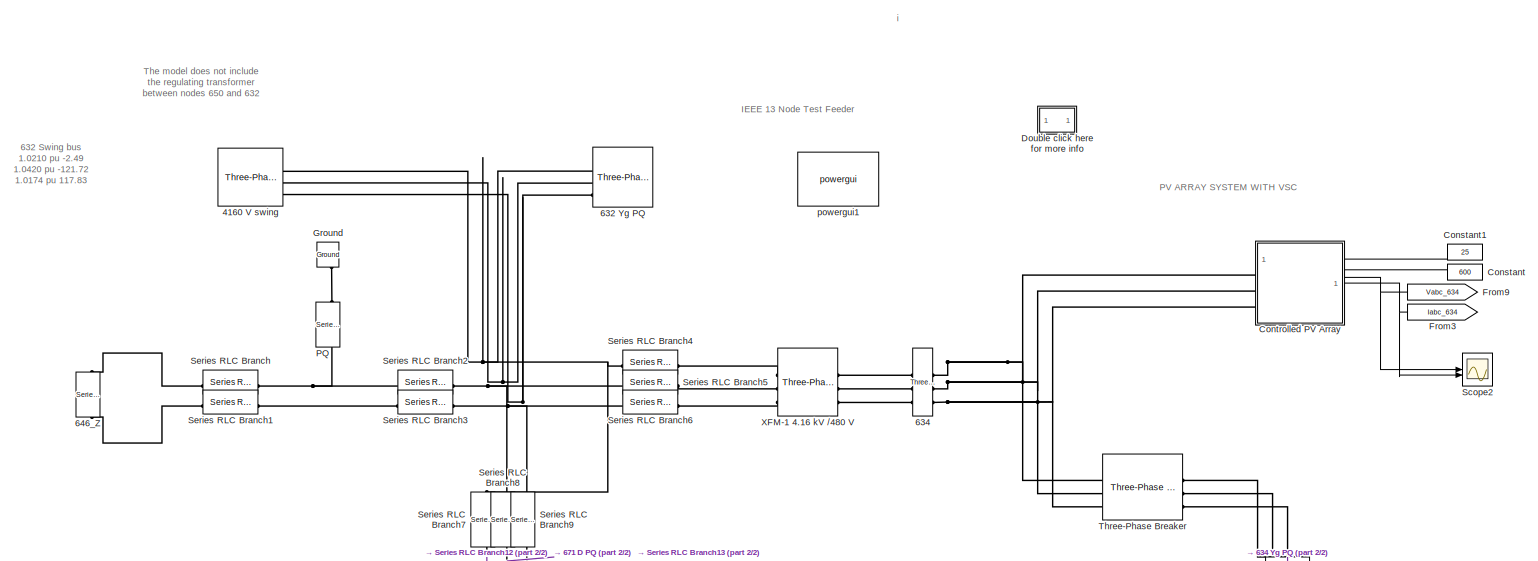
[diagram: root canvas - part 1/2, full width, top band]
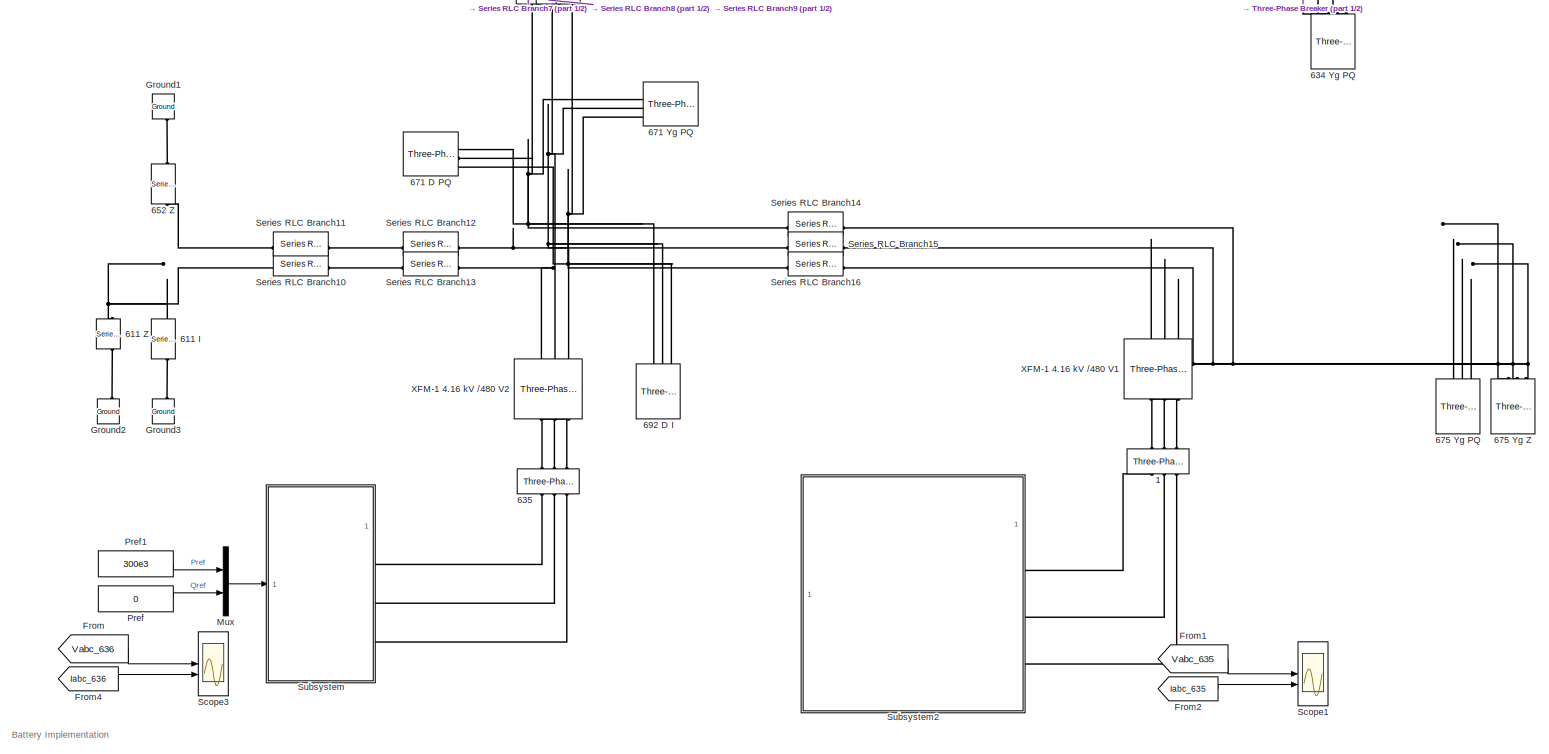
[diagram: root canvas - part 2/2, full width, bottom band]
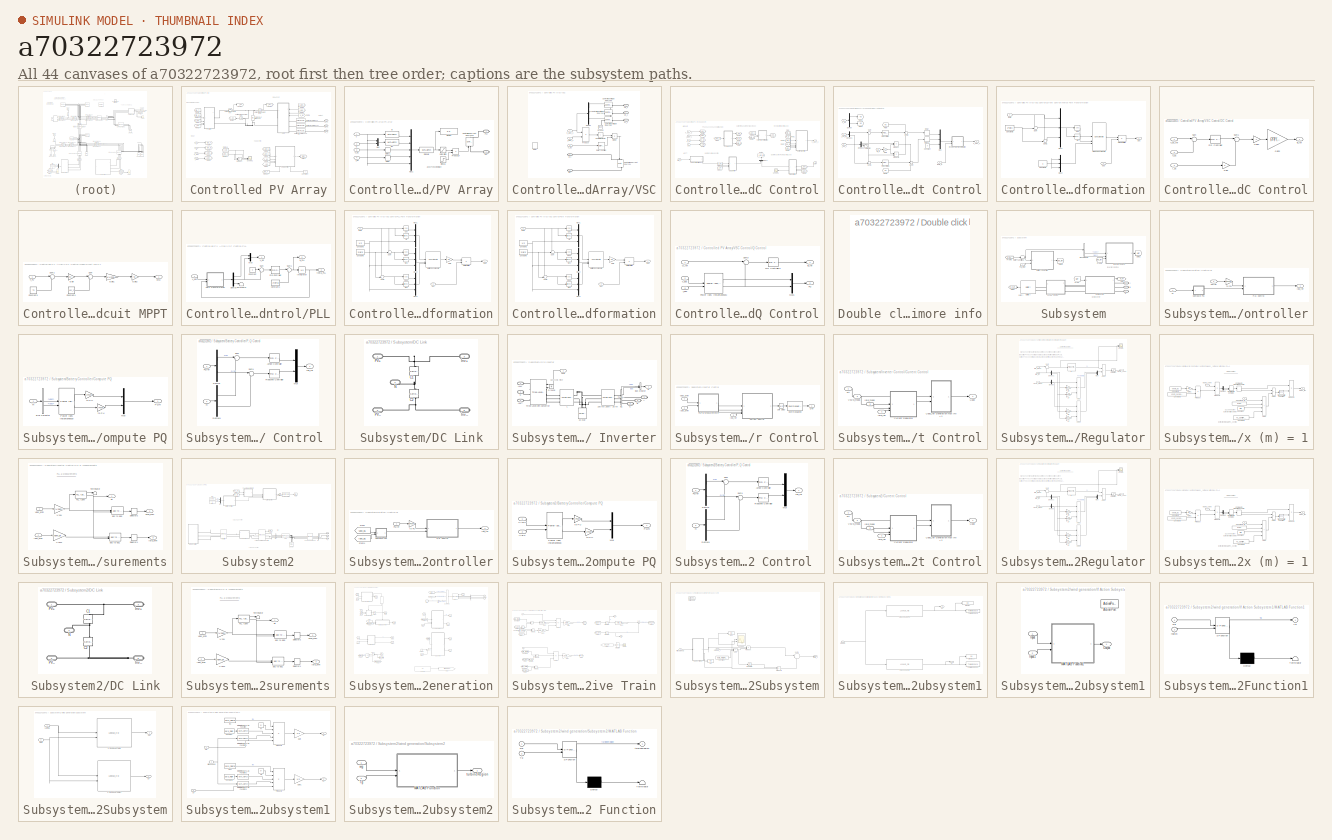
[diagram: thumbnail index - all 44 canvases of the model, root first then tree order]
MODEL slx_a70322723972
KIND model
CONFIG AbsTol = auto
CONFIG EnableMultiTasking = off
CONFIG FixedStep = auto
CONFIG MaxStep = auto
CONFIG MinStep = auto
CONFIG RelTol = 1e-3
CONFIG SampleTimeConstraint = Unconstrained
CONFIG SolverName = VariableStepAuto
CONFIG StartTime = 0.0
CONFIG StopTime = 0.23
BLOCK [Reference]  634 Yg PQ   REF=spsThreePhaseSeriesRLCLoadLib/Three-Phase
Series RLC Load
  AttributesFormatString = P= %<Pabc> W\nQl=%<QLabc> var\nQc=%<QCabc> var
  LibrarySourceBlock = sps_lib/Passives/Three-Phase\nSeries RLC Load
  NameLocation = right
  SourceBlock = spsThreePhaseSeriesRLCLoadLib/Three-Phase\nSeries RLC Load
  SourceType = Three-Phase Series RLC Load
BLOCK [Reference] 1  REF=spsThreePhaseVIMeasurementLib/Three-Phase
V-I Measurement
  LibrarySourceBlock = sps_lib/Sensors and Measurements/Three-Phase\nV-I Measurement
  NameLocation = right
  SourceBlock = spsThreePhaseVIMeasurementLib/Three-Phase\nV-I Measurement
  SourceType = Three-Phase VI Measurement
BLOCK [Reference] 4160 V swing  REF=spsThreePhaseSourceLib/Three-Phase Source
  LibrarySourceBlock = sps_lib/Sources/Three-Phase Source
  SourceBlock = spsThreePhaseSourceLib/Three-Phase Source
  SourceType = Three-Phase Source
BLOCK [Reference] 611 I  REF=spsSeriesRLCLoadLib/Series RLC Load
  AttributesFormatString = P=%<ActivePower> W\nQl=%<InductivePower> var\nQc=%<CapacitivePower> var
  LibrarySourceBlock = sps_lib/Passives/Series RLC Load
  NameLocation = right
  SourceBlock = spsSeriesRLCLoadLib/Series RLC Load
  SourceType = Series RLC Load
BLOCK [Reference] 611 Z  REF=spsSeriesRLCLoadLib/Series RLC Load
  AttributesFormatString = P=%<ActivePower> W\nQl=%<InductivePower> var\nQc=%<CapacitivePower> var
  LibrarySourceBlock = sps_lib/Passives/Series RLC Load
  NameLocation = left
  SourceBlock = spsSeriesRLCLoadLib/Series RLC Load
  SourceType = Series RLC Load
BLOCK [Reference] 632 Yg PQ  REF=spsThreePhaseSeriesRLCLoadLib/Three-Phase
Series RLC Load
  AttributesFormatString = P= %<Pabc> W\nQl=%<QLabc> var\nQc=%<QCabc> var
  LibrarySourceBlock = sps_lib/Passives/Three-Phase\nSeries RLC Load
  NameLocation = top
  SourceBlock = spsThreePhaseSeriesRLCLoadLib/Three-Phase\nSeries RLC Load
  SourceType = Three-Phase Series RLC Load
BLOCK [Reference] 634  REF=spsThreePhaseVIMeasurementLib/Three-Phase
V-I Measurement
  LibrarySourceBlock = sps_lib/Sensors and Measurements/Three-Phase\nV-I Measurement
  SourceBlock = spsThreePhaseVIMeasurementLib/Three-Phase\nV-I Measurement
  SourceType = Three-Phase VI Measurement
BLOCK [Reference] 635  REF=spsThreePhaseVIMeasurementLib/Three-Phase
V-I Measurement
  LibrarySourceBlock = sps_lib/Sensors and Measurements/Three-Phase\nV-I Measurement
  NameLocation = right
  SourceBlock = spsThreePhaseVIMeasurementLib/Three-Phase\nV-I Measurement
  SourceType = Three-Phase VI Measurement
BLOCK [Reference] 646_Z  REF=spsSeriesRLCLoadLib/Series RLC Load
  AttributesFormatString = P=%<ActivePower> W\nQl=%<InductivePower> var\nQc=%<CapacitivePower> var
  LibrarySourceBlock = sps_lib/Passives/Series RLC Load
  NameLocation = left
  SourceBlock = spsSeriesRLCLoadLib/Series RLC Load
  SourceType = Series RLC Load
BLOCK [Reference] 652  Z   REF=spsSeriesRLCLoadLib/Series RLC Load
  AttributesFormatString = P=%<ActivePower> W\nQl=%<InductivePower> var\nQc=%<CapacitivePower> var
  LibrarySourceBlock = sps_lib/Passives/Series RLC Load
  NameLocation = right
  SourceBlock = spsSeriesRLCLoadLib/Series RLC Load
  SourceType = Series RLC Load
BLOCK [Reference] 671 D PQ  REF=spsThreePhaseSeriesRLCLoadLib/Three-Phase
Series RLC Load
  AttributesFormatString = P= %<Pabcp> W\nQl=%<QLabcp> var\nQc=%<QCabcp> var
  LibrarySourceBlock = sps_lib/Passives/Three-Phase\nSeries RLC Load
  NameLocation = top
  SourceBlock = spsThreePhaseSeriesRLCLoadLib/Three-Phase\nSeries RLC Load
  SourceType = Three-Phase Series RLC Load
BLOCK [Reference] 671 Yg PQ  REF=spsThreePhaseSeriesRLCLoadLib/Three-Phase
Series RLC Load
  AttributesFormatString = P= %<Pabc> W\nQl=%<QLabc> var\nQc=%<QCabc> var
  LibrarySourceBlock = sps_lib/Passives/Three-Phase\nSeries RLC Load
  NameLocation = top
  SourceBlock = spsThreePhaseSeriesRLCLoadLib/Three-Phase\nSeries RLC Load
  SourceType = Three-Phase Series RLC Load
BLOCK [Reference] 675 Yg PQ  REF=spsThreePhaseSeriesRLCLoadLib/Three-Phase
Series RLC Load
  AttributesFormatString = P= %<Pabc> W\nQl=%<QLabc> var\nQc=%<QCabc> var
  LibrarySourceBlock = sps_lib/Passives/Three-Phase\nSeries RLC Load
  NameLocation = left
  SourceBlock = spsThreePhaseSeriesRLCLoadLib/Three-Phase\nSeries RLC Load
  SourceType = Three-Phase Series RLC Load
BLOCK [Reference] 675 Yg Z  REF=spsThreePhaseSeriesRLCLoadLib/Three-Phase
Series RLC Load
  AttributesFormatString = P= %<Pabc> W\nQl=%<QLabc> var\nQc=%<QCabc> var
  LibrarySourceBlock = sps_lib/Passives/Three-Phase\nSeries RLC Load
  NameLocation = right
  SourceBlock = spsThreePhaseSeriesRLCLoadLib/Three-Phase\nSeries RLC Load
  SourceType = Three-Phase Series RLC Load
BLOCK [Reference] 692 D I  REF=spsThreePhaseSeriesRLCLoadLib/Three-Phase
Series RLC Load
  AttributesFormatString = P= %<Pabcp> W\nQl=%<QLabcp> var\nQc=%<QCabcp> var
  LibrarySourceBlock = sps_lib/Passives/Three-Phase\nSeries RLC Load
  NameLocation = right
  SourceBlock = spsThreePhaseSeriesRLCLoadLib/Three-Phase\nSeries RLC Load
  SourceType = Three-Phase Series RLC Load
BLOCK [Constant] Constant
  Commented = on
  NameLocation = top
  Value = 600
BLOCK [Constant] Constant1
  Commented = on
  NameLocation = top
  Value = 25
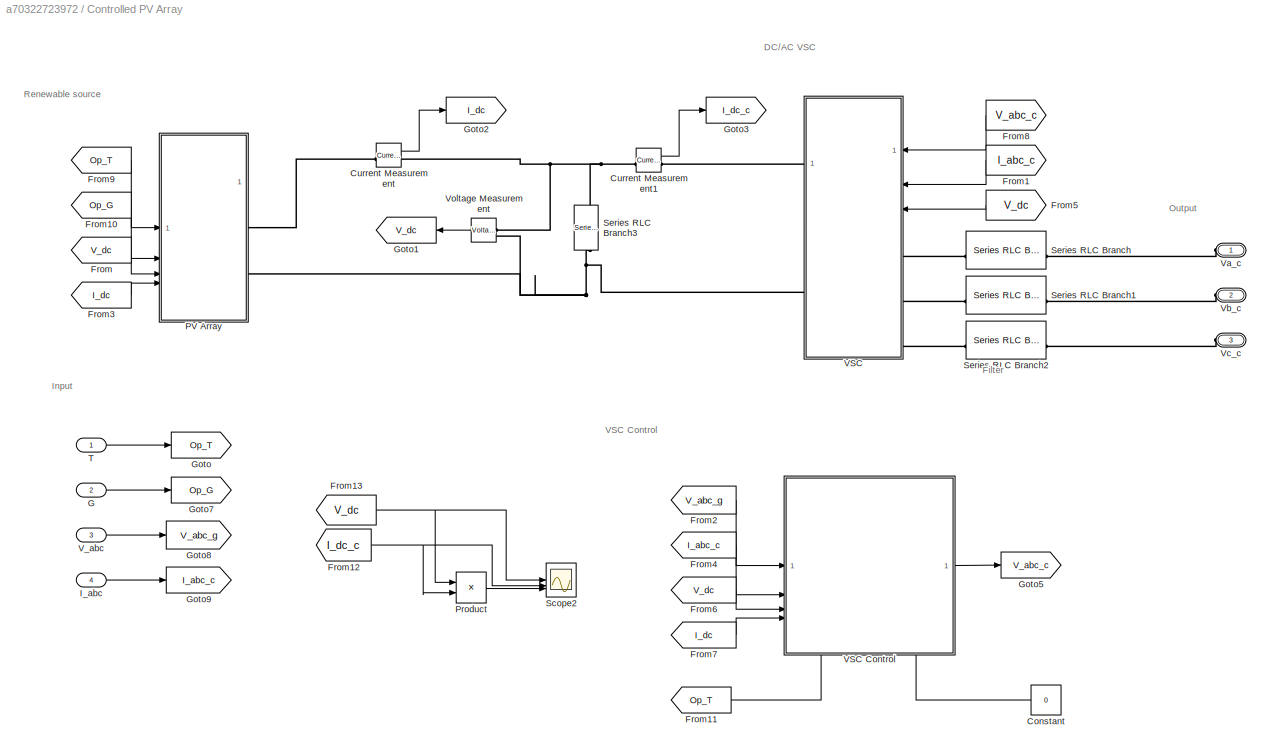
BLOCK [SubSystem] Controlled PV Array
  Commented = on
  PortSchema = {"entries":[{"content":{"sides":[{"content":{"connectorIds":["LConn1","LConn2","LConn3"]},"type":"ConnectorPlacement.EquallySpacedRectSide","uuid":"92a05cf9-a19b-475d-bffb-9406018f82f4"},{"content":{"connectorIds":["In1","In2","In3","In4"],"side":"RIGHT"},"type":"ConnectorPlacement.EquallySpacedRectSide","uuid":"83076eb6-0a86-49d7-8932-035501cdc6f6"},{"content":{"side":"TOP"},"type":"ConnectorPlac...<+260ch>
BLOCK [Constant] Controlled PV Array/Constant
  NameLocation = top
  Value = 0
BLOCK [Reference] Controlled PV Array/Current Measurement  REF=spsCurrentMeasurementLib/Current Measurement
  LibrarySourceBlock = sps_lib/Sensors and Measurements/Current Measurement
  SourceBlock = spsCurrentMeasurementLib/Current Measurement
  SourceType = Current Measurement
  UserDataPersistent = on
BLOCK [Reference] Controlled PV Array/Current Measurement1  REF=spsCurrentMeasurementLib/Current Measurement
  LibrarySourceBlock = sps_lib/Sensors and Measurements/Current Measurement
  SourceBlock = spsCurrentMeasurementLib/Current Measurement
  SourceType = Current Measurement
  UserDataPersistent = on
BLOCK [From] Controlled PV Array/From
  GotoTag = V_dc
  NameLocation = top
BLOCK [From] Controlled PV Array/From1
  GotoTag = I_abc_c
  NameLocation = top
BLOCK [From] Controlled PV Array/From10
  GotoTag = Op_G
BLOCK [From] Controlled PV Array/From11
  GotoTag = Op_T
BLOCK [From] Controlled PV Array/From12
  GotoTag = I_dc_c
BLOCK [From] Controlled PV Array/From13
  GotoTag = V_dc
BLOCK [From] Controlled PV Array/From2
  GotoTag = V_abc_g
BLOCK [From] Controlled PV Array/From3
  GotoTag = I_dc
BLOCK [From] Controlled PV Array/From4
  GotoTag = I_abc_c
BLOCK [From] Controlled PV Array/From5
  GotoTag = V_dc
  NameLocation = top
BLOCK [From] Controlled PV Array/From6
  GotoTag = V_dc
BLOCK [From] Controlled PV Array/From7
  GotoTag = I_dc
BLOCK [From] Controlled PV Array/From8
  GotoTag = V_abc_c
  NameLocation = top
BLOCK [From] Controlled PV Array/From9
  GotoTag = Op_T
BLOCK [Inport] Controlled PV Array/G
  Port = 2
BLOCK [Goto] Controlled PV Array/Goto
  GotoTag = Op_T
BLOCK [Goto] Controlled PV Array/Goto1
  GotoTag = V_dc
BLOCK [Goto] Controlled PV Array/Goto2
  GotoTag = I_dc
  NameLocation = top
BLOCK [Goto] Controlled PV Array/Goto3
  GotoTag = I_dc_c
  NameLocation = top
BLOCK [Goto] Controlled PV Array/Goto5
  GotoTag = V_abc_c
BLOCK [Goto] Controlled PV Array/Goto7
  GotoTag = Op_G
BLOCK [Goto] Controlled PV Array/Goto8
  GotoTag = V_abc_g
BLOCK [Goto] Controlled PV Array/Goto9
  GotoTag = I_abc_c
BLOCK [Inport] Controlled PV Array/I_abc
  Port = 4
BLOCK [SubSystem] Controlled PV Array/PV Array
BLOCK [Reference] Controlled PV Array/PV Array/Controlled Current Source19  REF=spsControlledCurrentSourceLib/Controlled Current Source
  LibrarySourceBlock = sps_lib/Sources/Controlled Current Source
  SourceBlock = spsControlledCurrentSourceLib/Controlled Current Source
  SourceType = Controlled Current Source
BLOCK [Delay] Controlled PV Array/PV Array/Delay
  DelayLength = 1
  InitialCondition = 1000
  InputPortMap = u0
BLOCK [Delay] Controlled PV Array/PV Array/Delay1
  DelayLength = 1
  InitialCondition = 1200
  InputPortMap = u0
BLOCK [Display] Controlled PV Array/PV Array/Display
  Decimation = 1
BLOCK [Inport] Controlled PV Array/PV Array/G
  Port = 2
BLOCK [MATLABFcn] Controlled PV Array/PV Array/I module
  MATLABFcn = Np*u(2)-Np*u(1)*(exp((u(3)/(Ns)+Rs*u(4)/Np)/((Ns_cell*k*(u(5)+273.15)/q)*a))-1)-Np*((u(3)/(Ns)+Rs*u(4)/Np)/Rp)
  OutputDimensions = 1
BLOCK [MATLABFcn] Controlled PV Array/PV Array/I0
  MATLABFcn = (Isc_n+KI*(u(1)-Tn))/(exp((Voc_n+KV*(u(1)-Tn))/((Ns_cell*k*(u(1)+273.15)/q)*a))-1);
  NameLocation = top
  OutputDimensions = 1
BLOCK [Inport] Controlled PV Array/PV Array/I_dc
  Port = 4
BLOCK [MATLABFcn] Controlled PV Array/PV Array/Ipv
  MATLABFcn = (Ipv_n+KI*(u(1)-Tn))*(u(2)/Gn);
  OutputDimensions = 1
BLOCK [Mux] Controlled PV Array/PV Array/Mux
  DisplayOption = bar
  Inputs = 2
BLOCK [Mux] Controlled PV Array/PV Array/Mux1
  DisplayOption = bar
  Inputs = 5
BLOCK [PMIOPort] Controlled PV Array/PV Array/PV+
  Side = Right
BLOCK [PMIOPort] Controlled PV Array/PV Array/PV-
  Port = 2
  Side = Right
BLOCK [Product] Controlled PV Array/PV Array/Product17
BLOCK [Saturate] Controlled PV Array/PV Array/Saturation
  LowerLimit = 0.1
  UpperLimit = 10e6
BLOCK [Step] Controlled PV Array/PV Array/Step16
  SampleTime = 0
  Time = 0.001
BLOCK [Inport] Controlled PV Array/PV Array/T
BLOCK [Inport] Controlled PV Array/PV Array/V_dc
  Port = 3
BLOCK [Product] Controlled PV Array/Product
BLOCK [Scope] Controlled PV Array/Scope2
  Floating = off
  NumInputPorts = 3
  ScopeSpecificationString = Simulink.scopes.TimeScopeBlockCfg('CurrentConfiguration', extmgr.ConfigurationSet(extmgr.Configuration('Core','General UI',true),extmgr.Configuration('Core','Source UI',true),extmgr.Configuration('Sources','WiredSimulink',true,'DataLoggingVariableName','ScopeData1'),extmgr.Configuration('Visuals','Time Domain',true,'SerializedDisplays',{struct('MinYLimReal','1161.24124','MaxYLimReal','1241.17653',...<+2865ch>
BLOCK [Reference] Controlled PV Array/Series RLC Branch  REF=spsSeriesRLCBranchLib/Series RLC Branch
  LibrarySourceBlock = sps_lib/Passives/Series RLC Branch
  SourceBlock = spsSeriesRLCBranchLib/Series RLC Branch
  SourceType = Series RLC Branch
BLOCK [Reference] Controlled PV Array/Series RLC Branch1  REF=spsSeriesRLCBranchLib/Series RLC Branch
  LibrarySourceBlock = sps_lib/Passives/Series RLC Branch
  SourceBlock = spsSeriesRLCBranchLib/Series RLC Branch
  SourceType = Series RLC Branch
BLOCK [Reference] Controlled PV Array/Series RLC Branch2  REF=spsSeriesRLCBranchLib/Series RLC Branch
  LibrarySourceBlock = sps_lib/Passives/Series RLC Branch
  SourceBlock = spsSeriesRLCBranchLib/Series RLC Branch
  SourceType = Series RLC Branch
BLOCK [Reference] Controlled PV Array/Series RLC Branch3  REF=spsSeriesRLCBranchLib/Series RLC Branch
  LibrarySourceBlock = sps_lib/Passives/Series RLC Branch
  NameLocation = left
  SourceBlock = spsSeriesRLCBranchLib/Series RLC Branch
  SourceType = Series RLC Branch
BLOCK [Inport] Controlled PV Array/T
BLOCK [SubSystem] Controlled PV Array/VSC
BLOCK [SubSystem] Controlled PV Array/VSC Control
  NameLocation = top
  PortSchema = {"entries":[{"content":{"sides":[{"content":{"connectorIds":["In1","In2","In3","In4"]},"type":"ConnectorPlacement.EquallySpacedRectSide","uuid":"1f0c866f-1355-4493-8a8b-fecd52da2e06"},{"content":{"connectorIds":["Out1"],"side":"RIGHT"},"type":"ConnectorPlacement.EquallySpacedRectSide","uuid":"e0482316-46fe-491c-835b-46d73fa6817a"},{"content":{"side":"TOP"},"type":"ConnectorPlacement.EquallySpacedR...<+395ch>
BLOCK [SubSystem] Controlled PV Array/VSC Control/Current Control
BLOCK [Constant] Controlled PV Array/VSC Control/Current Control/Constant
  Value = 0
BLOCK [Delay] Controlled PV Array/VSC Control/Current Control/Delay
  DelayLength = 1
  InitialCondition = 0.1
  InputPortMap = u0
BLOCK [Delay] Controlled PV Array/VSC Control/Current Control/Delay1
  DelayLength = 1
  InitialCondition = 0.1
  InputPortMap = u0
BLOCK [Demux] Controlled PV Array/VSC Control/Current Control/Demux
  Outputs = 2
BLOCK [Demux] Controlled PV Array/VSC Control/Current Control/Demux1
  Outputs = 2
BLOCK [Demux] Controlled PV Array/VSC Control/Current Control/Demux2
  Outputs = 3
BLOCK [From] Controlled PV Array/VSC Control/Current Control/From
  GotoTag = Vq
BLOCK [From] Controlled PV Array/VSC Control/Current Control/From1
  GotoTag = Vd
BLOCK [Gain] Controlled PV Array/VSC Control/Current Control/Gain
  Gain = Lc
BLOCK [Goto] Controlled PV Array/VSC Control/Current Control/Goto1
  GotoTag = Vd
BLOCK [Goto] Controlled PV Array/VSC Control/Current Control/Goto2
  GotoTag = Vq
BLOCK [Inport] Controlled PV Array/VSC Control/Current Control/I_qd_c
  Port = 5
BLOCK [Inport] Controlled PV Array/VSC Control/Current Control/I_qd_ref
  Port = 4
BLOCK [SubSystem] Controlled PV Array/VSC Control/Current Control/Inverse Park Transformation
BLOCK [Constant] Controlled PV Array/VSC Control/Current Control/Inverse Park Transformation/Constant2
BLOCK [Constant] Controlled PV Array/VSC Control/Current Control/Inverse Park Transformation/Constant3
  Value = 2*pi/3
BLOCK [Trigonometry] Controlled PV Array/VSC Control/Current Control/Inverse Park Transformation/Cos
  Operator = cos
BLOCK [Concatenate] Controlled PV Array/VSC Control/Current Control/Inverse Park Transformation/Matrix Concatenate
  ConcatenateDimension = 2
  Mode = Multidimensional array
  NumInputs = 3
BLOCK [Product] Controlled PV Array/VSC Control/Current Control/Inverse Park Transformation/Matrix Multiply
  Multiplication = Matrix(*)
BLOCK [Mux] Controlled PV Array/VSC Control/Current Control/Inverse Park Transformation/Mux1
  DisplayOption = bar
  Inputs = 3
BLOCK [Mux] Controlled PV Array/VSC Control/Current Control/Inverse Park Transformation/Mux2
  DisplayOption = bar
  Inputs = 3
BLOCK [Trigonometry] Controlled PV Array/VSC Control/Current Control/Inverse Park Transformation/Sin
BLOCK [Sum] Controlled PV Array/VSC Control/Current Control/Inverse Park Transformation/Sum
  Inputs = +-|
BLOCK [Sum] Controlled PV Array/VSC Control/Current Control/Inverse Park Transformation/Sum1
  Inputs = ++|
BLOCK [Outport] Controlled PV Array/VSC Control/Current Control/Inverse Park Transformation/abc
BLOCK [Inport] Controlled PV Array/VSC Control/Current Control/Inverse Park Transformation/qd0
BLOCK [Inport] Controlled PV Array/VSC Control/Current Control/Inverse Park Transformation/theta
  Port = 2
BLOCK [Mux] Controlled PV Array/VSC Control/Current Control/Mux
  DisplayOption = bar
  Inputs = 3
BLOCK [Reference] Controlled PV Array/VSC Control/Current Control/PID Controller  REF=slpidlib/PID Controller
  LibrarySourceBlock = simulink/Continuous/PID Controller
  SourceBlock = slpidlib/PID Controller
  SourceType = PID 1dof
BLOCK [Reference] Controlled PV Array/VSC Control/Current Control/PID Controller1  REF=slpidlib/PID Controller
  LibrarySourceBlock = simulink/Continuous/PID Controller
  SourceBlock = slpidlib/PID Controller
  SourceType = PID 1dof
BLOCK [Product] Controlled PV Array/VSC Control/Current Control/Product
BLOCK [Product] Controlled PV Array/VSC Control/Current Control/Product1
BLOCK [Sum] Controlled PV Array/VSC Control/Current Control/Sum
  Inputs = |+-
BLOCK [Sum] Controlled PV Array/VSC Control/Current Control/Sum1
  Inputs = -+|
BLOCK [Sum] Controlled PV Array/VSC Control/Current Control/Sum2
  Inputs = +++
BLOCK [Sum] Controlled PV Array/VSC Control/Current Control/Sum4
  Inputs = -++
BLOCK [Terminator] Controlled PV Array/VSC Control/Current Control/Terminator
BLOCK [Outport] Controlled PV Array/VSC Control/Current Control/V_abc_c
BLOCK [Inport] Controlled PV Array/VSC Control/Current Control/V_qd
  Port = 3
BLOCK [Inport] Controlled PV Array/VSC Control/Current Control/theta_g
BLOCK [Inport] Controlled PV Array/VSC Control/Current Control/w_g
  Port = 2
BLOCK [SubSystem] Controlled PV Array/VSC Control/DC Control
BLOCK [Gain] Controlled PV Array/VSC Control/DC Control/Gain
BLOCK [Gain] Controlled PV Array/VSC Control/DC Control/Gain1
  Gain = -1
BLOCK [Gain] Controlled PV Array/VSC Control/DC Control/Gain2
  Gain = (2/3)*(Vdc/Vp)
BLOCK [Inport] Controlled PV Array/VSC Control/DC Control/I_dc
  Port = 3
BLOCK [Reference] Controlled PV Array/VSC Control/DC Control/PID Controller  REF=slpidlib/PID Controller
  LibrarySourceBlock = simulink/Continuous/PID Controller
  SourceBlock = slpidlib/PID Controller
  SourceType = PID 1dof
BLOCK [Sum] Controlled PV Array/VSC Control/DC Control/Sum
  Inputs = |+-
BLOCK [Sum] Controlled PV Array/VSC Control/DC Control/Sum1
  Inputs = |+-
BLOCK [Inport] Controlled PV Array/VSC Control/DC Control/V_dc
  Port = 2
BLOCK [Inport] Controlled PV Array/VSC Control/DC Control/V_dc_ref
BLOCK [Outport] Controlled PV Array/VSC Control/DC Control/iq_ref
BLOCK [From] Controlled PV Array/VSC Control/From
  GotoTag = theta_g
BLOCK [From] Controlled PV Array/VSC Control/From1
  GotoTag = w_g
BLOCK [From] Controlled PV Array/VSC Control/From10
  GotoTag = V_dc
BLOCK [From] Controlled PV Array/VSC Control/From11
  GotoTag = I_dc
BLOCK [From] Controlled PV Array/VSC Control/From2
  GotoTag = V_abc_g
BLOCK [From] Controlled PV Array/VSC Control/From3
  GotoTag = V_qd_g
BLOCK [From] Controlled PV Array/VSC Control/From4
  GotoTag = V_abc_g
  NameLocation = top
BLOCK [From] Controlled PV Array/VSC Control/From5
  GotoTag = theta_g
BLOCK [From] Controlled PV Array/VSC Control/From6
  GotoTag = I_qd_c
BLOCK [From] Controlled PV Array/VSC Control/From7
  GotoTag = I_qd_ref
BLOCK [From] Controlled PV Array/VSC Control/From8
  GotoTag = I_abc_c
BLOCK [From] Controlled PV Array/VSC Control/From9
  GotoTag = I_abc_c
  NameLocation = top
BLOCK [Goto] Controlled PV Array/VSC Control/Goto
  GotoTag = theta_g
BLOCK [Goto] Controlled PV Array/VSC Control/Goto1
  GotoTag = w_g
BLOCK [Goto] Controlled PV Array/VSC Control/Goto2
  GotoTag = V_qd_g
BLOCK [Goto] Controlled PV Array/VSC Control/Goto3
  GotoTag = I_qd_c
BLOCK [Goto] Controlled PV Array/VSC Control/Goto4
  GotoTag = I_abc_c
  NameLocation = top
BLOCK [Goto] Controlled PV Array/VSC Control/Goto5
  GotoTag = V_abc_g
  NameLocation = top
BLOCK [Goto] Controlled PV Array/VSC Control/Goto7
  GotoTag = V_dc
BLOCK [Goto] Controlled PV Array/VSC Control/Goto8
  GotoTag = I_dc
BLOCK [Goto] Controlled PV Array/VSC Control/Goto9
  GotoTag = I_qd_ref
  NameLocation = right
BLOCK [Inport] Controlled PV Array/VSC Control/I_abc_c
  Port = 2
BLOCK [Inport] Controlled PV Array/VSC Control/I_dc
  Port = 4
BLOCK [Mux] Controlled PV Array/VSC Control/Mux2
  DisplayOption = bar
  Inputs = 2
  NameLocation = right
BLOCK [Inport] Controlled PV Array/VSC Control/Op_T
  Port = 5
BLOCK [SubSystem] Controlled PV Array/VSC Control/Open-circuit MPPT
BLOCK [Constant] Controlled PV Array/VSC Control/Open-circuit MPPT/Constant3
  Value = Tn
BLOCK [Constant] Controlled PV Array/VSC Control/Open-circuit MPPT/Constant4
  Value = Voc_n
BLOCK [Gain] Controlled PV Array/VSC Control/Open-circuit MPPT/Gain
  Gain = KV
BLOCK [Gain] Controlled PV Array/VSC Control/Open-circuit MPPT/Gain1
  Gain = KVmp
BLOCK [Gain] Controlled PV Array/VSC Control/Open-circuit MPPT/Gain2
  Gain = Ns
BLOCK [Sum] Controlled PV Array/VSC Control/Open-circuit MPPT/Sum
  Inputs = |++
BLOCK [Sum] Controlled PV Array/VSC Control/Open-circuit MPPT/Sum1
  Inputs = |+-
BLOCK [Inport] Controlled PV Array/VSC Control/Open-circuit MPPT/T_PV
BLOCK [Outport] Controlled PV Array/VSC Control/Open-circuit MPPT/Vmp
BLOCK [SubSystem] Controlled PV Array/VSC Control/PLL
BLOCK [Constant] Controlled PV Array/VSC Control/PLL/Constant
  Value = 0
BLOCK [Constant] Controlled PV Array/VSC Control/PLL/Constant1
  Value = 2*pi*fg
BLOCK [Demux] Controlled PV Array/VSC Control/PLL/Demux
  Outputs = 3
BLOCK [Integrator] Controlled PV Array/VSC Control/PLL/Integrator
BLOCK [Mux] Controlled PV Array/VSC Control/PLL/Mux
  DisplayOption = bar
  Inputs = 2
BLOCK [Reference] Controlled PV Array/VSC Control/PLL/PID Controller  REF=slpidlib/PID Controller
  LibrarySourceBlock = simulink/Continuous/PID Controller
  SourceBlock = slpidlib/PID Controller
  SourceType = PID 1dof
BLOCK [SubSystem] Controlled PV Array/VSC Control/PLL/Park Transformation
BLOCK [Constant] Controlled PV Array/VSC Control/PLL/Park Transformation/Constant3
  Value = 1/2
BLOCK [Constant] Controlled PV Array/VSC Control/PLL/Park Transformation/Constant5
  Value = 2*pi/3
BLOCK [Trigonometry] Controlled PV Array/VSC Control/PLL/Park Transformation/Cos
  Operator = cos
BLOCK [Trigonometry] Controlled PV Array/VSC Control/PLL/Park Transformation/Cos1
  Operator = cos
BLOCK [Trigonometry] Controlled PV Array/VSC Control/PLL/Park Transformation/Cos2
  Operator = cos
BLOCK [Gain] Controlled PV Array/VSC Control/PLL/Park Transformation/Gain
  Gain = 2/3
BLOCK [Concatenate] Controlled PV Array/VSC Control/PLL/Park Transformation/Matrix Concatenate
  ConcatenateDimension = 2
  Mode = Multidimensional array
  NumInputs = 3
BLOCK [Product] Controlled PV Array/VSC Control/PLL/Park Transformation/Matrix Multiply
  Multiplication = Matrix(*)
BLOCK [Mux] Controlled PV Array/VSC Control/PLL/Park Transformation/Mux1
  DisplayOption = bar
  Inputs = 3
BLOCK [Mux] Controlled PV Array/VSC Control/PLL/Park Transformation/Mux2
  DisplayOption = bar
  Inputs = 3
BLOCK [Mux] Controlled PV Array/VSC Control/PLL/Park Transformation/Mux3
  DisplayOption = bar
  Inputs = 3
BLOCK [Trigonometry] Controlled PV Array/VSC Control/PLL/Park Transformation/Sin
BLOCK [Trigonometry] Controlled PV Array/VSC Control/PLL/Park Transformation/Sin1
BLOCK [Trigonometry] Controlled PV Array/VSC Control/PLL/Park Transformation/Sin2
BLOCK [Sum] Controlled PV Array/VSC Control/PLL/Park Transformation/Sum
  Inputs = +-|
BLOCK [Sum] Controlled PV Array/VSC Control/PLL/Park Transformation/Sum1
  Inputs = ++|
BLOCK [Inport] Controlled PV Array/VSC Control/PLL/Park Transformation/abc
BLOCK [Outport] Controlled PV Array/VSC Control/PLL/Park Transformation/qd0
BLOCK [Inport] Controlled PV Array/VSC Control/PLL/Park Transformation/theta
  Port = 2
BLOCK [Sum] Controlled PV Array/VSC Control/PLL/Sum
  Inputs = |+-
BLOCK [Sum] Controlled PV Array/VSC Control/PLL/Sum1
  Inputs = |++
BLOCK [Terminator] Controlled PV Array/VSC Control/PLL/Terminator
BLOCK [Inport] Controlled PV Array/VSC Control/PLL/V_abc
BLOCK [Outport] Controlled PV Array/VSC Control/PLL/V_qd
BLOCK [Outport] Controlled PV Array/VSC Control/PLL/theta_PLL
  Port = 3
BLOCK [Outport] Controlled PV Array/VSC Control/PLL/w_PLL
  Port = 2
BLOCK [SubSystem] Controlled PV Array/VSC Control/Park Transformation
BLOCK [Constant] Controlled PV Array/VSC Control/Park Transformation/Constant3
  Value = 1/2
BLOCK [Constant] Controlled PV Array/VSC Control/Park Transformation/Constant5
  Value = 2*pi/3
BLOCK [Trigonometry] Controlled PV Array/VSC Control/Park Transformation/Cos
  Operator = cos
BLOCK [Trigonometry] Controlled PV Array/VSC Control/Park Transformation/Cos1
  Operator = cos
BLOCK [Trigonometry] Controlled PV Array/VSC Control/Park Transformation/Cos2
  Operator = cos
BLOCK [Gain] Controlled PV Array/VSC Control/Park Transformation/Gain
  Gain = 2/3
BLOCK [Concatenate] Controlled PV Array/VSC Control/Park Transformation/Matrix Concatenate
  ConcatenateDimension = 2
  Mode = Multidimensional array
  NumInputs = 3
BLOCK [Product] Controlled PV Array/VSC Control/Park Transformation/Matrix Multiply
  Multiplication = Matrix(*)
BLOCK [Mux] Controlled PV Array/VSC Control/Park Transformation/Mux1
  DisplayOption = bar
  Inputs = 3
BLOCK [Mux] Controlled PV Array/VSC Control/Park Transformation/Mux2
  DisplayOption = bar
  Inputs = 3
BLOCK [Mux] Controlled PV Array/VSC Control/Park Transformation/Mux3
  DisplayOption = bar
  Inputs = 3
BLOCK [Trigonometry] Controlled PV Array/VSC Control/Park Transformation/Sin
BLOCK [Trigonometry] Controlled PV Array/VSC Control/Park Transformation/Sin1
BLOCK [Trigonometry] Controlled PV Array/VSC Control/Park Transformation/Sin2
BLOCK [Sum] Controlled PV Array/VSC Control/Park Transformation/Sum
  Inputs = +-|
BLOCK [Sum] Controlled PV Array/VSC Control/Park Transformation/Sum1
  Inputs = ++|
BLOCK [Inport] Controlled PV Array/VSC Control/Park Transformation/abc
BLOCK [Outport] Controlled PV Array/VSC Control/Park Transformation/qd0
BLOCK [Inport] Controlled PV Array/VSC Control/Park Transformation/theta
  Port = 2
BLOCK [SubSystem] Controlled PV Array/VSC Control/Q Control
BLOCK [Mux] Controlled PV Array/VSC Control/Q Control/Mux1
  DisplayOption = bar
  Inputs = 2
BLOCK [Reference] Controlled PV Array/VSC Control/Q Control/PID Controller3  REF=slpidlib/PID Controller
  LibrarySourceBlock = simulink/Continuous/PID Controller
  SourceBlock = slpidlib/PID Controller
  SourceType = PID 1dof
BLOCK [Outport] Controlled PV Array/VSC Control/Q Control/PQ
  Port = 2
BLOCK [Reference] Controlled PV Array/VSC Control/Q Control/Power (3ph, Instantaneous)  REF=spsPower3phInstantaneousLib/Power
(3ph, Instantaneous)
  LibrarySourceBlock = sps_lib/Sensors and Measurements/Power\n(3ph, Instantaneous)
  SourceBlock = spsPower3phInstantaneousLib/Power\n(3ph, Instantaneous)
  SourceType = Power (3ph, Instantaneous)
BLOCK [Inport] Controlled PV Array/VSC Control/Q Control/Q_ref
BLOCK [Sum] Controlled PV Array/VSC Control/Q Control/Sum3
  Inputs = |+-
BLOCK [Inport] Controlled PV Array/VSC Control/Q Control/i_abc
  Port = 3
BLOCK [Outport] Controlled PV Array/VSC Control/Q Control/id_ref
BLOCK [Inport] Controlled PV Array/VSC Control/Q Control/v_abc
  Port = 2
BLOCK [Inport] Controlled PV Array/VSC Control/Q_ref
  Port = 6
BLOCK [Scope] Controlled PV Array/VSC Control/Scope1
  Floating = off
  NameLocation = top
  NumInputPorts = 1
  ScopeSpecificationString = Simulink.scopes.TimeScopeBlockCfg('CurrentConfiguration', extmgr.ConfigurationSet(extmgr.Configuration('Core','General UI',true),extmgr.Configuration('Core','Source UI',true),extmgr.Configuration('Sources','WiredSimulink',true,'DataLoggingVariableName','ScopeData1'),extmgr.Configuration('Visuals','Time Domain',true,'SerializedDisplays',{struct('MinYLimReal','-881207.20956','MaxYLimReal','7930863.5...<+1481ch>
BLOCK [Outport] Controlled PV Array/VSC Control/V_abc_c
BLOCK [Inport] Controlled PV Array/VSC Control/V_abc_g
BLOCK [Inport] Controlled PV Array/VSC Control/V_dc
  Port = 3
BLOCK [Reference] Controlled PV Array/VSC/Controlled Current Source1  REF=spsControlledCurrentSourceLib/Controlled Current Source
  LibrarySourceBlock = sps_lib/Sources/Controlled Current Source
  NameLocation = top
  SourceBlock = spsControlledCurrentSourceLib/Controlled Current Source
  SourceType = Controlled Current Source
BLOCK [Reference] Controlled PV Array/VSC/Controlled Voltage Source3  REF=spsControlledVoltageSourceLib/Controlled Voltage Source
  LibrarySourceBlock = sps_lib/Sources/Controlled Voltage Source
  NameLocation = left
  SourceBlock = spsControlledVoltageSourceLib/Controlled Voltage Source
  SourceType = Controlled Voltage Source
BLOCK [Reference] Controlled PV Array/VSC/Controlled Voltage Source4  REF=spsControlledVoltageSourceLib/Controlled Voltage Source
  LibrarySourceBlock = sps_lib/Sources/Controlled Voltage Source
  NameLocation = left
  SourceBlock = spsControlledVoltageSourceLib/Controlled Voltage Source
  SourceType = Controlled Voltage Source
BLOCK [Reference] Controlled PV Array/VSC/Controlled Voltage Source5  REF=spsControlledVoltageSourceLib/Controlled Voltage Source
  LibrarySourceBlock = sps_lib/Sources/Controlled Voltage Source
  NameLocation = left
  SourceBlock = spsControlledVoltageSourceLib/Controlled Voltage Source
  SourceType = Controlled Voltage Source
BLOCK [Delay] Controlled PV Array/VSC/Delay
  Commented = on
  DelayLength = 1
  InitialCondition = 1200
  InputPortMap = u0
BLOCK [Demux] Controlled PV Array/VSC/Demux
  NameLocation = top
  Outputs = 3
BLOCK [Product] Controlled PV Array/VSC/Divide
  Inputs = */
  RndMeth = Zero
  SaturateOnIntegerOverflow = on
BLOCK [Reference] Controlled PV Array/VSC/Ground  REF=spsGroundLib/Ground
  LibrarySourceBlock = sps_lib/Utilities/Ground
  NameLocation = right
  SourceBlock = spsGroundLib/Ground
  SourceType = Ground
BLOCK [Inport] Controlled PV Array/VSC/I_abc_c
  Port = 2
BLOCK [Product] Controlled PV Array/VSC/Product
BLOCK [RateTransition] Controlled PV Array/VSC/Rate Transition
BLOCK [Sum] Controlled PV Array/VSC/Sum of Elements
  IconShape = rectangular
  Inputs = +
BLOCK [Inport] Controlled PV Array/VSC/V_abc_c
BLOCK [Inport] Controlled PV Array/VSC/V_dc
  Port = 3
BLOCK [PMIOPort] Controlled PV Array/VSC/Va_c
  Side = Left
BLOCK [PMIOPort] Controlled PV Array/VSC/Vb_c
  Port = 2
  Side = Left
BLOCK [PMIOPort] Controlled PV Array/VSC/Vc_c
  Port = 3
  Side = Left
BLOCK [PMIOPort] Controlled PV Array/VSC/dc+
  Port = 4
  Side = Right
BLOCK [PMIOPort] Controlled PV Array/VSC/dc-
  Port = 5
  Side = Right
BLOCK [Inport] Controlled PV Array/V_abc
  Port = 3
BLOCK [PMIOPort] Controlled PV Array/Va_c
  Side = Left
BLOCK [PMIOPort] Controlled PV Array/Vb_c
  Port = 2
  Side = Left
BLOCK [PMIOPort] Controlled PV Array/Vc_c
  Port = 3
  Side = Left
BLOCK [Reference] Controlled PV Array/Voltage Measurement  REF=spsVoltageMeasurementLib/Voltage Measurement
  LibrarySourceBlock = sps_lib/Sensors and Measurements/Voltage Measurement
  SourceBlock = spsVoltageMeasurementLib/Voltage Measurement
  SourceType = Voltage Measurement
  UserDataPersistent = on
BLOCK [SubSystem] Double click here for more info
  OpenFcn = showdemo(bdroot(gcb))
BLOCK [From] From
  GotoTag = Vabc_636
  TagVisibility = global
BLOCK [From] From1
  GotoTag = Vabc_635
  TagVisibility = global
BLOCK [From] From2
  GotoTag = Iabc_635
  TagVisibility = global
BLOCK [From] From3
  Commented = on
  GotoTag = Iabc_634
  NameLocation = top
  TagVisibility = global
BLOCK [From] From4
  GotoTag = Iabc_636
  TagVisibility = global
BLOCK [From] From9
  Commented = on
  GotoTag = Vabc_634
  NameLocation = top
  TagVisibility = global
BLOCK [Reference] Ground  REF=spsGroundLib/Ground
  LibrarySourceBlock = sps_lib/Utilities/Ground
  NameLocation = left
  SourceBlock = spsGroundLib/Ground
  SourceType = Ground
BLOCK [Reference] Ground1  REF=spsGroundLib/Ground
  LibrarySourceBlock = sps_lib/Utilities/Ground
  NameLocation = left
  SourceBlock = spsGroundLib/Ground
  SourceType = Ground
BLOCK [Reference] Ground2  REF=spsGroundLib/Ground
  LibrarySourceBlock = sps_lib/Utilities/Ground
  NameLocation = right
  SourceBlock = spsGroundLib/Ground
  SourceType = Ground
BLOCK [Reference] Ground3  REF=spsGroundLib/Ground
  LibrarySourceBlock = sps_lib/Utilities/Ground
  NameLocation = right
  SourceBlock = spsGroundLib/Ground
  SourceType = Ground
BLOCK [Mux] Mux
  DisplayOption = bar
  Inputs = 2
BLOCK [Reference] PQ  REF=spsSeriesRLCLoadLib/Series RLC Load
  AttributesFormatString = P=%<ActivePower> W\nQl=%<InductivePower> var\nQc=%<CapacitivePower> var
  LibrarySourceBlock = sps_lib/Passives/Series RLC Load
  NameLocation = right
  SourceBlock = spsSeriesRLCLoadLib/Series RLC Load
  SourceType = Series RLC Load
BLOCK [Constant] Pref
  NameLocation = top
  Value = 0
BLOCK [Constant] Pref1
  NameLocation = top
  Value = 300e3
BLOCK [Scope] Scope1
  Floating = off
  NumInputPorts = 2
  ScopeSpecificationString = Simulink.scopes.TimeScopeBlockCfg('CurrentConfiguration', extmgr.ConfigurationSet(extmgr.Configuration('Core','General UI',true),extmgr.Configuration('Core','Source UI',true),extmgr.Configuration('Sources','WiredSimulink',true,'DataLoggingVariableName','ScopeData1'),extmgr.Configuration('Visuals','Time Domain',true,'SerializedDisplays',{struct('MinYLimReal','-503.08076','MaxYLimReal','503.26141','...<+2466ch>
BLOCK [Scope] Scope2
  Commented = on
  Floating = off
  NumInputPorts = 2
  ScopeSpecificationString = Simulink.scopes.TimeScopeBlockCfg('CurrentConfiguration', extmgr.ConfigurationSet(extmgr.Configuration('Core','General UI',true),extmgr.Configuration('Core','Source UI',true),extmgr.Configuration('Sources','WiredSimulink',true,'DataLoggingVariableName','ScopeData1'),extmgr.Configuration('Visuals','Time Domain',true,'SerializedDisplays',{struct('MinYLimReal','-869.13926','MaxYLimReal','1133.91319',...<+2351ch>
BLOCK [Scope] Scope3
  Floating = off
  NumInputPorts = 2
  ScopeSpecificationString = Simulink.scopes.TimeScopeBlockCfg('CurrentConfiguration', extmgr.ConfigurationSet(extmgr.Configuration('Core','General UI',true),extmgr.Configuration('Core','Source UI',true),extmgr.Configuration('Sources','WiredSimulink',true,'DataLoggingVariableName','ScopeData2'),extmgr.Configuration('Visuals','Time Domain',true,'SerializedDisplays',{struct('MinYLimReal','-522.94345','MaxYLimReal','522.81289','...<+2399ch>
BLOCK [Reference] Series RLC Branch  REF=spsSeriesRLCBranchLib/Series RLC Branch
  LibrarySourceBlock = sps_lib/Passives/Series RLC Branch
  SourceBlock = spsSeriesRLCBranchLib/Series RLC Branch
  SourceType = Series RLC Branch
BLOCK [Reference] Series RLC Branch1  REF=spsSeriesRLCBranchLib/Series RLC Branch
  LibrarySourceBlock = sps_lib/Passives/Series RLC Branch
  SourceBlock = spsSeriesRLCBranchLib/Series RLC Branch
  SourceType = Series RLC Branch
BLOCK [Reference] Series RLC Branch10  REF=spsSeriesRLCBranchLib/Series RLC Branch
  LibrarySourceBlock = sps_lib/Passives/Series RLC Branch
  SourceBlock = spsSeriesRLCBranchLib/Series RLC Branch
  SourceType = Series RLC Branch
BLOCK [Reference] Series RLC Branch11  REF=spsSeriesRLCBranchLib/Series RLC Branch
  LibrarySourceBlock = sps_lib/Passives/Series RLC Branch
  NameLocation = top
  SourceBlock = spsSeriesRLCBranchLib/Series RLC Branch
  SourceType = Series RLC Branch
BLOCK [Reference] Series RLC Branch12  REF=spsSeriesRLCBranchLib/Series RLC Branch
  LibrarySourceBlock = sps_lib/Passives/Series RLC Branch
  SourceBlock = spsSeriesRLCBranchLib/Series RLC Branch
  SourceType = Series RLC Branch
BLOCK [Reference] Series RLC Branch13  REF=spsSeriesRLCBranchLib/Series RLC Branch
  LibrarySourceBlock = sps_lib/Passives/Series RLC Branch
  SourceBlock = spsSeriesRLCBranchLib/Series RLC Branch
  SourceType = Series RLC Branch
BLOCK [Reference] Series RLC Branch14  REF=spsSeriesRLCBranchLib/Series RLC Branch
  LibrarySourceBlock = sps_lib/Passives/Series RLC Branch
  SourceBlock = spsSeriesRLCBranchLib/Series RLC Branch
  SourceType = Series RLC Branch
BLOCK [Reference] Series RLC Branch15  REF=spsSeriesRLCBranchLib/Series RLC Branch
  LibrarySourceBlock = sps_lib/Passives/Series RLC Branch
  SourceBlock = spsSeriesRLCBranchLib/Series RLC Branch
  SourceType = Series RLC Branch
BLOCK [Reference] Series RLC Branch16  REF=spsSeriesRLCBranchLib/Series RLC Branch
  LibrarySourceBlock = sps_lib/Passives/Series RLC Branch
  SourceBlock = spsSeriesRLCBranchLib/Series RLC Branch
  SourceType = Series RLC Branch
BLOCK [Reference] Series RLC Branch2  REF=spsSeriesRLCBranchLib/Series RLC Branch
  LibrarySourceBlock = sps_lib/Passives/Series RLC Branch
  SourceBlock = spsSeriesRLCBranchLib/Series RLC Branch
  SourceType = Series RLC Branch
BLOCK [Reference] Series RLC Branch3  REF=spsSeriesRLCBranchLib/Series RLC Branch
  LibrarySourceBlock = sps_lib/Passives/Series RLC Branch
  SourceBlock = spsSeriesRLCBranchLib/Series RLC Branch
  SourceType = Series RLC Branch
BLOCK [Reference] Series RLC Branch4  REF=spsSeriesRLCBranchLib/Series RLC Branch
  LibrarySourceBlock = sps_lib/Passives/Series RLC Branch
  SourceBlock = spsSeriesRLCBranchLib/Series RLC Branch
  SourceType = Series RLC Branch
BLOCK [Reference] Series RLC Branch5  REF=spsSeriesRLCBranchLib/Series RLC Branch
  LibrarySourceBlock = sps_lib/Passives/Series RLC Branch
  SourceBlock = spsSeriesRLCBranchLib/Series RLC Branch
  SourceType = Series RLC Branch
BLOCK [Reference] Series RLC Branch6  REF=spsSeriesRLCBranchLib/Series RLC Branch
  LibrarySourceBlock = sps_lib/Passives/Series RLC Branch
  SourceBlock = spsSeriesRLCBranchLib/Series RLC Branch
  SourceType = Series RLC Branch
BLOCK [Reference] Series RLC Branch7  REF=spsSeriesRLCBranchLib/Series RLC Branch
  LibrarySourceBlock = sps_lib/Passives/Series RLC Branch
  NameLocation = left
  SourceBlock = spsSeriesRLCBranchLib/Series RLC Branch
  SourceType = Series RLC Branch
BLOCK [Reference] Series RLC Branch8  REF=spsSeriesRLCBranchLib/Series RLC Branch
  LibrarySourceBlock = sps_lib/Passives/Series RLC Branch
  NameLocation = left
  SourceBlock = spsSeriesRLCBranchLib/Series RLC Branch
  SourceType = Series RLC Branch
BLOCK [Reference] Series RLC Branch9  REF=spsSeriesRLCBranchLib/Series RLC Branch
  LibrarySourceBlock = sps_lib/Passives/Series RLC Branch
  NameLocation = left
  SourceBlock = spsSeriesRLCBranchLib/Series RLC Branch
  SourceType = Series RLC Branch
BLOCK [SubSystem] Subsystem
BLOCK [PMIOPort] Subsystem/A
  Side = Right
BLOCK [PMIOPort] Subsystem/B
  Port = 2
  Side = Right
BLOCK [Reference] Subsystem/Battery  REF=spsBatteryLib/Battery
  LibrarySourceBlock = electricdrivelib/Extra Sources/Battery
  SourceBlock = spsBatteryLib/Battery
  SourceType = Battery
BLOCK [SubSystem] Subsystem/Battery Controller
  SystemSampleTime = Ts
BLOCK [SubSystem] Subsystem/Battery Controller/Compute PQ
BLOCK [BusSelector] Subsystem/Battery Controller/Compute PQ/Bus Selector
  OutputSignals = Vabc,Iabc
BLOCK [Mux] Subsystem/Battery Controller/Compute PQ/Mux
  DisplayOption = bar
  Inputs = 2
BLOCK [Outport] Subsystem/Battery Controller/Compute PQ/PQm
  VectorParamsAs1DForOutWhenUnconnected = off
BLOCK [Reference] Subsystem/Battery Controller/Compute PQ/Power (3ph, Instantaneous)  REF=spsPower3phInstantaneousLib/Power
(3ph, Instantaneous)
  LibrarySourceBlock = sps_lib/Sensors and Measurements/Power\n(3ph, Instantaneous)
  SourceBlock = spsPower3phInstantaneousLib/Power\n(3ph, Instantaneous)
  SourceType = Power (3ph, Instantaneous)
BLOCK [Inport] Subsystem/Battery Controller/Compute PQ/m
BLOCK [Gain] Subsystem/Battery Controller/Compute PQ/to PU
  Gain = 1/Pnom
BLOCK [Gain] Subsystem/Battery Controller/Compute PQ/to PU 
  Gain = 1/Pnom
BLOCK [Outport] Subsystem/Battery Controller/Idq_ref
  VectorParamsAs1DForOutWhenUnconnected = off
BLOCK [SubSystem] Subsystem/Battery Controller/P,Q Control 
  TreatAsAtomicUnit = on
BLOCK [Reference] Subsystem/Battery Controller/P,Q Control /Active Controller  REF=slpidlib/PID Controller
  SourceBlock = slpidlib/PID Controller
  SourceType = PID 1dof
BLOCK [Demux] Subsystem/Battery Controller/P,Q Control /Demux
  Outputs = 2
BLOCK [Demux] Subsystem/Battery Controller/P,Q Control /Demux1
  Outputs = 2
BLOCK [Outport] Subsystem/Battery Controller/P,Q Control /Idq_ref
  VectorParamsAs1DForOutWhenUnconnected = off
BLOCK [Mux] Subsystem/Battery Controller/P,Q Control /Mux
  DisplayOption = bar
  Inputs = 2
BLOCK [Inport] Subsystem/Battery Controller/P,Q Control /PQref
BLOCK [Reference] Subsystem/Battery Controller/P,Q Control /Reactive Controller  REF=slpidlib/PID Controller
  SourceBlock = slpidlib/PID Controller
  SourceType = PID 1dof
BLOCK [Sum] Subsystem/Battery Controller/P,Q Control /Sum
  Inputs = |+-
BLOCK [Sum] Subsystem/Battery Controller/P,Q Control /Sum1
  Inputs = |-+
BLOCK [Inport] Subsystem/Battery Controller/P,Q Control /m
  Port = 2
BLOCK [Inport] Subsystem/Battery Controller/PQref
  Port = 2
BLOCK [Inport] Subsystem/Battery Controller/m
BLOCK [Gain] Subsystem/Battery Controller/to PU
  Gain = 1/Pnom
BLOCK [BusSelector] Subsystem/Bus Selector
  OutputSignals = Vabc,Iabc
BLOCK [PMIOPort] Subsystem/C
  Port = 3
  Side = Right
BLOCK [SubSystem] Subsystem/DC Link
BLOCK [Reference] Subsystem/DC Link/C1  REF=spsSeriesRLCBranchLib/Series RLC Branch
  AttributesFormatString = \n
  LibrarySourceBlock = sps_lib/Passives/Series RLC Branch
  NameLocation = left
  SourceBlock = spsSeriesRLCBranchLib/Series RLC Branch
  SourceType = Series RLC Branch
BLOCK [Reference] Subsystem/DC Link/C2  REF=spsSeriesRLCBranchLib/Series RLC Branch
  AttributesFormatString = \n
  LibrarySourceBlock = sps_lib/Passives/Series RLC Branch
  NameLocation = left
  SourceBlock = spsSeriesRLCBranchLib/Series RLC Branch
  SourceType = Series RLC Branch
BLOCK [PMIOPort] Subsystem/DC Link/Inv+
  Port = 3
  Side = Right
BLOCK [PMIOPort] Subsystem/DC Link/Inv--
  Port = 5
  Side = Right
BLOCK [PMIOPort] Subsystem/DC Link/N
  Port = 4
  Side = Right
BLOCK [PMIOPort] Subsystem/DC Link/PV+
  Side = Left
BLOCK [PMIOPort] Subsystem/DC Link/PV--
  Port = 2
  Side = Left
BLOCK [From] Subsystem/From
  GotoTag = Uref
BLOCK [From] Subsystem/From3
  GotoTag = Idq_ref
BLOCK [From] Subsystem/From5
  GotoTag = m_inv
BLOCK [Goto] Subsystem/Goto
  GotoTag = m_inv
BLOCK [Goto] Subsystem/Goto1
  GotoTag = m_batt
BLOCK [Goto] Subsystem/Goto2
  GotoTag = Uref
BLOCK [Goto] Subsystem/Goto3
  GotoTag = Idq_ref
BLOCK [SubSystem] Subsystem/Grid Inverter
BLOCK [Reference] Subsystem/Grid Inverter/10 kvar  REF=spsThreePhaseSeriesRLCLoadLib/Three-Phase
Series RLC Load
  AttributesFormatString = \n
  LibrarySourceBlock = sps_lib/Passives/Three-Phase\nSeries RLC Load
  NameLocation = right
  SourceBlock = spsThreePhaseSeriesRLCLoadLib/Three-Phase\nSeries RLC Load
  SourceType = Three-Phase Series RLC Load
BLOCK [Reference] Subsystem/Grid Inverter/100 kVA 260V // 25 kV  REF=spsThreePhaseTransformerTwoWindingsLib/Three-Phase
Transformer
(Two Windings)
  AttributesFormatString = \n
  LibrarySourceBlock = sps_lib/Power Grid Elements/Three-Phase\nTransformer\n(Two Windings)
  SourceBlock = spsThreePhaseTransformerTwoWindingsLib/Three-Phase\nTransformer\n(Two Windings)
  SourceType = Three-Phase Transformer (Two Windings)
BLOCK [PMIOPort] Subsystem/Grid Inverter/A
  Port = 4
  Side = Right
BLOCK [PMIOPort] Subsystem/Grid Inverter/B
  Port = 5
  Side = Right
BLOCK [Reference] Subsystem/Grid Inverter/B1  REF=spsThreePhaseVIMeasurementLib/Three-Phase
V-I Measurement
  LibrarySourceBlock = sps_lib/Sensors and Measurements/Three-Phase\nV-I Measurement
  SourceBlock = spsThreePhaseVIMeasurementLib/Three-Phase\nV-I Measurement
  SourceType = Three-Phase VI Measurement
BLOCK [BusCreator] Subsystem/Grid Inverter/Bus Creator
  DisplayOption = bar
  InheritFromInputs = on
  Inputs = 2
BLOCK [PMIOPort] Subsystem/Grid Inverter/C
  Port = 6
  Side = Right
BLOCK [Ground] Subsystem/Grid Inverter/Ground
BLOCK [PMIOPort] Subsystem/Grid Inverter/Inv+
  Side = Left
BLOCK [PMIOPort] Subsystem/Grid Inverter/Inv--
  Port = 3
  Side = Left
BLOCK [Reference] Subsystem/Grid Inverter/L  REF=spsThreePhaseSeriesRLCBranchLib/Three-Phase
Series RLC Branch
  AttributesFormatString = \n
  LibrarySourceBlock = sps_lib/Passives/Three-Phase\nSeries RLC Branch
  SourceBlock = spsThreePhaseSeriesRLCBranchLib/Three-Phase\nSeries RLC Branch
  SourceType = Three-Phase Series RLC Branch
BLOCK [PMIOPort] Subsystem/Grid Inverter/N
  Port = 2
  Side = Left
BLOCK [Reference] Subsystem/Grid Inverter/Three-Level NPC Converter  REF=spsThreeLevelNPCConverterLib/Three-Level
NPC Converter
  LibrarySourceBlock = sps_lib/Power Electronics/Three-Level\nNPC Converter
  SourceBlock = spsThreeLevelNPCConverterLib/Three-Level\nNPC Converter
  SourceType = Three-Level NPC Converter
BLOCK [Inport] Subsystem/Grid Inverter/Uref
  NameLocation = top
BLOCK [Outport] Subsystem/Grid Inverter/m
  NameLocation = top
  VectorParamsAs1DForOutWhenUnconnected = off
BLOCK [SubSystem] Subsystem/Inverter Control
BLOCK [SubSystem] Subsystem/Inverter Control/Current Control
  TreatAsAtomicUnit = on
BLOCK [SubSystem] Subsystem/Inverter Control/Current Control/Current Regulator
BLOCK [Sum] Subsystem/Inverter Control/Current Control/Current Regulator/Add1
  IconShape = rectangular
  Inputs = ++-
BLOCK [Sum] Subsystem/Inverter Control/Current Control/Current Regulator/Add2
  IconShape = rectangular
BLOCK [Sum] Subsystem/Inverter Control/Current Control/Current Regulator/Add3
  IconShape = rectangular
  Inputs = +++
BLOCK [Demux] Subsystem/Inverter Control/Current Control/Current Regulator/Demux
  Outputs = 2
BLOCK [Demux] Subsystem/Inverter Control/Current Control/Current Regulator/Demux1
  Outputs = 2
BLOCK [Inport] Subsystem/Inverter Control/Current Control/Current Regulator/IdIq_meas
  Port = 2
  PortDimensions = 2
BLOCK [Inport] Subsystem/Inverter Control/Current Control/Current Regulator/IdIq_ref
  Port = 3
  PortDimensions = 2
BLOCK [Gain] Subsystem/Inverter Control/Current Control/Current Regulator/Lff
  Gain = Ltot_pu
  OutDataTypeStr = Inherit: Same as input
  ParamDataTypeStr = Inherit: Same as input
  SaturateOnIntegerOverflow = on
BLOCK [Gain] Subsystem/Inverter Control/Current Control/Current Regulator/Lff  
  Gain = Ltot_pu
  OutDataTypeStr = Inherit: Same as input
  ParamDataTypeStr = Inherit: Same as input
  SaturateOnIntegerOverflow = on
BLOCK [Mux] Subsystem/Inverter Control/Current Control/Current Regulator/Mux
  DisplayOption = bar
  Inputs = 2
BLOCK [Reference] Subsystem/Inverter Control/Current Control/Current Regulator/PI  REF=slpidlib/PID Controller
  SourceBlock = slpidlib/PID Controller
  SourceType = PID 1dof
BLOCK [Gain] Subsystem/Inverter Control/Current Control/Current Regulator/Rff
  Gain = Rtot_pu
  NameLocation = top
  OutDataTypeStr = Inherit: Same as input
  ParamDataTypeStr = Inherit: Same as input
  SaturateOnIntegerOverflow = on
BLOCK [Gain] Subsystem/Inverter Control/Current Control/Current Regulator/Rff 
  Gain = Rtot_pu
  NameLocation = top
  OutDataTypeStr = Inherit: Same as input
  ParamDataTypeStr = Inherit: Same as input
  SaturateOnIntegerOverflow = on
BLOCK [Saturate] Subsystem/Inverter Control/Current Control/Current Regulator/Saturation
  LowerLimit = -1.5
  UpperLimit = 1.5
BLOCK [Scope] Subsystem/Inverter Control/Current Control/Current Regulator/Scope
  Floating = off
  NumInputPorts = 2
  ScopeSpecificationString = Simulink.scopes.TimeScopeBlockCfg('CurrentConfiguration', extmgr.ConfigurationSet(extmgr.Configuration('Core','General UI',true),extmgr.Configuration('Core','Source UI',true),extmgr.Configuration('Sources','WiredSimulink',true,'DataLoggingVariableName','ScopeData1'),extmgr.Configuration('Visuals','Time Domain',true,'SerializedDisplays',{struct('MinYLimReal','-3.26171','MaxYLimReal','2.08514','YLab...<+2035ch>
BLOCK [Sum] Subsystem/Inverter Control/Current Control/Current Regulator/Sum
  Inputs = |-+
BLOCK [Outport] Subsystem/Inverter Control/Current Control/Current Regulator/VdVq_conv
  VectorParamsAs1DForOutWhenUnconnected = off
BLOCK [Inport] Subsystem/Inverter Control/Current Control/Current Regulator/VdVq_meas
  PortDimensions = 2
BLOCK [Inport] Subsystem/Inverter Control/Current Control/IdIq_meas
  Port = 3
  PortDimensions = 2
BLOCK [Inport] Subsystem/Inverter Control/Current Control/IdIq_ref
  Port = 4
  PortDimensions = 2
BLOCK [Outport] Subsystem/Inverter Control/Current Control/Uabc
  VectorParamsAs1DForOutWhenUnconnected = off
BLOCK [SubSystem] Subsystem/Inverter Control/Current Control/Uabc_ref Generation max (m) = 1
BLOCK [Sum] Subsystem/Inverter Control/Current Control/Uabc_ref Generation max (m) = 1/Add1
  IconShape = rectangular
  Inputs = ++++
BLOCK [Sum] Subsystem/Inverter Control/Current Control/Uabc_ref Generation max (m) = 1/Add2
  IconShape = rectangular
BLOCK [ComplexToMagnitudeAngle] Subsystem/Inverter Control/Current Control/Uabc_ref Generation max (m) = 1/Complex to Magnitude-Angle
BLOCK [Constant] Subsystem/Inverter Control/Current Control/Uabc_ref Generation max (m) = 1/Constant
  Value = -pi/6
BLOCK [Constant] Subsystem/Inverter Control/Current Control/Uabc_ref Generation max (m) = 1/Constant1
  Value = Vnom_dc
BLOCK [Constant] Subsystem/Inverter Control/Current Control/Uabc_ref Generation max (m) = 1/Constant2
  Value = [ 0  -2*pi/3  2*pi/3  ]
BLOCK [Constant] Subsystem/Inverter Control/Current Control/Uabc_ref Generation max (m) = 1/Constant3
  Value = Vnom_sec*sqrt(2)/sqrt(3)
BLOCK [Constant] Subsystem/Inverter Control/Current Control/Uabc_ref Generation max (m) = 1/Constant4
  Value = Ts_Control*Fnom*(2*pi)
BLOCK [Demux] Subsystem/Inverter Control/Current Control/Uabc_ref Generation max (m) = 1/Demux1
  Outputs = 2
BLOCK [Gain] Subsystem/Inverter Control/Current Control/Uabc_ref Generation max (m) = 1/Gain1
  Gain = 1/2
BLOCK [Product] Subsystem/Inverter Control/Current Control/Uabc_ref Generation max (m) = 1/Product
  Inputs = */
  RndMeth = Zero
BLOCK [Product] Subsystem/Inverter Control/Current Control/Uabc_ref Generation max (m) = 1/Product1
  Inputs = */
  RndMeth = Zero
BLOCK [Product] Subsystem/Inverter Control/Current Control/Uabc_ref Generation max (m) = 1/Product2
  Inputs = **
  RndMeth = Zero
BLOCK [RealImagToComplex] Subsystem/Inverter Control/Current Control/Uabc_ref Generation max (m) = 1/Real-Imag to Complex
BLOCK [Trigonometry] Subsystem/Inverter Control/Current Control/Uabc_ref Generation max (m) = 1/Trigonometric Function
BLOCK [Outport] Subsystem/Inverter Control/Current Control/Uabc_ref Generation max (m) = 1/Uabc_ref
  VectorParamsAs1DForOutWhenUnconnected = off
BLOCK [Inport] Subsystem/Inverter Control/Current Control/Uabc_ref Generation max (m) = 1/VdVq_conv
  Port = 2
BLOCK [Inport] Subsystem/Inverter Control/Current Control/Uabc_ref Generation max (m) = 1/wt
BLOCK [Inport] Subsystem/Inverter Control/Current Control/VdVq_meas
  Port = 2
  PortDimensions = 2
BLOCK [Inport] Subsystem/Inverter Control/Current Control/wt
BLOCK [Inport] Subsystem/Inverter Control/Iabc_prim
  Port = 2
  PortDimensions = 3
BLOCK [Inport] Subsystem/Inverter Control/Idq_ref
  Port = 3
BLOCK [Reference] Subsystem/Inverter Control/Overmodulation  REF=spsOvermodulationLib/Overmodulation
  LibrarySourceBlock = sps_lib/Power Electronics/Power Electronics Control/Overmodulation
  SourceBlock = spsOvermodulationLib/Overmodulation
  SourceType = Overmodulation
BLOCK [SubSystem] Subsystem/Inverter Control/PLL & Measurements
BLOCK [Inport] Subsystem/Inverter Control/PLL & Measurements/Iabc_prim
  Port = 2
BLOCK [Outport] Subsystem/Inverter Control/PLL & Measurements/IdIq_prim
  Port = 3
  VectorParamsAs1DForOutWhenUnconnected = off
BLOCK [Reference] Subsystem/Inverter Control/PLL & Measurements/PLL (3ph)  REF=spsPLL3phLib/PLL
(3ph)
  LibrarySourceBlock = sps_lib/Control/PLL\n(3ph)
  SourceBlock = spsPLL3phLib/PLL\n(3ph)
  SourceType = PLL (3ph)
BLOCK [Selector] Subsystem/Inverter Control/PLL & Measurements/Selector1
  IndexOptions = Index vector (dialog)
  Indices = [1 2]
  InputPortWidth = 3
  OutputSizes = 1
BLOCK [Selector] Subsystem/Inverter Control/PLL & Measurements/Selector2
  IndexOptions = Index vector (dialog)
  Indices = [1 2]
  InputPortWidth = 3
  OutputSizes = 1
BLOCK [Terminator] Subsystem/Inverter Control/PLL & Measurements/Terminator
BLOCK [Gain] Subsystem/Inverter Control/PLL & Measurements/V->pu
  Gain = 1/(Vnom_prim*sqrt(2)/sqrt(3))
  OutDataTypeStr = Inherit: Same as input
  ParamDataTypeStr = Inherit: Same as input
  SaturateOnIntegerOverflow = on
BLOCK [Gain] Subsystem/Inverter Control/PLL & Measurements/V->pu1
  Gain = Vnom_prim*sqrt(3)/Pnom/sqrt(2)
  OutDataTypeStr = Inherit: Same as input
  ParamDataTypeStr = Inherit: Same as input
  SaturateOnIntegerOverflow = on
BLOCK [Inport] Subsystem/Inverter Control/PLL & Measurements/Vabc_prim
BLOCK [Outport] Subsystem/Inverter Control/PLL & Measurements/VdVq_prim
  Port = 2
  VectorParamsAs1DForOutWhenUnconnected = off
BLOCK [Reference] Subsystem/Inverter Control/PLL & Measurements/abc to dq0  REF=spsabctodq0Lib/abc to dq0
  LibrarySourceBlock = sps_lib/Control/abc to dq0
  SourceBlock = spsabctodq0Lib/abc to dq0
  SourceType = abc to dq0 Transformation
BLOCK [Reference] Subsystem/Inverter Control/PLL & Measurements/abc to dq1  REF=spsabctodq0Lib/abc to dq0
  LibrarySourceBlock = sps_lib/Control/abc to dq0
  SourceBlock = spsabctodq0Lib/abc to dq0
  SourceType = abc to dq0 Transformation
BLOCK [Outport] Subsystem/Inverter Control/PLL & Measurements/wt
  VectorParamsAs1DForOutWhenUnconnected = off
BLOCK [UnitDelay] Subsystem/Inverter Control/Unit Delay
  HasFrameUpgradeWarning = on
  SampleTime = Ts_Control
BLOCK [Outport] Subsystem/Inverter Control/Uref
  NameLocation = top
  VectorParamsAs1DForOutWhenUnconnected = off
BLOCK [Inport] Subsystem/Inverter Control/Vabc_prim
  PortDimensions = 3
BLOCK [Inport] Subsystem/PQ_REF
BLOCK [RateTransition] Subsystem/Rate Transition2
  OutPortSampleTime = 5e-5
BLOCK [SubSystem] Subsystem2
BLOCK [Reference] Subsystem2/10 kvar  REF=spsThreePhaseSeriesRLCLoadLib/Three-Phase
Series RLC Load
  AttributesFormatString = \n
  LibrarySourceBlock = sps_lib/Passives/Three-Phase\nSeries RLC Load
  NameLocation = right
  SourceBlock = spsThreePhaseSeriesRLCLoadLib/Three-Phase\nSeries RLC Load
  SourceType = Three-Phase Series RLC Load
BLOCK [Reference] Subsystem2/100 kVA 260V // 25 kV  REF=spsThreePhaseTransformerTwoWindingsLib/Three-Phase
Transformer
(Two Windings)
  AttributesFormatString = \n
  LibrarySourceBlock = sps_lib/Power Grid Elements/Three-Phase\nTransformer\n(Two Windings)
  SourceBlock = spsThreePhaseTransformerTwoWindingsLib/Three-Phase\nTransformer\n(Two Windings)
  SourceType = Three-Phase Transformer (Two Windings)
BLOCK [Reference] Subsystem2/2 mH   REF=spsThreePhaseSeriesRLCBranchLib/Three-Phase
Series RLC Branch
  AttributesFormatString = \n
  LibrarySourceBlock = sps_lib/Passives/Three-Phase\nSeries RLC Branch
  SourceBlock = spsThreePhaseSeriesRLCBranchLib/Three-Phase\nSeries RLC Branch
  SourceType = Three-Phase Series RLC Branch
BLOCK [PMIOPort] Subsystem2/A
  Side = Right
BLOCK [PMIOPort] Subsystem2/B
  Port = 2
  Side = Right
BLOCK [Reference] Subsystem2/B1  REF=spsThreePhaseVIMeasurementLib/Three-Phase
V-I Measurement
  LibrarySourceBlock = sps_lib/Sensors and Measurements/Three-Phase\nV-I Measurement
  SourceBlock = spsThreePhaseVIMeasurementLib/Three-Phase\nV-I Measurement
  SourceType = Three-Phase VI Measurement
BLOCK [SubSystem] Subsystem2/Battery Controller
  SystemSampleTime = Ts
BLOCK [SubSystem] Subsystem2/Battery Controller/Compute PQ
BLOCK [Inport] Subsystem2/Battery Controller/Compute PQ/IABC
  Port = 2
BLOCK [Mux] Subsystem2/Battery Controller/Compute PQ/Mux
  DisplayOption = bar
  Inputs = 2
BLOCK [Outport] Subsystem2/Battery Controller/Compute PQ/PQm
  VectorParamsAs1DForOutWhenUnconnected = off
BLOCK [Reference] Subsystem2/Battery Controller/Compute PQ/Power (3ph, Instantaneous)  REF=spsPower3phInstantaneousLib/Power
(3ph, Instantaneous)
  LibrarySourceBlock = sps_lib/Sensors and Measurements/Power\n(3ph, Instantaneous)
  SourceBlock = spsPower3phInstantaneousLib/Power\n(3ph, Instantaneous)
  SourceType = Power (3ph, Instantaneous)
BLOCK [Inport] Subsystem2/Battery Controller/Compute PQ/VABC
BLOCK [Gain] Subsystem2/Battery Controller/Compute PQ/to PU
  Gain = 1/Pnom
BLOCK [Gain] Subsystem2/Battery Controller/Compute PQ/to PU 
  Gain = 1/Pnom
BLOCK [From] Subsystem2/Battery Controller/From
  GotoTag = Vabc_B1
  TagVisibility = global
BLOCK [From] Subsystem2/Battery Controller/From1
  GotoTag = Iabc_B1
  TagVisibility = global
BLOCK [Outport] Subsystem2/Battery Controller/Idq_ref
  VectorParamsAs1DForOutWhenUnconnected = off
BLOCK [SubSystem] Subsystem2/Battery Controller/P,Q Control 
  TreatAsAtomicUnit = on
BLOCK [Reference] Subsystem2/Battery Controller/P,Q Control /Active Controller  REF=slpidlib/PID Controller
  SourceBlock = slpidlib/PID Controller
  SourceType = PID 1dof
BLOCK [Demux] Subsystem2/Battery Controller/P,Q Control /Demux
  Outputs = 2
BLOCK [Demux] Subsystem2/Battery Controller/P,Q Control /Demux1
  Outputs = 2
BLOCK [Outport] Subsystem2/Battery Controller/P,Q Control /Idq_ref
  VectorParamsAs1DForOutWhenUnconnected = off
BLOCK [Mux] Subsystem2/Battery Controller/P,Q Control /Mux
  DisplayOption = bar
  Inputs = 2
BLOCK [Inport] Subsystem2/Battery Controller/P,Q Control /PQref
BLOCK [Reference] Subsystem2/Battery Controller/P,Q Control /Reactive Controller  REF=slpidlib/PID Controller
  SourceBlock = slpidlib/PID Controller
  SourceType = PID 1dof
BLOCK [Sum] Subsystem2/Battery Controller/P,Q Control /Sum
  Inputs = |+-
BLOCK [Sum] Subsystem2/Battery Controller/P,Q Control /Sum1
  Inputs = |-+
BLOCK [Inport] Subsystem2/Battery Controller/P,Q Control /m
  Port = 2
BLOCK [Inport] Subsystem2/Battery Controller/PQref
BLOCK [Gain] Subsystem2/Battery Controller/to PU
  Gain = 1/Pnom
BLOCK [PMIOPort] Subsystem2/C_
  Port = 3
  Side = Right
BLOCK [SubSystem] Subsystem2/Current Control
  TreatAsAtomicUnit = on
BLOCK [SubSystem] Subsystem2/Current Control/Current Regulator
BLOCK [Sum] Subsystem2/Current Control/Current Regulator/Add1
  IconShape = rectangular
  Inputs = ++-
BLOCK [Sum] Subsystem2/Current Control/Current Regulator/Add2
  IconShape = rectangular
BLOCK [Sum] Subsystem2/Current Control/Current Regulator/Add3
  IconShape = rectangular
  Inputs = +++
BLOCK [Demux] Subsystem2/Current Control/Current Regulator/Demux
  Outputs = 2
BLOCK [Demux] Subsystem2/Current Control/Current Regulator/Demux1
  Outputs = 2
BLOCK [Inport] Subsystem2/Current Control/Current Regulator/IdIq_meas
  Port = 2
  PortDimensions = 2
BLOCK [Inport] Subsystem2/Current Control/Current Regulator/IdIq_ref
  Port = 3
  PortDimensions = 2
BLOCK [Gain] Subsystem2/Current Control/Current Regulator/Lff
  Gain = Ltot_pu
  OutDataTypeStr = Inherit: Same as input
  ParamDataTypeStr = Inherit: Same as input
  SaturateOnIntegerOverflow = on
BLOCK [Gain] Subsystem2/Current Control/Current Regulator/Lff  
  Gain = Ltot_pu
  OutDataTypeStr = Inherit: Same as input
  ParamDataTypeStr = Inherit: Same as input
  SaturateOnIntegerOverflow = on
BLOCK [Mux] Subsystem2/Current Control/Current Regulator/Mux
  DisplayOption = bar
  Inputs = 2
BLOCK [Reference] Subsystem2/Current Control/Current Regulator/PI  REF=slpidlib/PID Controller
  SourceBlock = slpidlib/PID Controller
  SourceType = PID 1dof
BLOCK [Gain] Subsystem2/Current Control/Current Regulator/Rff
  Gain = Rtot_pu
  NameLocation = top
  OutDataTypeStr = Inherit: Same as input
  ParamDataTypeStr = Inherit: Same as input
  SaturateOnIntegerOverflow = on
BLOCK [Gain] Subsystem2/Current Control/Current Regulator/Rff 
  Gain = Rtot_pu
  NameLocation = top
  OutDataTypeStr = Inherit: Same as input
  ParamDataTypeStr = Inherit: Same as input
  SaturateOnIntegerOverflow = on
BLOCK [Saturate] Subsystem2/Current Control/Current Regulator/Saturation
  LowerLimit = -1.5
  UpperLimit = 1.5
BLOCK [Scope] Subsystem2/Current Control/Current Regulator/Scope
  Floating = off
  NumInputPorts = 2
  ScopeSpecificationString = Simulink.scopes.TimeScopeBlockCfg('CurrentConfiguration', extmgr.ConfigurationSet(extmgr.Configuration('Core','General UI',true),extmgr.Configuration('Core','Source UI',true),extmgr.Configuration('Sources','WiredSimulink',true,'DataLoggingVariableName','ScopeData1'),extmgr.Configuration('Visuals','Time Domain',true,'SerializedDisplays',{struct('MinYLimReal','-3.26171','MaxYLimReal','2.08514','YLab...<+2035ch>
BLOCK [Sum] Subsystem2/Current Control/Current Regulator/Sum
  Inputs = |-+
BLOCK [Outport] Subsystem2/Current Control/Current Regulator/VdVq_conv
  VectorParamsAs1DForOutWhenUnconnected = off
BLOCK [Inport] Subsystem2/Current Control/Current Regulator/VdVq_meas
  PortDimensions = 2
BLOCK [Inport] Subsystem2/Current Control/IdIq_meas
  Port = 3
  PortDimensions = 2
BLOCK [Inport] Subsystem2/Current Control/IdIq_ref
  Port = 4
  PortDimensions = 2
BLOCK [Outport] Subsystem2/Current Control/Uabc
  VectorParamsAs1DForOutWhenUnconnected = off
BLOCK [SubSystem] Subsystem2/Current Control/Uabc_ref Generation max (m) = 1
BLOCK [Sum] Subsystem2/Current Control/Uabc_ref Generation max (m) = 1/Add1
  IconShape = rectangular
  Inputs = ++++
BLOCK [Sum] Subsystem2/Current Control/Uabc_ref Generation max (m) = 1/Add2
  IconShape = rectangular
BLOCK [ComplexToMagnitudeAngle] Subsystem2/Current Control/Uabc_ref Generation max (m) = 1/Complex to Magnitude-Angle
BLOCK [Constant] Subsystem2/Current Control/Uabc_ref Generation max (m) = 1/Constant
  Value = -pi/6
BLOCK [Constant] Subsystem2/Current Control/Uabc_ref Generation max (m) = 1/Constant1
  Value = Vnom_dc
BLOCK [Constant] Subsystem2/Current Control/Uabc_ref Generation max (m) = 1/Constant2
  Value = [ 0  -2*pi/3  2*pi/3  ]
BLOCK [Constant] Subsystem2/Current Control/Uabc_ref Generation max (m) = 1/Constant3
  Value = Vnom_sec*sqrt(2)/sqrt(3)
BLOCK [Constant] Subsystem2/Current Control/Uabc_ref Generation max (m) = 1/Constant4
  Value = Ts_Control*Fnom*(2*pi)
BLOCK [Demux] Subsystem2/Current Control/Uabc_ref Generation max (m) = 1/Demux1
  Outputs = 2
BLOCK [Gain] Subsystem2/Current Control/Uabc_ref Generation max (m) = 1/Gain1
  Gain = 1/2
BLOCK [Product] Subsystem2/Current Control/Uabc_ref Generation max (m) = 1/Product
  Inputs = */
  RndMeth = Zero
BLOCK [Product] Subsystem2/Current Control/Uabc_ref Generation max (m) = 1/Product1
  Inputs = */
  RndMeth = Zero
BLOCK [Product] Subsystem2/Current Control/Uabc_ref Generation max (m) = 1/Product2
  Inputs = **
  RndMeth = Zero
BLOCK [RealImagToComplex] Subsystem2/Current Control/Uabc_ref Generation max (m) = 1/Real-Imag to Complex
BLOCK [Trigonometry] Subsystem2/Current Control/Uabc_ref Generation max (m) = 1/Trigonometric Function
BLOCK [Outport] Subsystem2/Current Control/Uabc_ref Generation max (m) = 1/Uabc_ref
  VectorParamsAs1DForOutWhenUnconnected = off
BLOCK [Inport] Subsystem2/Current Control/Uabc_ref Generation max (m) = 1/VdVq_conv
  Port = 2
BLOCK [Inport] Subsystem2/Current Control/Uabc_ref Generation max (m) = 1/wt
BLOCK [Inport] Subsystem2/Current Control/VdVq_meas
  Port = 2
  PortDimensions = 2
BLOCK [Inport] Subsystem2/Current Control/wt
BLOCK [SubSystem] Subsystem2/DC Link
BLOCK [Reference] Subsystem2/DC Link/C1  REF=spsSeriesRLCBranchLib/Series RLC Branch
  AttributesFormatString = \n
  LibrarySourceBlock = sps_lib/Passives/Series RLC Branch
  NameLocation = left
  SourceBlock = spsSeriesRLCBranchLib/Series RLC Branch
  SourceType = Series RLC Branch
BLOCK [Reference] Subsystem2/DC Link/C2  REF=spsSeriesRLCBranchLib/Series RLC Branch
  AttributesFormatString = \n
  LibrarySourceBlock = sps_lib/Passives/Series RLC Branch
  NameLocation = left
  SourceBlock = spsSeriesRLCBranchLib/Series RLC Branch
  SourceType = Series RLC Branch
BLOCK [PMIOPort] Subsystem2/DC Link/Inv+
  Port = 3
  Side = Right
BLOCK [PMIOPort] Subsystem2/DC Link/Inv--
  Port = 5
  Side = Right
BLOCK [PMIOPort] Subsystem2/DC Link/N
  Port = 4
  Side = Right
BLOCK [PMIOPort] Subsystem2/DC Link/PV+
  Side = Left
BLOCK [PMIOPort] Subsystem2/DC Link/PV--
  Port = 2
  Side = Left
BLOCK [From] Subsystem2/From
  GotoTag = Vabc_B1
  TagVisibility = global
BLOCK [From] Subsystem2/From1
  GotoTag = Iabc_B1
  TagVisibility = global
BLOCK [From] Subsystem2/From2
  GotoTag = Uref
  NameLocation = top
BLOCK [Goto] Subsystem2/Goto
  GotoTag = Uref
  NameLocation = top
BLOCK [Mux] Subsystem2/Mux
  DisplayOption = bar
  Inputs = 2
BLOCK [Reference] Subsystem2/Overmodulation  REF=spsOvermodulationLib/Overmodulation
  LibrarySourceBlock = sps_lib/Power Electronics/Power Electronics Control/Overmodulation
  SourceBlock = spsOvermodulationLib/Overmodulation
  SourceType = Overmodulation
BLOCK [SubSystem] Subsystem2/PLL & Measurements
BLOCK [Inport] Subsystem2/PLL & Measurements/Iabc_prim
  Port = 2
BLOCK [Outport] Subsystem2/PLL & Measurements/IdIq_prim
  Port = 3
  VectorParamsAs1DForOutWhenUnconnected = off
BLOCK [Reference] Subsystem2/PLL & Measurements/PLL (3ph)  REF=spsPLL3phLib/PLL
(3ph)
  LibrarySourceBlock = sps_lib/Control/PLL\n(3ph)
  SourceBlock = spsPLL3phLib/PLL\n(3ph)
  SourceType = PLL (3ph)
BLOCK [Selector] Subsystem2/PLL & Measurements/Selector1
  IndexOptions = Index vector (dialog)
  Indices = [1 2]
  InputPortWidth = 3
  OutputSizes = 1
BLOCK [Selector] Subsystem2/PLL & Measurements/Selector2
  IndexOptions = Index vector (dialog)
  Indices = [1 2]
  InputPortWidth = 3
  OutputSizes = 1
BLOCK [Terminator] Subsystem2/PLL & Measurements/Terminator
BLOCK [Gain] Subsystem2/PLL & Measurements/V->pu
  Gain = 1/(Vnom_prim*sqrt(2)/sqrt(3))
  OutDataTypeStr = Inherit: Same as input
  ParamDataTypeStr = Inherit: Same as input
  SaturateOnIntegerOverflow = on
BLOCK [Gain] Subsystem2/PLL & Measurements/V->pu1
  Gain = Vnom_prim*sqrt(3)/Pnom/sqrt(2)
  OutDataTypeStr = Inherit: Same as input
  ParamDataTypeStr = Inherit: Same as input
  SaturateOnIntegerOverflow = on
BLOCK [Inport] Subsystem2/PLL & Measurements/Vabc_prim
BLOCK [Outport] Subsystem2/PLL & Measurements/VdVq_prim
  Port = 2
  VectorParamsAs1DForOutWhenUnconnected = off
BLOCK [Reference] Subsystem2/PLL & Measurements/abc to dq0  REF=spsabctodq0Lib/abc to dq0
  LibrarySourceBlock = sps_lib/Control/abc to dq0
  SourceBlock = spsabctodq0Lib/abc to dq0
  SourceType = abc to dq0 Transformation
BLOCK [Reference] Subsystem2/PLL & Measurements/abc to dq1  REF=spsabctodq0Lib/abc to dq0
  LibrarySourceBlock = sps_lib/Control/abc to dq0
  SourceBlock = spsabctodq0Lib/abc to dq0
  SourceType = abc to dq0 Transformation
BLOCK [Outport] Subsystem2/PLL & Measurements/wt
  VectorParamsAs1DForOutWhenUnconnected = off
BLOCK [Constant] Subsystem2/Pref
  NameLocation = top
  Value = 0
BLOCK [Constant] Subsystem2/Pref1
  NameLocation = top
  Value = 300e3
BLOCK [Reference] Subsystem2/Rectifier  REF=spsUniversalBridgeLib/Universal Bridge
  AttributesFormatString = \n
  LibrarySourceBlock = sps_lib/Power Electronics/Universal Bridge
  SourceBlock = spsUniversalBridgeLib/Universal Bridge
  SourceType = Universal Bridge
BLOCK [Reference] Subsystem2/Three-Level NPC Converter  REF=spsThreeLevelNPCConverterLib/Three-Level
NPC Converter
  LibrarySourceBlock = sps_lib/Power Electronics/Three-Level\nNPC Converter
  SourceBlock = spsThreeLevelNPCConverterLib/Three-Level\nNPC Converter
  SourceType = Three-Level NPC Converter
BLOCK [UnitDelay] Subsystem2/Unit Delay
  HasFrameUpgradeWarning = on
  SampleTime = Ts_Control
BLOCK [Reference] Subsystem2/inv  REF=spsThreePhaseVIMeasurementLib/Three-Phase
V-I Measurement
  LibrarySourceBlock = sps_lib/Sensors and Measurements/Three-Phase\nV-I Measurement
  SourceBlock = spsThreePhaseVIMeasurementLib/Three-Phase\nV-I Measurement
  SourceType = Three-Phase VI Measurement
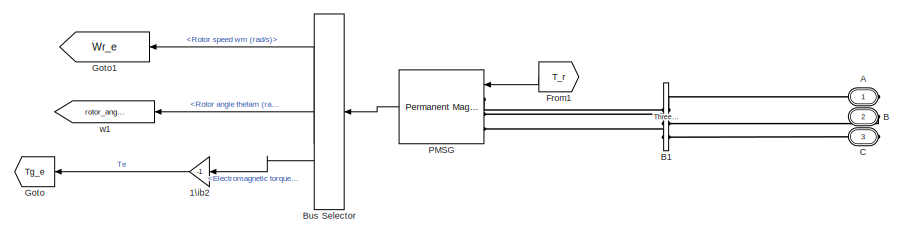
[diagram: Subsystem2/wind generation - part 1/3, top right region]
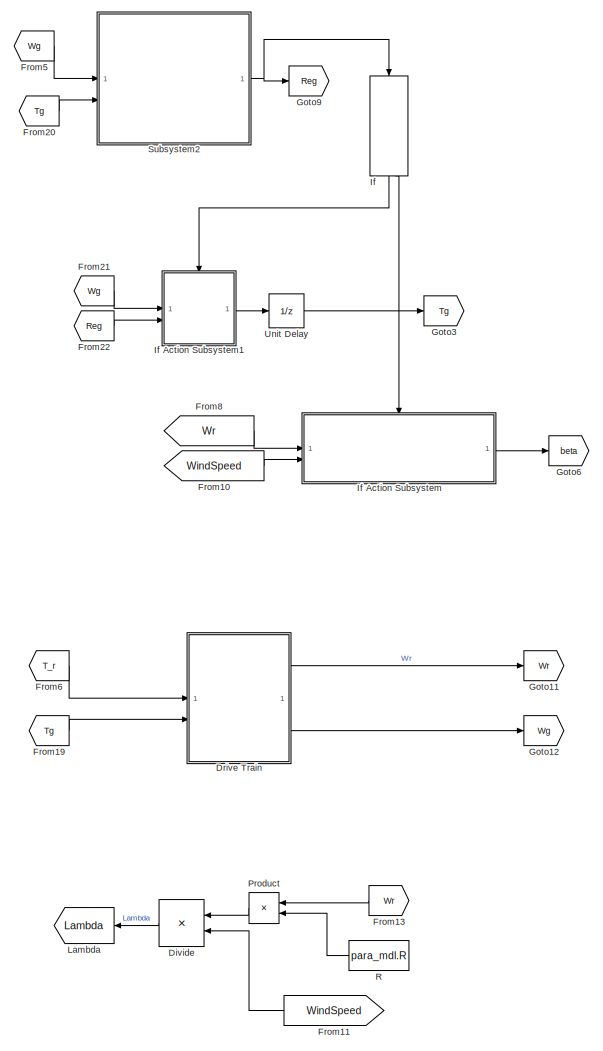
[diagram: Subsystem2/wind generation - part 2/3, left side, full height]
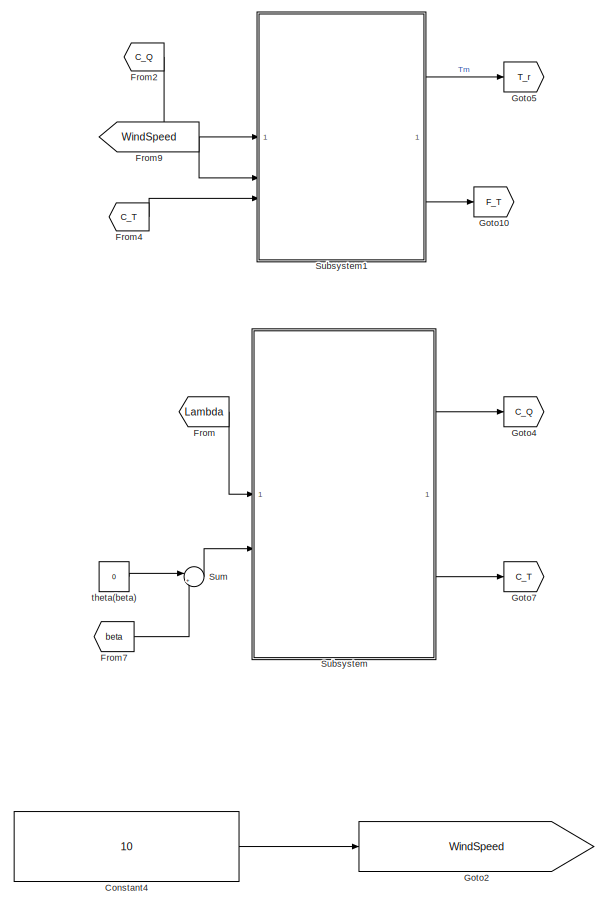
[diagram: Subsystem2/wind generation - part 3/3, center side, full height]
BLOCK [SubSystem] Subsystem2/wind generation
BLOCK [Gain] Subsystem2/wind generation/1\ib2
  Gain = -1
  NameLocation = top
  OutDataTypeStr = Inherit: Same as input
  ParamDataTypeStr = Inherit: Same as input
  SaturateOnIntegerOverflow = on
BLOCK [PMIOPort] Subsystem2/wind generation/A
  NameLocation = right
  Side = Right
  Tag = PMCPort
BLOCK [PMIOPort] Subsystem2/wind generation/B
  NameLocation = right
  Port = 2
  Side = Right
  Tag = PMCPort
BLOCK [Reference] Subsystem2/wind generation/B1  REF=spsThreePhaseVIMeasurementLib/Three-Phase
V-I Measurement
  LibrarySourceBlock = sps_lib/Sensors and Measurements/Three-Phase\nV-I Measurement
  NameLocation = top
  SourceBlock = spsThreePhaseVIMeasurementLib/Three-Phase\nV-I Measurement
  SourceType = Three-Phase VI Measurement
BLOCK [BusSelector] Subsystem2/wind generation/Bus Selector
  NameLocation = top
  OutputSignals = Rotor speed wm (rad/s),Rotor angle thetam (rad),Electromagnetic torque Te (N*m)
BLOCK [PMIOPort] Subsystem2/wind generation/C
  NameLocation = right
  Port = 3
  Side = Right
  Tag = PMCPort
BLOCK [Constant] Subsystem2/wind generation/Constant4
  Value = 10
BLOCK [Product] Subsystem2/wind generation/Divide
  Inputs = */
BLOCK [SubSystem] Subsystem2/wind generation/Drive Train
BLOCK [Constant] Subsystem2/wind generation/Drive Train/Constant1
  Value = para_mdl.kS
BLOCK [Constant] Subsystem2/wind generation/Drive Train/Constant4
  Value = para_mdl.dS
BLOCK [Constant] Subsystem2/wind generation/Drive Train/Constant6
  Value = para_mdl.kS
BLOCK [Constant] Subsystem2/wind generation/Drive Train/Constant7
  Value = para_mdl.dS
BLOCK [From] Subsystem2/wind generation/Drive Train/From
  GotoTag = phi_dot
  TagVisibility = global
BLOCK [From] Subsystem2/wind generation/Drive Train/From1
  GotoTag = phi_dot
  TagVisibility = global
BLOCK [From] Subsystem2/wind generation/Drive Train/From2
  GotoTag = phi_dot
  TagVisibility = global
BLOCK [From] Subsystem2/wind generation/Drive Train/From3
  GotoTag = phi_dot
  TagVisibility = global
BLOCK [From] Subsystem2/wind generation/Drive Train/From4
  GotoTag = Wr_dot
BLOCK [From] Subsystem2/wind generation/Drive Train/From5
  GotoTag = Wg_dot
BLOCK [From] Subsystem2/wind generation/Drive Train/From6
  GotoTag = phi_dot
  TagVisibility = global
BLOCK [Gain] Subsystem2/wind generation/Drive Train/Gain
  Gain = 1/para_mdl.Jr
BLOCK [Gain] Subsystem2/wind generation/Drive Train/Gain1
  Gain = 1/para_mdl.Jg
BLOCK [Gain] Subsystem2/wind generation/Drive Train/Gain2
  Gain = para_mdl.ngear
BLOCK [Gain] Subsystem2/wind generation/Drive Train/Gain3
  Gain = para_mdl.ngear
BLOCK [Gain] Subsystem2/wind generation/Drive Train/Gain4
  Gain = para_mdl.ngear
BLOCK [Goto] Subsystem2/wind generation/Drive Train/Goto
  GotoTag = Wr_dot
BLOCK [Goto] Subsystem2/wind generation/Drive Train/Goto1
  GotoTag = phi_dot
  TagVisibility = global
BLOCK [Goto] Subsystem2/wind generation/Drive Train/Goto2
  GotoTag = Wg_dot
BLOCK [Integrator] Subsystem2/wind generation/Drive Train/Integrator
BLOCK [Integrator] Subsystem2/wind generation/Drive Train/Integrator1
BLOCK [Integrator] Subsystem2/wind generation/Drive Train/Integrator2
BLOCK [Integrator] Subsystem2/wind generation/Drive Train/Integrator3
BLOCK [Integrator] Subsystem2/wind generation/Drive Train/Integrator4
BLOCK [Product] Subsystem2/wind generation/Drive Train/Product1
BLOCK [Product] Subsystem2/wind generation/Drive Train/Product2
BLOCK [Product] Subsystem2/wind generation/Drive Train/Product3
BLOCK [Scope] Subsystem2/wind generation/Drive Train/Scope
  Floating = off
  NumInputPorts = 1
  ScopeSpecificationString = Simulink.scopes.TimeScopeBlockCfg('CurrentConfiguration', extmgr.ConfigurationSet(extmgr.Configuration('Core','General UI',true),extmgr.Configuration('Core','Source UI',true),extmgr.Configuration('Sources','WiredSimulink',true,'DataLoggingVariableName','ScopeData1'),extmgr.Configuration('Visuals','Time Domain',true,'SerializedDisplays',{struct('MinYLimReal','-0.04372','MaxYLimReal','0.39347','YLab...<+1513ch>
BLOCK [Sum] Subsystem2/wind generation/Drive Train/Sum
  IconShape = rectangular
  Inputs = +--
BLOCK [Sum] Subsystem2/wind generation/Drive Train/Sum1
  Inputs = |+-
BLOCK [Sum] Subsystem2/wind generation/Drive Train/Sum2
  IconShape = rectangular
  Inputs = -++
BLOCK [Inport] Subsystem2/wind generation/Drive Train/Tg
  Port = 2
BLOCK [Inport] Subsystem2/wind generation/Drive Train/Tr
BLOCK [Outport] Subsystem2/wind generation/Drive Train/Wg
  Port = 2
BLOCK [Outport] Subsystem2/wind generation/Drive Train/Wr
BLOCK [Product] Subsystem2/wind generation/Drive Train/t
BLOCK [From] Subsystem2/wind generation/From
  GotoTag = Lambda
BLOCK [From] Subsystem2/wind generation/From1
  GotoTag = T_r
  NameLocation = top
BLOCK [From] Subsystem2/wind generation/From10
  GotoTag = WindSpeed
BLOCK [From] Subsystem2/wind generation/From11
  GotoTag = WindSpeed
  NameLocation = top
BLOCK [From] Subsystem2/wind generation/From13
  GotoTag = Wr
BLOCK [From] Subsystem2/wind generation/From19
  GotoTag = Tg
BLOCK [From] Subsystem2/wind generation/From2
  GotoTag = C_Q
BLOCK [From] Subsystem2/wind generation/From20
  GotoTag = Tg
BLOCK [From] Subsystem2/wind generation/From21
  GotoTag = Wg
BLOCK [From] Subsystem2/wind generation/From22
  GotoTag = Reg
BLOCK [From] Subsystem2/wind generation/From4
  GotoTag = C_T
BLOCK [From] Subsystem2/wind generation/From5
  GotoTag = Wg
BLOCK [From] Subsystem2/wind generation/From6
  GotoTag = T_r
BLOCK [From] Subsystem2/wind generation/From7
  GotoTag = beta
BLOCK [From] Subsystem2/wind generation/From8
  GotoTag = Wr
BLOCK [From] Subsystem2/wind generation/From9
  GotoTag = WindSpeed
BLOCK [Goto] Subsystem2/wind generation/Goto
  GotoTag = Tg_e
  NameLocation = top
  TagVisibility = global
BLOCK [Goto] Subsystem2/wind generation/Goto1
  GotoTag = Wr_e
  NameLocation = top
BLOCK [Goto] Subsystem2/wind generation/Goto10
  GotoTag = F_T
BLOCK [Goto] Subsystem2/wind generation/Goto11
  GotoTag = Wr
BLOCK [Goto] Subsystem2/wind generation/Goto12
  GotoTag = Wg
BLOCK [Goto] Subsystem2/wind generation/Goto2
  GotoTag = WindSpeed
BLOCK [Goto] Subsystem2/wind generation/Goto3
  GotoTag = Tg
BLOCK [Goto] Subsystem2/wind generation/Goto4
  GotoTag = C_Q
BLOCK [Goto] Subsystem2/wind generation/Goto5
  GotoTag = T_r
BLOCK [Goto] Subsystem2/wind generation/Goto6
  GotoTag = beta
BLOCK [Goto] Subsystem2/wind generation/Goto7
  GotoTag = C_T
BLOCK [Goto] Subsystem2/wind generation/Goto9
  GotoTag = Reg
BLOCK [If] Subsystem2/wind generation/If
  IfExpression = u1 ~= 3
  NameLocation = left
BLOCK [SubSystem] Subsystem2/wind generation/If Action Subsystem
  TreatAsAtomicUnit = on
BLOCK [ActionPort] Subsystem2/wind generation/If Action Subsystem/Action Port
  ActionPortLabel = else
BLOCK [Sum] Subsystem2/wind generation/If Action Subsystem/Add
  IconShape = rectangular
  Inputs = -+
BLOCK [Outport] Subsystem2/wind generation/If Action Subsystem/Beta_1
BLOCK [Constant] Subsystem2/wind generation/If Action Subsystem/Constant
  Value = para_mdl.omega_r_R
BLOCK [Integrator] Subsystem2/wind generation/If Action Subsystem/Integrator1
BLOCK [Display] Subsystem2/wind generation/If Action Subsystem/KI1
  Decimation = 1
BLOCK [Display] Subsystem2/wind generation/If Action Subsystem/KP1
  Decimation = 1
BLOCK [Product] Subsystem2/wind generation/If Action Subsystem/Product
BLOCK [Product] Subsystem2/wind generation/If Action Subsystem/Product1
BLOCK [Scope] Subsystem2/wind generation/If Action Subsystem/Scope6
  Floating = off
  NumInputPorts = 2
  ScopeSpecificationString = Simulink.scopes.TimeScopeBlockCfg('CurrentConfiguration', extmgr.ConfigurationSet(extmgr.Configuration('Core','General UI',true,'FigureColor',[0.941176470588235 0.941176470588235 0.941176470588235]),extmgr.Configuration('Core','Source UI',true),extmgr.Configuration('Sources','WiredSimulink',true,'DataLoggingVariableName','ScopeData8'),extmgr.Configuration('Visuals','Time Domain',true,'SerializedDi...<+3363ch>
BLOCK [SubSystem] Subsystem2/wind generation/If Action Subsystem/Subsystem1
  Priority = 1
BLOCK [Outport] Subsystem2/wind generation/If Action Subsystem/Subsystem1/ KI
  Port = 2
BLOCK [Outport] Subsystem2/wind generation/If Action Subsystem/Subsystem1/ KP
BLOCK [Lookup_n-D] Subsystem2/wind generation/If Action Subsystem/Subsystem1/2-D Lookup KI1
  BreakpointsForDimension1 = v
  BreakpointsForDimension2 = beta
  InputPortMap = u0
  InternalRulePriority = Speed
  NumberOfTableDimensions = 1
  RndMeth = Simplest
  Table = k_I
BLOCK [Lookup_n-D] Subsystem2/wind generation/If Action Subsystem/Subsystem1/2-D Lookup KP1
  BreakpointsForDimension1 = v
  BreakpointsForDimension2 = [1:3]
  InputPortMap = u0
  InternalRulePriority = Speed
  NumberOfTableDimensions = 1
  RndMeth = Simplest
  Table = k_P
BLOCK [Display] Subsystem2/wind generation/If Action Subsystem/Subsystem1/Display
  Decimation = 1
BLOCK [Display] Subsystem2/wind generation/If Action Subsystem/Subsystem1/Display1
  Decimation = 1
BLOCK [Inport] Subsystem2/wind generation/If Action Subsystem/Subsystem1/Speed
BLOCK [ToWorkspace] Subsystem2/wind generation/If Action Subsystem/Subsystem1/To Workspace
  FixptAsFi = on
  MaxDataPoints = inf
  SampleTime = -1
  SaveFormat = Timeseries
  VariableName = KP1
BLOCK [ToWorkspace] Subsystem2/wind generation/If Action Subsystem/Subsystem1/To Workspace1
  FixptAsFi = on
  MaxDataPoints = inf
  SampleTime = -1
  SaveFormat = Timeseries
  VariableName = KI1
BLOCK [Sum] Subsystem2/wind generation/If Action Subsystem/Sum1
  Inputs = |++
BLOCK [Inport] Subsystem2/wind generation/If Action Subsystem/Wind Speed
  NameLocation = top
  Port = 2
BLOCK [Inport] Subsystem2/wind generation/If Action Subsystem/omega_r
BLOCK [SubSystem] Subsystem2/wind generation/If Action Subsystem1
  TreatAsAtomicUnit = on
BLOCK [ActionPort] Subsystem2/wind generation/If Action Subsystem1/Action Port
  ActionPortLabel = if(u1 ~= 3)
BLOCK [Inport] Subsystem2/wind generation/If Action Subsystem1/Input
BLOCK [Inport] Subsystem2/wind generation/If Action Subsystem1/Input1
  Port = 2
BLOCK [SubSystem] Subsystem2/wind generation/If Action Subsystem1/MATLAB Function1
  ErrorFcn = Stateflow.Translate.translate
  PermitHierarchicalResolution = ExplicitOnly
  SFBlockType = MATLAB Function
  TreatAsAtomicUnit = on
BLOCK [Demux] Subsystem2/wind generation/If Action Subsystem1/MATLAB Function1/ Demux 
  Outputs = 1
BLOCK [S-Function] Subsystem2/wind generation/If Action Subsystem1/MATLAB Function1/ SFunction 
  EnableBusSupport = on
  FunctionName = sf_sfun
  PortCounts = [2 2]
  SFcnIsStateOwnerBlock = off
  SFunctionDeploymentMode = off
  Tag = Stateflow S-Function 3
BLOCK [Terminator] Subsystem2/wind generation/If Action Subsystem1/MATLAB Function1/ Terminator 
BLOCK [Outport] Subsystem2/wind generation/If Action Subsystem1/MATLAB Function1/Tg
BLOCK [Inport] Subsystem2/wind generation/If Action Subsystem1/MATLAB Function1/region
  Port = 2
BLOCK [Inport] Subsystem2/wind generation/If Action Subsystem1/MATLAB Function1/wg
BLOCK [Outport] Subsystem2/wind generation/If Action Subsystem1/Output
BLOCK [Goto] Subsystem2/wind generation/Lambda
  GotoTag = Lambda
BLOCK [Reference] Subsystem2/wind generation/PMSG  REF=spsPermanentMagnetSynchronousMachineLib/Permanent Magnet
Synchronous Machine
  LibrarySourceBlock = sps_lib/Electrical Machines/Permanent Magnet\nSynchronous Machine
  NameLocation = top
  SourceBlock = spsPermanentMagnetSynchronousMachineLib/Permanent Magnet\nSynchronous Machine
  SourceType = Permanent Magnet Synchronous Machine
BLOCK [Product] Subsystem2/wind generation/Product
BLOCK [Constant] Subsystem2/wind generation/R
  Value = para_mdl.R
BLOCK [SubSystem] Subsystem2/wind generation/Subsystem
BLOCK [Lookup_n-D] Subsystem2/wind generation/Subsystem/2-D Lookup Table
  BreakpointsForDimension1 = para_mdl.CQ_lambdas
  BreakpointsForDimension2 = para_mdl.CQ_betas
  InputPortMap = u0,u1
  InternalRulePriority = Speed
  RndMeth = Simplest
  Table = para_mdl.CQ_entries
BLOCK [Lookup_n-D] Subsystem2/wind generation/Subsystem/2-D Lookup Table1
  BreakpointsForDimension1 = para_mdl.CT_lambdas
  BreakpointsForDimension2 = para_mdl.CT_betas
  InputPortMap = u0,u1
  InternalRulePriority = Speed
  RndMeth = Simplest
  Table = para_mdl.CT_entries
BLOCK [Inport] Subsystem2/wind generation/Subsystem/Beta
  Port = 2
BLOCK [Outport] Subsystem2/wind generation/Subsystem/CQ
BLOCK [Outport] Subsystem2/wind generation/Subsystem/CT
  Port = 2
BLOCK [Inport] Subsystem2/wind generation/Subsystem/Lamda
BLOCK [SubSystem] Subsystem2/wind generation/Subsystem1
BLOCK [Inport] Subsystem2/wind generation/Subsystem1/CQ
BLOCK [Inport] Subsystem2/wind generation/Subsystem1/CT
  Port = 3
BLOCK [Constant] Subsystem2/wind generation/Subsystem1/Constant
  Value = para_mdl.R
BLOCK [Constant] Subsystem2/wind generation/Subsystem1/Constant1
  Value = para_mdl.R
BLOCK [Outport] Subsystem2/wind generation/Subsystem1/Ft
  Port = 2
BLOCK [Gain] Subsystem2/wind generation/Subsystem1/Gain
  Gain = 1/2
BLOCK [Gain] Subsystem2/wind generation/Subsystem1/Gain1
  Gain = 1/2
BLOCK [MATLABFcn] Subsystem2/wind generation/Subsystem1/Interpreted MATLAB Function
  MATLABFcn = u^3
BLOCK [MATLABFcn] Subsystem2/wind generation/Subsystem1/Interpreted MATLAB Function1
  MATLABFcn = u^2
BLOCK [MATLABFcn] Subsystem2/wind generation/Subsystem1/Interpreted MATLAB Function2
  MATLABFcn = u^2
BLOCK [MATLABFcn] Subsystem2/wind generation/Subsystem1/Interpreted MATLAB Function3
  MATLABFcn = u^2
BLOCK [Constant] Subsystem2/wind generation/Subsystem1/Pi
  OutDataTypeStr = Inherit: Inherit via back propagation
  Value = pi
BLOCK [Constant] Subsystem2/wind generation/Subsystem1/Pi1
  OutDataTypeStr = Inherit: Inherit via back propagation
  Value = pi
BLOCK [Product] Subsystem2/wind generation/Subsystem1/Product1
  Inputs = 5
BLOCK [Product] Subsystem2/wind generation/Subsystem1/Product2
  Inputs = 5
BLOCK [Outport] Subsystem2/wind generation/Subsystem1/Tr
BLOCK [Inport] Subsystem2/wind generation/Subsystem1/Windspeed
  Port = 2
BLOCK [Constant] Subsystem2/wind generation/Subsystem1/rho
  Value = para_mdl.rho
BLOCK [Constant] Subsystem2/wind generation/Subsystem1/rho1
  Value = para_mdl.rho
BLOCK [SubSystem] Subsystem2/wind generation/Subsystem2
BLOCK [SubSystem] Subsystem2/wind generation/Subsystem2/MATLAB Function
  ErrorFcn = Stateflow.Translate.translate
  PermitHierarchicalResolution = ExplicitOnly
  SFBlockType = MATLAB Function
  TreatAsAtomicUnit = on
BLOCK [Demux] Subsystem2/wind generation/Subsystem2/MATLAB Function/ Demux 
  Outputs = 1
BLOCK [S-Function] Subsystem2/wind generation/Subsystem2/MATLAB Function/ SFunction 
  EnableBusSupport = on
  FunctionName = sf_sfun
  PortCounts = [2 2]
  SFcnIsStateOwnerBlock = off
  SFunctionDeploymentMode = off
  Tag = Stateflow S-Function 4
BLOCK [Terminator] Subsystem2/wind generation/Subsystem2/MATLAB Function/ Terminator 
BLOCK [Inport] Subsystem2/wind generation/Subsystem2/MATLAB Function/Tg
  Port = 2
BLOCK [Outport] Subsystem2/wind generation/Subsystem2/MATLAB Function/turbineRegion
BLOCK [Inport] Subsystem2/wind generation/Subsystem2/MATLAB Function/wg
BLOCK [Inport] Subsystem2/wind generation/Subsystem2/Tg
  Port = 2
BLOCK [Outport] Subsystem2/wind generation/Subsystem2/turbineRegion
BLOCK [Inport] Subsystem2/wind generation/Subsystem2/wg
BLOCK [Sum] Subsystem2/wind generation/Sum
  Inputs = |++
BLOCK [UnitDelay] Subsystem2/wind generation/Unit Delay
  HasFrameUpgradeWarning = on
  SampleTime = -1
BLOCK [Constant] Subsystem2/wind generation/theta(beta)
  Value = 0
BLOCK [Goto] Subsystem2/wind generation/w1
  GotoTag = rotor_angle_rad
  NameLocation = top
BLOCK [Reference] Three-Phase Breaker  REF=spsThreePhaseBreakerLib/Three-Phase Breaker
  LibrarySourceBlock = sps_lib/Power Grid Elements/Three-Phase Breaker
  SourceBlock = spsThreePhaseBreakerLib/Three-Phase Breaker
  SourceType = Three-Phase Breaker
BLOCK [Reference] XFM-1 4.16 kV //480 V  REF=spsThreePhaseTransformerTwoWindingsLib/Three-Phase
Transformer
(Two Windings)
  LibrarySourceBlock = sps_lib/Power Grid Elements/Three-Phase\nTransformer\n(Two Windings)
  SourceBlock = spsThreePhaseTransformerTwoWindingsLib/Three-Phase\nTransformer\n(Two Windings)
  SourceType = Three-Phase Transformer (Two Windings)
BLOCK [Reference] XFM-1 4.16 kV //480 V1  REF=spsThreePhaseTransformerTwoWindingsLib/Three-Phase
Transformer
(Two Windings)
  LibrarySourceBlock = sps_lib/Power Grid Elements/Three-Phase\nTransformer\n(Two Windings)
  NameLocation = left
  SourceBlock = spsThreePhaseTransformerTwoWindingsLib/Three-Phase\nTransformer\n(Two Windings)
  SourceType = Three-Phase Transformer (Two Windings)
BLOCK [Reference] XFM-1 4.16 kV //480 V2  REF=spsThreePhaseTransformerTwoWindingsLib/Three-Phase
Transformer
(Two Windings)
  LibrarySourceBlock = sps_lib/Power Grid Elements/Three-Phase\nTransformer\n(Two Windings)
  NameLocation = left
  SourceBlock = spsThreePhaseTransformerTwoWindingsLib/Three-Phase\nTransformer\n(Two Windings)
  SourceType = Three-Phase Transformer (Two Windings)
BLOCK [Reference] powergui1  REF=spspowerguiLib/powergui
  Priority = 1
  SourceBlock = spspowerguiLib/powergui
  SourceType = PSB option menu block
ANNOTATION (root): The model does not include the regulating transformer between nodes 650 and 632
ANNOTATION (root): Battery Implementation
ANNOTATION (root): 632 Swing bus 1.0210 pu -2.49 1.0420 pu -121.72 1.0174 pu 117.83
ANNOTATION (root): IEEE 13 Node Test Feeder
ANNOTATION (root): PV ARRAY SYSTEM WITH VSC
ANNOTATION (root): i
ANNOTATION Controlled PV Array: DC/AC VSC
ANNOTATION Controlled PV Array: Filter
ANNOTATION Controlled PV Array: Input
ANNOTATION Controlled PV Array: Output
ANNOTATION Controlled PV Array: Renewable source
ANNOTATION Controlled PV Array: VSC Control
ANNOTATION Controlled PV Array/PV Array: Allows PV model to initialize
ANNOTATION Controlled PV Array/VSC Control: Current measurement abc to qd0
ANNOTATION Controlled PV Array/VSC Control: I/V inputs
ANNOTATION Controlled PV Array/VSC Control: Inner Current Control Loop
ANNOTATION Controlled PV Array/VSC Control: MPPT
ANNOTATION Controlled PV Array/VSC Control: Outer DC Voltage Control
ANNOTATION Controlled PV Array/VSC Control: Outer Reactive Power Control Loop
ANNOTATION Controlled PV Array/VSC Control: Phase Locked-Loop (Grid angle)
ANNOTATION Subsystem: Battery
ANNOTATION Subsystem: DC LINK
ANNOTATION Subsystem: Grid Inverter
ANNOTATION Subsystem: Inverter Control
ANNOTATION Subsystem/Grid Inverter: Harmonic Filter
ANNOTATION Subsystem/Inverter Control/Current Control/Current Regulator: Current Regulator ================
ANNOTATION Subsystem/Inverter Control/Current Control/Current Regulator: Id positive --> The converter generates active power ("Inverter mode") = Active Power P positive
ANNOTATION Subsystem/Inverter Control/Current Control/Current Regulator: Iq positive --> The converter absorbs reactive power ("Inductive mode") = Reactive Power Q negative
ANNOTATION Subsystem/Inverter Control/Current Control/Current Regulator: Sign Convention: Current going out of the converter = positive current
ANNOTATION Subsystem/Inverter Control/Current Control/Uabc_ref Generation max (m) = 1: (Correction for delai of Ts_Control)
ANNOTATION Subsystem/Inverter Control/Current Control/Uabc_ref Generation max (m) = 1: (Correction for transformer D1 connection)
ANNOTATION Subsystem/Inverter Control/Current Control/Uabc_ref Generation max (m) = 1: Uref Generation ==============
ANNOTATION Subsystem/Inverter Control/PLL & Measurements: PLL & Measurements ===================
ANNOTATION Subsystem2: AC-DC-AC Converter
ANNOTATION Subsystem2: Filter
ANNOTATION Subsystem2/Current Control/Current Regulator: Current Regulator ================
ANNOTATION Subsystem2/Current Control/Current Regulator: Id positive --> The converter generates active power ("Inverter mode") = Active Power P positive
ANNOTATION Subsystem2/Current Control/Current Regulator: Iq positive --> The converter absorbs reactive power ("Inductive mode") = Reactive Power Q negative
ANNOTATION Subsystem2/Current Control/Current Regulator: Sign Convention: Current going out of the converter = positive current
ANNOTATION Subsystem2/Current Control/Uabc_ref Generation max (m) = 1: (Correction for delai of Ts_Control)
ANNOTATION Subsystem2/Current Control/Uabc_ref Generation max (m) = 1: (Correction for transformer D1 connection)
ANNOTATION Subsystem2/Current Control/Uabc_ref Generation max (m) = 1: Uref Generation ==============
ANNOTATION Subsystem2/PLL & Measurements: PLL & Measurements ===================
LINE Constant1:1 -> Controlled PV Array:1
LINE Constant:1 -> Controlled PV Array:2
LINE Controlled PV Array/Constant:1 -> Controlled PV Array/VSC Control:6
LINE Controlled PV Array/Current Measurement1:1 -> Controlled PV Array/Goto3:1
LINE Controlled PV Array/Current Measurement:1 -> Controlled PV Array/Goto2:1
LINE Controlled PV Array/From10:1 -> Controlled PV Array/PV Array:2
LINE Controlled PV Array/From11:1 -> Controlled PV Array/VSC Control:5
NET Controlled PV Array/From12:1 -> Controlled PV Array/Product:2, Controlled PV Array/Scope2:2
NET Controlled PV Array/From13:1 -> Controlled PV Array/Product:1, Controlled PV Array/Scope2:1
LINE Controlled PV Array/From1:1 -> Controlled PV Array/VSC:2
LINE Controlled PV Array/From2:1 -> Controlled PV Array/VSC Control:1
LINE Controlled PV Array/From3:1 -> Controlled PV Array/PV Array:4
LINE Controlled PV Array/From4:1 -> Controlled PV Array/VSC Control:2
LINE Controlled PV Array/From5:1 -> Controlled PV Array/VSC:3
LINE Controlled PV Array/From6:1 -> Controlled PV Array/VSC Control:3
LINE Controlled PV Array/From7:1 -> Controlled PV Array/VSC Control:4
LINE Controlled PV Array/From8:1 -> Controlled PV Array/VSC:1
LINE Controlled PV Array/From9:1 -> Controlled PV Array/PV Array:1
LINE Controlled PV Array/From:1 -> Controlled PV Array/PV Array:3
LINE Controlled PV Array/G:1 -> Controlled PV Array/Goto7:1
LINE Controlled PV Array/I_abc:1 -> Controlled PV Array/Goto9:1
LINE Controlled PV Array/PV Array/Delay1:1 -> Controlled PV Array/PV Array/Mux1:3
LINE Controlled PV Array/PV Array/Delay:1 -> Controlled PV Array/PV Array/Mux1:4
LINE Controlled PV Array/PV Array/G:1 -> Controlled PV Array/PV Array/Mux:2
NET Controlled PV Array/PV Array/I module:1 -> Controlled PV Array/PV Array/Display:1, Controlled PV Array/PV Array/Saturation:1
LINE Controlled PV Array/PV Array/I0:1 -> Controlled PV Array/PV Array/Mux1:1
LINE Controlled PV Array/PV Array/I_dc:1 -> Controlled PV Array/PV Array/Delay:1
LINE Controlled PV Array/PV Array/Ipv:1 -> Controlled PV Array/PV Array/Mux1:2
LINE Controlled PV Array/PV Array/Mux1:1 -> Controlled PV Array/PV Array/I module:1
LINE Controlled PV Array/PV Array/Mux:1 -> Controlled PV Array/PV Array/Ipv:1
LINE Controlled PV Array/PV Array/Product17:1 -> Controlled PV Array/PV Array/Controlled Current Source19:1
LINE Controlled PV Array/PV Array/Saturation:1 -> Controlled PV Array/PV Array/Product17:1
LINE Controlled PV Array/PV Array/Step16:1 -> Controlled PV Array/PV Array/Product17:2
NET Controlled PV Array/PV Array/T:1 -> Controlled PV Array/PV Array/I0:1, Controlled PV Array/PV Array/Mux1:5, Controlled PV Array/PV Array/Mux:1
LINE Controlled PV Array/PV Array/V_dc:1 -> Controlled PV Array/PV Array/Delay1:1
LINE Controlled PV Array/Product:1 -> Controlled PV Array/Scope2:3
LINE Controlled PV Array/T:1 -> Controlled PV Array/Goto:1
LINE Controlled PV Array/VSC Control/Current Control/Constant:1 -> Controlled PV Array/VSC Control/Current Control/Mux:3
LINE Controlled PV Array/VSC Control/Current Control/Delay1:1 -> Controlled PV Array/VSC Control/Current Control/Mux:2
LINE Controlled PV Array/VSC Control/Current Control/Delay:1 -> Controlled PV Array/VSC Control/Current Control/Mux:1
LINE Controlled PV Array/VSC Control/Current Control/Demux1:1 -> Controlled PV Array/VSC Control/Current Control/Sum:1
LINE Controlled PV Array/VSC Control/Current Control/Demux1:2 -> Controlled PV Array/VSC Control/Current Control/Sum1:2
NET Controlled PV Array/VSC Control/Current Control/Demux2:1 -> Controlled PV Array/VSC Control/Current Control/Product:1, Controlled PV Array/VSC Control/Current Control/Sum:2
NET Controlled PV Array/VSC Control/Current Control/Demux2:2 -> Controlled PV Array/VSC Control/Current Control/Product1:2, Controlled PV Array/VSC Control/Current Control/Sum1:1
LINE Controlled PV Array/VSC Control/Current Control/Demux2:3 -> Controlled PV Array/VSC Control/Current Control/Terminator:1
LINE Controlled PV Array/VSC Control/Current Control/Demux:1 -> Controlled PV Array/VSC Control/Current Control/Goto2:1
LINE Controlled PV Array/VSC Control/Current Control/Demux:2 -> Controlled PV Array/VSC Control/Current Control/Goto1:1
LINE Controlled PV Array/VSC Control/Current Control/From1:1 -> Controlled PV Array/VSC Control/Current Control/Sum4:3
LINE Controlled PV Array/VSC Control/Current Control/From:1 -> Controlled PV Array/VSC Control/Current Control/Sum2:1
NET Controlled PV Array/VSC Control/Current Control/Gain:1 -> Controlled PV Array/VSC Control/Current Control/Product1:1, Controlled PV Array/VSC Control/Current Control/Product:2
LINE Controlled PV Array/VSC Control/Current Control/I_qd_c:1 -> Controlled PV Array/VSC Control/Current Control/Demux2:1
LINE Controlled PV Array/VSC Control/Current Control/I_qd_ref:1 -> Controlled PV Array/VSC Control/Current Control/Demux1:1
NET Controlled PV Array/VSC Control/Current Control/Inverse Park Transformation/Constant2:1 -> Controlled PV Array/VSC Control/Current Control/Inverse Park Transformation/Mux2:1, Controlled PV Array/VSC Control/Current Control/Inverse Park Transformation/Mux2:2, Controlled PV Array/VSC Control/Current Control/Inverse Park Transformation/Mux2:3
NET Controlled PV Array/VSC Control/Current Control/Inverse Park Transformation/Constant3:1 -> Controlled PV Array/VSC Control/Current Control/Inverse Park Transformation/Sum1:2, Controlled PV Array/VSC Control/Current Control/Inverse Park Transformation/Sum:2
LINE Controlled PV Array/VSC Control/Current Control/Inverse Park Transformation/Cos:1 -> Controlled PV Array/VSC Control/Current Control/Inverse Park Transformation/Matrix Concatenate:1
LINE Controlled PV Array/VSC Control/Current Control/Inverse Park Transformation/Matrix Concatenate:1 -> Controlled PV Array/VSC Control/Current Control/Inverse Park Transformation/Matrix Multiply:1
LINE Controlled PV Array/VSC Control/Current Control/Inverse Park Transformation/Matrix Multiply:1 -> Controlled PV Array/VSC Control/Current Control/Inverse Park Transformation/abc:1
NET Controlled PV Array/VSC Control/Current Control/Inverse Park Transformation/Mux1:1 -> Controlled PV Array/VSC Control/Current Control/Inverse Park Transformation/Cos:1, Controlled PV Array/VSC Control/Current Control/Inverse Park Transformation/Sin:1
LINE Controlled PV Array/VSC Control/Current Control/Inverse Park Transformation/Mux2:1 -> Controlled PV Array/VSC Control/Current Control/Inverse Park Transformation/Matrix Concatenate:3
LINE Controlled PV Array/VSC Control/Current Control/Inverse Park Transformation/Sin:1 -> Controlled PV Array/VSC Control/Current Control/Inverse Park Transformation/Matrix Concatenate:2
LINE Controlled PV Array/VSC Control/Current Control/Inverse Park Transformation/Sum1:1 -> Controlled PV Array/VSC Control/Current Control/Inverse Park Transformation/Mux1:3
LINE Controlled PV Array/VSC Control/Current Control/Inverse Park Transformation/Sum:1 -> Controlled PV Array/VSC Control/Current Control/Inverse Park Transformation/Mux1:2
LINE Controlled PV Array/VSC Control/Current Control/Inverse Park Transformation/qd0:1 -> Controlled PV Array/VSC Control/Current Control/Inverse Park Transformation/Matrix Multiply:2
NET Controlled PV Array/VSC Control/Current Control/Inverse Park Transformation/theta:1 -> Controlled PV Array/VSC Control/Current Control/Inverse Park Transformation/Mux1:1, Controlled PV Array/VSC Control/Current Control/Inverse Park Transformation/Sum1:1, Controlled PV Array/VSC Control/Current Control/Inverse Park Transformation/Sum:1
LINE Controlled PV Array/VSC Control/Current Control/Inverse Park Transformation:1 -> Controlled PV Array/VSC Control/Current Control/V_abc_c:1
LINE Controlled PV Array/VSC Control/Current Control/Mux:1 -> Controlled PV Array/VSC Control/Current Control/Inverse Park Transformation:1
LINE Controlled PV Array/VSC Control/Current Control/PID Controller1:1 -> Controlled PV Array/VSC Control/Current Control/Sum4:2
LINE Controlled PV Array/VSC Control/Current Control/PID Controller:1 -> Controlled PV Array/VSC Control/Current Control/Sum2:2
LINE Controlled PV Array/VSC Control/Current Control/Product1:1 -> Controlled PV Array/VSC Control/Current Control/Sum2:3
LINE Controlled PV Array/VSC Control/Current Control/Product:1 -> Controlled PV Array/VSC Control/Current Control/Sum4:1
LINE Controlled PV Array/VSC Control/Current Control/Sum1:1 -> Controlled PV Array/VSC Control/Current Control/PID Controller1:1
LINE Controlled PV Array/VSC Control/Current Control/Sum2:1 -> Controlled PV Array/VSC Control/Current Control/Delay:1
LINE Controlled PV Array/VSC Control/Current Control/Sum4:1 -> Controlled PV Array/VSC Control/Current Control/Delay1:1
LINE Controlled PV Array/VSC Control/Current Control/Sum:1 -> Controlled PV Array/VSC Control/Current Control/PID Controller:1
LINE Controlled PV Array/VSC Control/Current Control/V_qd:1 -> Controlled PV Array/VSC Control/Current Control/Demux:1
LINE Controlled PV Array/VSC Control/Current Control/theta_g:1 -> Controlled PV Array/VSC Control/Current Control/Inverse Park Transformation:2
LINE Controlled PV Array/VSC Control/Current Control/w_g:1 -> Controlled PV Array/VSC Control/Current Control/Gain:1
LINE Controlled PV Array/VSC Control/Current Control:1 -> Controlled PV Array/VSC Control/V_abc_c:1
LINE Controlled PV Array/VSC Control/DC Control/Gain1:1 -> Controlled PV Array/VSC Control/DC Control/Gain2:1
LINE Controlled PV Array/VSC Control/DC Control/Gain2:1 -> Controlled PV Array/VSC Control/DC Control/iq_ref:1
LINE Controlled PV Array/VSC Control/DC Control/Gain:1 -> Controlled PV Array/VSC Control/DC Control/Sum1:2
LINE Controlled PV Array/VSC Control/DC Control/I_dc:1 -> Controlled PV Array/VSC Control/DC Control/Gain:1
LINE Controlled PV Array/VSC Control/DC Control/PID Controller:1 -> Controlled PV Array/VSC Control/DC Control/Sum1:1
LINE Controlled PV Array/VSC Control/DC Control/Sum1:1 -> Controlled PV Array/VSC Control/DC Control/Gain1:1
LINE Controlled PV Array/VSC Control/DC Control/Sum:1 -> Controlled PV Array/VSC Control/DC Control/PID Controller:1
LINE Controlled PV Array/VSC Control/DC Control/V_dc:1 -> Controlled PV Array/VSC Control/DC Control/Sum:2
LINE Controlled PV Array/VSC Control/DC Control/V_dc_ref:1 -> Controlled PV Array/VSC Control/DC Control/Sum:1
LINE Controlled PV Array/VSC Control/DC Control:1 -> Controlled PV Array/VSC Control/Mux2:1
LINE Controlled PV Array/VSC Control/From10:1 -> Controlled PV Array/VSC Control/DC Control:2
LINE Controlled PV Array/VSC Control/From11:1 -> Controlled PV Array/VSC Control/DC Control:3
LINE Controlled PV Array/VSC Control/From1:1 -> Controlled PV Array/VSC Control/Current Control:2
LINE Controlled PV Array/VSC Control/From2:1 -> Controlled PV Array/VSC Control/PLL:1
LINE Controlled PV Array/VSC Control/From3:1 -> Controlled PV Array/VSC Control/Current Control:3
LINE Controlled PV Array/VSC Control/From4:1 -> Controlled PV Array/VSC Control/Q Control:2
LINE Controlled PV Array/VSC Control/From5:1 -> Controlled PV Array/VSC Control/Park Transformation:2
LINE Controlled PV Array/VSC Control/From6:1 -> Controlled PV Array/VSC Control/Current Control:5
LINE Controlled PV Array/VSC Control/From7:1 -> Controlled PV Array/VSC Control/Current Control:4
LINE Controlled PV Array/VSC Control/From8:1 -> Controlled PV Array/VSC Control/Park Transformation:1
LINE Controlled PV Array/VSC Control/From9:1 -> Controlled PV Array/VSC Control/Q Control:3
LINE Controlled PV Array/VSC Control/From:1 -> Controlled PV Array/VSC Control/Current Control:1
LINE Controlled PV Array/VSC Control/I_abc_c:1 -> Controlled PV Array/VSC Control/Goto4:1
LINE Controlled PV Array/VSC Control/I_dc:1 -> Controlled PV Array/VSC Control/Goto8:1
LINE Controlled PV Array/VSC Control/Mux2:1 -> Controlled PV Array/VSC Control/Goto9:1
LINE Controlled PV Array/VSC Control/Op_T:1 -> Controlled PV Array/VSC Control/Open-circuit MPPT:1
LINE Controlled PV Array/VSC Control/Open-circuit MPPT/Constant3:1 -> Controlled PV Array/VSC Control/Open-circuit MPPT/Sum1:2
LINE Controlled PV Array/VSC Control/Open-circuit MPPT/Constant4:1 -> Controlled PV Array/VSC Control/Open-circuit MPPT/Sum:2
LINE Controlled PV Array/VSC Control/Open-circuit MPPT/Gain1:1 -> Controlled PV Array/VSC Control/Open-circuit MPPT/Gain2:1
LINE Controlled PV Array/VSC Control/Open-circuit MPPT/Gain2:1 -> Controlled PV Array/VSC Control/Open-circuit MPPT/Vmp:1
LINE Controlled PV Array/VSC Control/Open-circuit MPPT/Gain:1 -> Controlled PV Array/VSC Control/Open-circuit MPPT/Sum:1
LINE Controlled PV Array/VSC Control/Open-circuit MPPT/Sum1:1 -> Controlled PV Array/VSC Control/Open-circuit MPPT/Gain:1
LINE Controlled PV Array/VSC Control/Open-circuit MPPT/Sum:1 -> Controlled PV Array/VSC Control/Open-circuit MPPT/Gain1:1
LINE Controlled PV Array/VSC Control/Open-circuit MPPT/T_PV:1 -> Controlled PV Array/VSC Control/Open-circuit MPPT/Sum1:1
LINE Controlled PV Array/VSC Control/Open-circuit MPPT:1 -> Controlled PV Array/VSC Control/DC Control:1
LINE Controlled PV Array/VSC Control/PLL/Constant1:1 -> Controlled PV Array/VSC Control/PLL/Sum1:2
LINE Controlled PV Array/VSC Control/PLL/Constant:1 -> Controlled PV Array/VSC Control/PLL/Sum:1
LINE Controlled PV Array/VSC Control/PLL/Demux:1 -> Controlled PV Array/VSC Control/PLL/Mux:1
NET Controlled PV Array/VSC Control/PLL/Demux:2 -> Controlled PV Array/VSC Control/PLL/Mux:2, Controlled PV Array/VSC Control/PLL/Sum:2
LINE Controlled PV Array/VSC Control/PLL/Demux:3 -> Controlled PV Array/VSC Control/PLL/Terminator:1
NET Controlled PV Array/VSC Control/PLL/Integrator:1 -> Controlled PV Array/VSC Control/PLL/Park Transformation:2, Controlled PV Array/VSC Control/PLL/theta_PLL:1
LINE Controlled PV Array/VSC Control/PLL/Mux:1 -> Controlled PV Array/VSC Control/PLL/V_qd:1
LINE Controlled PV Array/VSC Control/PLL/PID Controller:1 -> Controlled PV Array/VSC Control/PLL/Sum1:1
NET Controlled PV Array/VSC Control/PLL/Park Transformation/Constant3:1 -> Controlled PV Array/VSC Control/PLL/Park Transformation/Mux1:3, Controlled PV Array/VSC Control/PLL/Park Transformation/Mux2:3, Controlled PV Array/VSC Control/PLL/Park Transformation/Mux3:3
NET Controlled PV Array/VSC Control/PLL/Park Transformation/Constant5:1 -> Controlled PV Array/VSC Control/PLL/Park Transformation/Sum1:2, Controlled PV Array/VSC Control/PLL/Park Transformation/Sum:2
LINE Controlled PV Array/VSC Control/PLL/Park Transformation/Cos1:1 -> Controlled PV Array/VSC Control/PLL/Park Transformation/Mux2:1
LINE Controlled PV Array/VSC Control/PLL/Park Transformation/Cos2:1 -> Controlled PV Array/VSC Control/PLL/Park Transformation/Mux3:1
LINE Controlled PV Array/VSC Control/PLL/Park Transformation/Cos:1 -> Controlled PV Array/VSC Control/PLL/Park Transformation/Mux1:1
LINE Controlled PV Array/VSC Control/PLL/Park Transformation/Gain:1 -> Controlled PV Array/VSC Control/PLL/Park Transformation/Matrix Multiply:1
LINE Controlled PV Array/VSC Control/PLL/Park Transformation/Matrix Concatenate:1 -> Controlled PV Array/VSC Control/PLL/Park Transformation/Gain:1
LINE Controlled PV Array/VSC Control/PLL/Park Transformation/Matrix Multiply:1 -> Controlled PV Array/VSC Control/PLL/Park Transformation/qd0:1
LINE Controlled PV Array/VSC Control/PLL/Park Transformation/Mux1:1 -> Controlled PV Array/VSC Control/PLL/Park Transformation/Matrix Concatenate:1
LINE Controlled PV Array/VSC Control/PLL/Park Transformation/Mux2:1 -> Controlled PV Array/VSC Control/PLL/Park Transformation/Matrix Concatenate:2
LINE Controlled PV Array/VSC Control/PLL/Park Transformation/Mux3:1 -> Controlled PV Array/VSC Control/PLL/Park Transformation/Matrix Concatenate:3
LINE Controlled PV Array/VSC Control/PLL/Park Transformation/Sin1:1 -> Controlled PV Array/VSC Control/PLL/Park Transformation/Mux2:2
LINE Controlled PV Array/VSC Control/PLL/Park Transformation/Sin2:1 -> Controlled PV Array/VSC Control/PLL/Park Transformation/Mux3:2
LINE Controlled PV Array/VSC Control/PLL/Park Transformation/Sin:1 -> Controlled PV Array/VSC Control/PLL/Park Transformation/Mux1:2
NET Controlled PV Array/VSC Control/PLL/Park Transformation/Sum1:1 -> Controlled PV Array/VSC Control/PLL/Park Transformation/Cos2:1, Controlled PV Array/VSC Control/PLL/Park Transformation/Sin2:1
NET Controlled PV Array/VSC Control/PLL/Park Transformation/Sum:1 -> Controlled PV Array/VSC Control/PLL/Park Transformation/Cos1:1, Controlled PV Array/VSC Control/PLL/Park Transformation/Sin1:1
LINE Controlled PV Array/VSC Control/PLL/Park Transformation/abc:1 -> Controlled PV Array/VSC Control/PLL/Park Transformation/Matrix Multiply:2
NET Controlled PV Array/VSC Control/PLL/Park Transformation/theta:1 -> Controlled PV Array/VSC Control/PLL/Park Transformation/Cos:1, Controlled PV Array/VSC Control/PLL/Park Transformation/Sin:1, Controlled PV Array/VSC Control/PLL/Park Transformation/Sum1:1, Controlled PV Array/VSC Control/PLL/Park Transformation/Sum:1
LINE Controlled PV Array/VSC Control/PLL/Park Transformation:1 -> Controlled PV Array/VSC Control/PLL/Demux:1
NET Controlled PV Array/VSC Control/PLL/Sum1:1 -> Controlled PV Array/VSC Control/PLL/Integrator:1, Controlled PV Array/VSC Control/PLL/w_PLL:1
LINE Controlled PV Array/VSC Control/PLL/Sum:1 -> Controlled PV Array/VSC Control/PLL/PID Controller:1
LINE Controlled PV Array/VSC Control/PLL/V_abc:1 -> Controlled PV Array/VSC Control/PLL/Park Transformation:1
LINE Controlled PV Array/VSC Control/PLL:1 -> Controlled PV Array/VSC Control/Goto2:1
LINE Controlled PV Array/VSC Control/PLL:2 -> Controlled PV Array/VSC Control/Goto1:1
LINE Controlled PV Array/VSC Control/PLL:3 -> Controlled PV Array/VSC Control/Goto:1
NET Controlled PV Array/VSC Control/Park Transformation/Constant3:1 -> Controlled PV Array/VSC Control/Park Transformation/Mux1:3, Controlled PV Array/VSC Control/Park Transformation/Mux2:3, Controlled PV Array/VSC Control/Park Transformation/Mux3:3
NET Controlled PV Array/VSC Control/Park Transformation/Constant5:1 -> Controlled PV Array/VSC Control/Park Transformation/Sum1:2, Controlled PV Array/VSC Control/Park Transformation/Sum:2
LINE Controlled PV Array/VSC Control/Park Transformation/Cos1:1 -> Controlled PV Array/VSC Control/Park Transformation/Mux2:1
LINE Controlled PV Array/VSC Control/Park Transformation/Cos2:1 -> Controlled PV Array/VSC Control/Park Transformation/Mux3:1
LINE Controlled PV Array/VSC Control/Park Transformation/Cos:1 -> Controlled PV Array/VSC Control/Park Transformation/Mux1:1
LINE Controlled PV Array/VSC Control/Park Transformation/Gain:1 -> Controlled PV Array/VSC Control/Park Transformation/Matrix Multiply:1
LINE Controlled PV Array/VSC Control/Park Transformation/Matrix Concatenate:1 -> Controlled PV Array/VSC Control/Park Transformation/Gain:1
LINE Controlled PV Array/VSC Control/Park Transformation/Matrix Multiply:1 -> Controlled PV Array/VSC Control/Park Transformation/qd0:1
LINE Controlled PV Array/VSC Control/Park Transformation/Mux1:1 -> Controlled PV Array/VSC Control/Park Transformation/Matrix Concatenate:1
LINE Controlled PV Array/VSC Control/Park Transformation/Mux2:1 -> Controlled PV Array/VSC Control/Park Transformation/Matrix Concatenate:2
LINE Controlled PV Array/VSC Control/Park Transformation/Mux3:1 -> Controlled PV Array/VSC Control/Park Transformation/Matrix Concatenate:3
LINE Controlled PV Array/VSC Control/Park Transformation/Sin1:1 -> Controlled PV Array/VSC Control/Park Transformation/Mux2:2
LINE Controlled PV Array/VSC Control/Park Transformation/Sin2:1 -> Controlled PV Array/VSC Control/Park Transformation/Mux3:2
LINE Controlled PV Array/VSC Control/Park Transformation/Sin:1 -> Controlled PV Array/VSC Control/Park Transformation/Mux1:2
NET Controlled PV Array/VSC Control/Park Transformation/Sum1:1 -> Controlled PV Array/VSC Control/Park Transformation/Cos2:1, Controlled PV Array/VSC Control/Park Transformation/Sin2:1
NET Controlled PV Array/VSC Control/Park Transformation/Sum:1 -> Controlled PV Array/VSC Control/Park Transformation/Cos1:1, Controlled PV Array/VSC Control/Park Transformation/Sin1:1
LINE Controlled PV Array/VSC Control/Park Transformation/abc:1 -> Controlled PV Array/VSC Control/Park Transformation/Matrix Multiply:2
NET Controlled PV Array/VSC Control/Park Transformation/theta:1 -> Controlled PV Array/VSC Control/Park Transformation/Cos:1, Controlled PV Array/VSC Control/Park Transformation/Sin:1, Controlled PV Array/VSC Control/Park Transformation/Sum1:1, Controlled PV Array/VSC Control/Park Transformation/Sum:1
LINE Controlled PV Array/VSC Control/Park Transformation:1 -> Controlled PV Array/VSC Control/Goto3:1
LINE Controlled PV Array/VSC Control/Q Control/Mux1:1 -> Controlled PV Array/VSC Control/Q Control/PQ:1
LINE Controlled PV Array/VSC Control/Q Control/PID Controller3:1 -> Controlled PV Array/VSC Control/Q Control/id_ref:1
LINE Controlled PV Array/VSC Control/Q Control/Power (3ph, Instantaneous):1 -> Controlled PV Array/VSC Control/Q Control/Mux1:1
NET Controlled PV Array/VSC Control/Q Control/Power (3ph, Instantaneous):2 -> Controlled PV Array/VSC Control/Q Control/Mux1:2, Controlled PV Array/VSC Control/Q Control/Sum3:2
LINE Controlled PV Array/VSC Control/Q Control/Q_ref:1 -> Controlled PV Array/VSC Control/Q Control/Sum3:1
LINE Controlled PV Array/VSC Control/Q Control/Sum3:1 -> Controlled PV Array/VSC Control/Q Control/PID Controller3:1
LINE Controlled PV Array/VSC Control/Q Control/i_abc:1 -> Controlled PV Array/VSC Control/Q Control/Power (3ph, Instantaneous):2
LINE Controlled PV Array/VSC Control/Q Control/v_abc:1 -> Controlled PV Array/VSC Control/Q Control/Power (3ph, Instantaneous):1
LINE Controlled PV Array/VSC Control/Q Control:1 -> Controlled PV Array/VSC Control/Mux2:2
LINE Controlled PV Array/VSC Control/Q Control:2 -> Controlled PV Array/VSC Control/Scope1:1
LINE Controlled PV Array/VSC Control/Q_ref:1 -> Controlled PV Array/VSC Control/Q Control:1
LINE Controlled PV Array/VSC Control/V_abc_g:1 -> Controlled PV Array/VSC Control/Goto5:1
LINE Controlled PV Array/VSC Control/V_dc:1 -> Controlled PV Array/VSC Control/Goto7:1
LINE Controlled PV Array/VSC Control:1 -> Controlled PV Array/Goto5:1
LINE Controlled PV Array/VSC/Demux:1 -> Controlled PV Array/VSC/Controlled Voltage Source3:1
LINE Controlled PV Array/VSC/Demux:2 -> Controlled PV Array/VSC/Controlled Voltage Source4:1
LINE Controlled PV Array/VSC/Demux:3 -> Controlled PV Array/VSC/Controlled Voltage Source5:1
LINE Controlled PV Array/VSC/Divide:1 -> Controlled PV Array/VSC/Controlled Current Source1:1
LINE Controlled PV Array/VSC/I_abc_c:1 -> Controlled PV Array/VSC/Product:2
LINE Controlled PV Array/VSC/Product:1 -> Controlled PV Array/VSC/Sum of Elements:1
LINE Controlled PV Array/VSC/Rate Transition:1 -> Controlled PV Array/VSC/Divide:2
LINE Controlled PV Array/VSC/Sum of Elements:1 -> Controlled PV Array/VSC/Divide:1
NET Controlled PV Array/VSC/V_abc_c:1 -> Controlled PV Array/VSC/Demux:1, Controlled PV Array/VSC/Product:1
LINE Controlled PV Array/VSC/V_dc:1 -> Controlled PV Array/VSC/Rate Transition:1
LINE Controlled PV Array/V_abc:1 -> Controlled PV Array/Goto8:1
LINE Controlled PV Array/Voltage Measurement:1 -> Controlled PV Array/Goto1:1
LINE From1:1 -> Scope1:1
LINE From2:1 -> Scope1:2
NET From3:1 -> Controlled PV Array:4, Scope2:2
LINE From4:1 -> Scope3:2
NET From9:1 -> Controlled PV Array:3, Scope2:1
LINE From:1 -> Scope3:1
LINE Mux:1 -> Subsystem:1
LINE Pref1:1 -> Mux:1
LINE Pref:1 -> Mux:2
LINE Subsystem/Battery Controller/Compute PQ/Bus Selector:1 -> Subsystem/Battery Controller/Compute PQ/Power (3ph, Instantaneous):1
LINE Subsystem/Battery Controller/Compute PQ/Bus Selector:2 -> Subsystem/Battery Controller/Compute PQ/Power (3ph, Instantaneous):2
LINE Subsystem/Battery Controller/Compute PQ/Mux:1 -> Subsystem/Battery Controller/Compute PQ/PQm:1
LINE Subsystem/Battery Controller/Compute PQ/Power (3ph, Instantaneous):1 -> Subsystem/Battery Controller/Compute PQ/to PU:1
LINE Subsystem/Battery Controller/Compute PQ/Power (3ph, Instantaneous):2 -> Subsystem/Battery Controller/Compute PQ/to PU :1
LINE Subsystem/Battery Controller/Compute PQ/m:1 -> Subsystem/Battery Controller/Compute PQ/Bus Selector:1
LINE Subsystem/Battery Controller/Compute PQ/to PU :1 -> Subsystem/Battery Controller/Compute PQ/Mux:2
LINE Subsystem/Battery Controller/Compute PQ/to PU:1 -> Subsystem/Battery Controller/Compute PQ/Mux:1
LINE Subsystem/Battery Controller/Compute PQ:1 -> Subsystem/Battery Controller/P,Q Control :2
LINE Subsystem/Battery Controller/P,Q Control /Active Controller:1 -> Subsystem/Battery Controller/P,Q Control /Mux:1
LINE Subsystem/Battery Controller/P,Q Control /Demux1:1 -> Subsystem/Battery Controller/P,Q Control /Sum:2
LINE Subsystem/Battery Controller/P,Q Control /Demux1:2 -> Subsystem/Battery Controller/P,Q Control /Sum1:2
LINE Subsystem/Battery Controller/P,Q Control /Demux:1 -> Subsystem/Battery Controller/P,Q Control /Sum:1
LINE Subsystem/Battery Controller/P,Q Control /Demux:2 -> Subsystem/Battery Controller/P,Q Control /Sum1:1
LINE Subsystem/Battery Controller/P,Q Control /Mux:1 -> Subsystem/Battery Controller/P,Q Control /Idq_ref:1
LINE Subsystem/Battery Controller/P,Q Control /PQref:1 -> Subsystem/Battery Controller/P,Q Control /Demux:1
LINE Subsystem/Battery Controller/P,Q Control /Reactive Controller:1 -> Subsystem/Battery Controller/P,Q Control /Mux:2
LINE Subsystem/Battery Controller/P,Q Control /Sum1:1 -> Subsystem/Battery Controller/P,Q Control /Reactive Controller:1
LINE Subsystem/Battery Controller/P,Q Control /Sum:1 -> Subsystem/Battery Controller/P,Q Control /Active Controller:1
LINE Subsystem/Battery Controller/P,Q Control /m:1 -> Subsystem/Battery Controller/P,Q Control /Demux1:1
LINE Subsystem/Battery Controller/P,Q Control :1 -> Subsystem/Battery Controller/Idq_ref:1
LINE Subsystem/Battery Controller/PQref:1 -> Subsystem/Battery Controller/to PU:1
LINE Subsystem/Battery Controller/m:1 -> Subsystem/Battery Controller/Compute PQ:1
LINE Subsystem/Battery Controller/to PU:1 -> Subsystem/Battery Controller/P,Q Control :1
LINE Subsystem/Battery Controller:1 -> Subsystem/Goto3:1
LINE Subsystem/Battery:1 -> Subsystem/Goto1:1
LINE Subsystem/Bus Selector:1 -> Subsystem/Inverter Control:1
LINE Subsystem/Bus Selector:2 -> Subsystem/Inverter Control:2
LINE Subsystem/From3:1 -> Subsystem/Inverter Control:3
LINE Subsystem/From5:1 -> Subsystem/Rate Transition2:1
LINE Subsystem/From:1 -> Subsystem/Grid Inverter:1
LINE Subsystem/Grid Inverter/B1:1 -> Subsystem/Grid Inverter/Bus Creator:1
LINE Subsystem/Grid Inverter/B1:2 -> Subsystem/Grid Inverter/Bus Creator:2
LINE Subsystem/Grid Inverter/Bus Creator:1 -> Subsystem/Grid Inverter/m:1
LINE Subsystem/Grid Inverter/Ground:1 -> Subsystem/Grid Inverter/Three-Level NPC Converter:2
LINE Subsystem/Grid Inverter/Uref:1 -> Subsystem/Grid Inverter/Three-Level NPC Converter:1
LINE Subsystem/Grid Inverter:1 -> Subsystem/Goto:1
LINE Subsystem/Inverter Control/Current Control/Current Regulator/Add1:1 -> Subsystem/Inverter Control/Current Control/Current Regulator/Mux:1
LINE Subsystem/Inverter Control/Current Control/Current Regulator/Add2:1 -> Subsystem/Inverter Control/Current Control/Current Regulator/Saturation:1
LINE Subsystem/Inverter Control/Current Control/Current Regulator/Add3:1 -> Subsystem/Inverter Control/Current Control/Current Regulator/Mux:2
NET Subsystem/Inverter Control/Current Control/Current Regulator/Demux1:1 -> Subsystem/Inverter Control/Current Control/Current Regulator/Lff:1, Subsystem/Inverter Control/Current Control/Current Regulator/Rff :1
NET Subsystem/Inverter Control/Current Control/Current Regulator/Demux1:2 -> Subsystem/Inverter Control/Current Control/Current Regulator/Lff  :1, Subsystem/Inverter Control/Current Control/Current Regulator/Rff:1
LINE Subsystem/Inverter Control/Current Control/Current Regulator/Demux:1 -> Subsystem/Inverter Control/Current Control/Current Regulator/Add1:1
LINE Subsystem/Inverter Control/Current Control/Current Regulator/Demux:2 -> Subsystem/Inverter Control/Current Control/Current Regulator/Add3:1
LINE Subsystem/Inverter Control/Current Control/Current Regulator/IdIq_meas:1 -> Subsystem/Inverter Control/Current Control/Current Regulator/Sum:1
NET Subsystem/Inverter Control/Current Control/Current Regulator/IdIq_ref:1 -> Subsystem/Inverter Control/Current Control/Current Regulator/Demux1:1, Subsystem/Inverter Control/Current Control/Current Regulator/Sum:2
LINE Subsystem/Inverter Control/Current Control/Current Regulator/Lff  :1 -> Subsystem/Inverter Control/Current Control/Current Regulator/Add1:3
LINE Subsystem/Inverter Control/Current Control/Current Regulator/Lff:1 -> Subsystem/Inverter Control/Current Control/Current Regulator/Add3:3
LINE Subsystem/Inverter Control/Current Control/Current Regulator/Mux:1 -> Subsystem/Inverter Control/Current Control/Current Regulator/Add2:2
NET Subsystem/Inverter Control/Current Control/Current Regulator/PI:1 -> Subsystem/Inverter Control/Current Control/Current Regulator/Add2:1, Subsystem/Inverter Control/Current Control/Current Regulator/Scope:2
LINE Subsystem/Inverter Control/Current Control/Current Regulator/Rff :1 -> Subsystem/Inverter Control/Current Control/Current Regulator/Add1:2
LINE Subsystem/Inverter Control/Current Control/Current Regulator/Rff:1 -> Subsystem/Inverter Control/Current Control/Current Regulator/Add3:2
LINE Subsystem/Inverter Control/Current Control/Current Regulator/Saturation:1 -> Subsystem/Inverter Control/Current Control/Current Regulator/VdVq_conv:1
NET Subsystem/Inverter Control/Current Control/Current Regulator/Sum:1 -> Subsystem/Inverter Control/Current Control/Current Regulator/PI:1, Subsystem/Inverter Control/Current Control/Current Regulator/Scope:1
LINE Subsystem/Inverter Control/Current Control/Current Regulator/VdVq_meas:1 -> Subsystem/Inverter Control/Current Control/Current Regulator/Demux:1
LINE Subsystem/Inverter Control/Current Control/Current Regulator:1 -> Subsystem/Inverter Control/Current Control/Uabc_ref Generation max (m) = 1:2
LINE Subsystem/Inverter Control/Current Control/IdIq_meas:1 -> Subsystem/Inverter Control/Current Control/Current Regulator:2
LINE Subsystem/Inverter Control/Current Control/IdIq_ref:1 -> Subsystem/Inverter Control/Current Control/Current Regulator:3
LINE Subsystem/Inverter Control/Current Control/Uabc_ref Generation max (m) = 1/Add1:1 -> Subsystem/Inverter Control/Current Control/Uabc_ref Generation max (m) = 1/Add2:2
LINE Subsystem/Inverter Control/Current Control/Uabc_ref Generation max (m) = 1/Add2:1 -> Subsystem/Inverter Control/Current Control/Uabc_ref Generation max (m) = 1/Trigonometric Function:1
LINE Subsystem/Inverter Control/Current Control/Uabc_ref Generation max (m) = 1/Complex to Magnitude-Angle:1 -> Subsystem/Inverter Control/Current Control/Uabc_ref Generation max (m) = 1/Product2:1
LINE Subsystem/Inverter Control/Current Control/Uabc_ref Generation max (m) = 1/Complex to Magnitude-Angle:2 -> Subsystem/Inverter Control/Current Control/Uabc_ref Generation max (m) = 1/Add2:1
LINE Subsystem/Inverter Control/Current Control/Uabc_ref Generation max (m) = 1/Constant1:1 -> Subsystem/Inverter Control/Current Control/Uabc_ref Generation max (m) = 1/Gain1:1
LINE Subsystem/Inverter Control/Current Control/Uabc_ref Generation max (m) = 1/Constant2:1 -> Subsystem/Inverter Control/Current Control/Uabc_ref Generation max (m) = 1/Add1:2
LINE Subsystem/Inverter Control/Current Control/Uabc_ref Generation max (m) = 1/Constant3:1 -> Subsystem/Inverter Control/Current Control/Uabc_ref Generation max (m) = 1/Product:2
LINE Subsystem/Inverter Control/Current Control/Uabc_ref Generation max (m) = 1/Constant4:1 -> Subsystem/Inverter Control/Current Control/Uabc_ref Generation max (m) = 1/Add1:4
LINE Subsystem/Inverter Control/Current Control/Uabc_ref Generation max (m) = 1/Constant:1 -> Subsystem/Inverter Control/Current Control/Uabc_ref Generation max (m) = 1/Add1:3
LINE Subsystem/Inverter Control/Current Control/Uabc_ref Generation max (m) = 1/Demux1:1 -> Subsystem/Inverter Control/Current Control/Uabc_ref Generation max (m) = 1/Real-Imag to Complex:1
LINE Subsystem/Inverter Control/Current Control/Uabc_ref Generation max (m) = 1/Demux1:2 -> Subsystem/Inverter Control/Current Control/Uabc_ref Generation max (m) = 1/Real-Imag to Complex:2
LINE Subsystem/Inverter Control/Current Control/Uabc_ref Generation max (m) = 1/Gain1:1 -> Subsystem/Inverter Control/Current Control/Uabc_ref Generation max (m) = 1/Product:1
LINE Subsystem/Inverter Control/Current Control/Uabc_ref Generation max (m) = 1/Product1:1 -> Subsystem/Inverter Control/Current Control/Uabc_ref Generation max (m) = 1/Demux1:1
LINE Subsystem/Inverter Control/Current Control/Uabc_ref Generation max (m) = 1/Product2:1 -> Subsystem/Inverter Control/Current Control/Uabc_ref Generation max (m) = 1/Uabc_ref:1
LINE Subsystem/Inverter Control/Current Control/Uabc_ref Generation max (m) = 1/Product:1 -> Subsystem/Inverter Control/Current Control/Uabc_ref Generation max (m) = 1/Product1:2
LINE Subsystem/Inverter Control/Current Control/Uabc_ref Generation max (m) = 1/Real-Imag to Complex:1 -> Subsystem/Inverter Control/Current Control/Uabc_ref Generation max (m) = 1/Complex to Magnitude-Angle:1
LINE Subsystem/Inverter Control/Current Control/Uabc_ref Generation max (m) = 1/Trigonometric Function:1 -> Subsystem/Inverter Control/Current Control/Uabc_ref Generation max (m) = 1/Product2:2
LINE Subsystem/Inverter Control/Current Control/Uabc_ref Generation max (m) = 1/VdVq_conv:1 -> Subsystem/Inverter Control/Current Control/Uabc_ref Generation max (m) = 1/Product1:1
LINE Subsystem/Inverter Control/Current Control/Uabc_ref Generation max (m) = 1/wt:1 -> Subsystem/Inverter Control/Current Control/Uabc_ref Generation max (m) = 1/Add1:1
LINE Subsystem/Inverter Control/Current Control/Uabc_ref Generation max (m) = 1:1 -> Subsystem/Inverter Control/Current Control/Uabc:1
LINE Subsystem/Inverter Control/Current Control/VdVq_meas:1 -> Subsystem/Inverter Control/Current Control/Current Regulator:1
LINE Subsystem/Inverter Control/Current Control/wt:1 -> Subsystem/Inverter Control/Current Control/Uabc_ref Generation max (m) = 1:1
LINE Subsystem/Inverter Control/Current Control:1 -> Subsystem/Inverter Control/Unit Delay:1
LINE Subsystem/Inverter Control/Iabc_prim:1 -> Subsystem/Inverter Control/PLL & Measurements:2
LINE Subsystem/Inverter Control/Idq_ref:1 -> Subsystem/Inverter Control/Current Control:4
LINE Subsystem/Inverter Control/Overmodulation:1 -> Subsystem/Inverter Control/Uref:1
LINE Subsystem/Inverter Control/PLL & Measurements/Iabc_prim:1 -> Subsystem/Inverter Control/PLL & Measurements/V->pu1:1
LINE Subsystem/Inverter Control/PLL & Measurements/PLL (3ph):1 -> Subsystem/Inverter Control/PLL & Measurements/Terminator:1
NET Subsystem/Inverter Control/PLL & Measurements/PLL (3ph):2 -> Subsystem/Inverter Control/PLL & Measurements/abc to dq0:2, Subsystem/Inverter Control/PLL & Measurements/abc to dq1:2, Subsystem/Inverter Control/PLL & Measurements/wt:1
LINE Subsystem/Inverter Control/PLL & Measurements/Selector1:1 -> Subsystem/Inverter Control/PLL & Measurements/IdIq_prim:1
LINE Subsystem/Inverter Control/PLL & Measurements/Selector2:1 -> Subsystem/Inverter Control/PLL & Measurements/VdVq_prim:1
LINE Subsystem/Inverter Control/PLL & Measurements/V->pu1:1 -> Subsystem/Inverter Control/PLL & Measurements/abc to dq1:1
NET Subsystem/Inverter Control/PLL & Measurements/V->pu:1 -> Subsystem/Inverter Control/PLL & Measurements/PLL (3ph):1, Subsystem/Inverter Control/PLL & Measurements/abc to dq0:1
LINE Subsystem/Inverter Control/PLL & Measurements/Vabc_prim:1 -> Subsystem/Inverter Control/PLL & Measurements/V->pu:1
LINE Subsystem/Inverter Control/PLL & Measurements/abc to dq0:1 -> Subsystem/Inverter Control/PLL & Measurements/Selector2:1
LINE Subsystem/Inverter Control/PLL & Measurements/abc to dq1:1 -> Subsystem/Inverter Control/PLL & Measurements/Selector1:1
LINE Subsystem/Inverter Control/PLL & Measurements:1 -> Subsystem/Inverter Control/Current Control:1
LINE Subsystem/Inverter Control/PLL & Measurements:2 -> Subsystem/Inverter Control/Current Control:2
LINE Subsystem/Inverter Control/PLL & Measurements:3 -> Subsystem/Inverter Control/Current Control:3
LINE Subsystem/Inverter Control/Unit Delay:1 -> Subsystem/Inverter Control/Overmodulation:1
LINE Subsystem/Inverter Control/Vabc_prim:1 -> Subsystem/Inverter Control/PLL & Measurements:1
LINE Subsystem/Inverter Control:1 -> Subsystem/Goto2:1
LINE Subsystem/PQ_REF:1 -> Subsystem/Battery Controller:2
NET Subsystem/Rate Transition2:1 -> Subsystem/Battery Controller:1, Subsystem/Bus Selector:1
LINE Subsystem2/Battery Controller/Compute PQ/IABC:1 -> Subsystem2/Battery Controller/Compute PQ/Power (3ph, Instantaneous):2
LINE Subsystem2/Battery Controller/Compute PQ/Mux:1 -> Subsystem2/Battery Controller/Compute PQ/PQm:1
LINE Subsystem2/Battery Controller/Compute PQ/Power (3ph, Instantaneous):1 -> Subsystem2/Battery Controller/Compute PQ/to PU:1
LINE Subsystem2/Battery Controller/Compute PQ/Power (3ph, Instantaneous):2 -> Subsystem2/Battery Controller/Compute PQ/to PU :1
LINE Subsystem2/Battery Controller/Compute PQ/VABC:1 -> Subsystem2/Battery Controller/Compute PQ/Power (3ph, Instantaneous):1
LINE Subsystem2/Battery Controller/Compute PQ/to PU :1 -> Subsystem2/Battery Controller/Compute PQ/Mux:2
LINE Subsystem2/Battery Controller/Compute PQ/to PU:1 -> Subsystem2/Battery Controller/Compute PQ/Mux:1
LINE Subsystem2/Battery Controller/Compute PQ:1 -> Subsystem2/Battery Controller/P,Q Control :2
LINE Subsystem2/Battery Controller/From1:1 -> Subsystem2/Battery Controller/Compute PQ:2
LINE Subsystem2/Battery Controller/From:1 -> Subsystem2/Battery Controller/Compute PQ:1
LINE Subsystem2/Battery Controller/P,Q Control /Active Controller:1 -> Subsystem2/Battery Controller/P,Q Control /Mux:1
LINE Subsystem2/Battery Controller/P,Q Control /Demux1:1 -> Subsystem2/Battery Controller/P,Q Control /Sum:2
LINE Subsystem2/Battery Controller/P,Q Control /Demux1:2 -> Subsystem2/Battery Controller/P,Q Control /Sum1:2
LINE Subsystem2/Battery Controller/P,Q Control /Demux:1 -> Subsystem2/Battery Controller/P,Q Control /Sum:1
LINE Subsystem2/Battery Controller/P,Q Control /Demux:2 -> Subsystem2/Battery Controller/P,Q Control /Sum1:1
LINE Subsystem2/Battery Controller/P,Q Control /Mux:1 -> Subsystem2/Battery Controller/P,Q Control /Idq_ref:1
LINE Subsystem2/Battery Controller/P,Q Control /PQref:1 -> Subsystem2/Battery Controller/P,Q Control /Demux:1
LINE Subsystem2/Battery Controller/P,Q Control /Reactive Controller:1 -> Subsystem2/Battery Controller/P,Q Control /Mux:2
LINE Subsystem2/Battery Controller/P,Q Control /Sum1:1 -> Subsystem2/Battery Controller/P,Q Control /Reactive Controller:1
LINE Subsystem2/Battery Controller/P,Q Control /Sum:1 -> Subsystem2/Battery Controller/P,Q Control /Active Controller:1
LINE Subsystem2/Battery Controller/P,Q Control /m:1 -> Subsystem2/Battery Controller/P,Q Control /Demux1:1
LINE Subsystem2/Battery Controller/P,Q Control :1 -> Subsystem2/Battery Controller/Idq_ref:1
LINE Subsystem2/Battery Controller/PQref:1 -> Subsystem2/Battery Controller/to PU:1
LINE Subsystem2/Battery Controller/to PU:1 -> Subsystem2/Battery Controller/P,Q Control :1
LINE Subsystem2/Battery Controller:1 -> Subsystem2/Current Control:4
LINE Subsystem2/Current Control/Current Regulator/Add1:1 -> Subsystem2/Current Control/Current Regulator/Mux:1
LINE Subsystem2/Current Control/Current Regulator/Add2:1 -> Subsystem2/Current Control/Current Regulator/Saturation:1
LINE Subsystem2/Current Control/Current Regulator/Add3:1 -> Subsystem2/Current Control/Current Regulator/Mux:2
NET Subsystem2/Current Control/Current Regulator/Demux1:1 -> Subsystem2/Current Control/Current Regulator/Lff:1, Subsystem2/Current Control/Current Regulator/Rff :1
NET Subsystem2/Current Control/Current Regulator/Demux1:2 -> Subsystem2/Current Control/Current Regulator/Lff  :1, Subsystem2/Current Control/Current Regulator/Rff:1
LINE Subsystem2/Current Control/Current Regulator/Demux:1 -> Subsystem2/Current Control/Current Regulator/Add1:1
LINE Subsystem2/Current Control/Current Regulator/Demux:2 -> Subsystem2/Current Control/Current Regulator/Add3:1
LINE Subsystem2/Current Control/Current Regulator/IdIq_meas:1 -> Subsystem2/Current Control/Current Regulator/Sum:1
NET Subsystem2/Current Control/Current Regulator/IdIq_ref:1 -> Subsystem2/Current Control/Current Regulator/Demux1:1, Subsystem2/Current Control/Current Regulator/Sum:2
LINE Subsystem2/Current Control/Current Regulator/Lff  :1 -> Subsystem2/Current Control/Current Regulator/Add1:3
LINE Subsystem2/Current Control/Current Regulator/Lff:1 -> Subsystem2/Current Control/Current Regulator/Add3:3
LINE Subsystem2/Current Control/Current Regulator/Mux:1 -> Subsystem2/Current Control/Current Regulator/Add2:2
NET Subsystem2/Current Control/Current Regulator/PI:1 -> Subsystem2/Current Control/Current Regulator/Add2:1, Subsystem2/Current Control/Current Regulator/Scope:2
LINE Subsystem2/Current Control/Current Regulator/Rff :1 -> Subsystem2/Current Control/Current Regulator/Add1:2
LINE Subsystem2/Current Control/Current Regulator/Rff:1 -> Subsystem2/Current Control/Current Regulator/Add3:2
LINE Subsystem2/Current Control/Current Regulator/Saturation:1 -> Subsystem2/Current Control/Current Regulator/VdVq_conv:1
NET Subsystem2/Current Control/Current Regulator/Sum:1 -> Subsystem2/Current Control/Current Regulator/PI:1, Subsystem2/Current Control/Current Regulator/Scope:1
LINE Subsystem2/Current Control/Current Regulator/VdVq_meas:1 -> Subsystem2/Current Control/Current Regulator/Demux:1
LINE Subsystem2/Current Control/Current Regulator:1 -> Subsystem2/Current Control/Uabc_ref Generation max (m) = 1:2
LINE Subsystem2/Current Control/IdIq_meas:1 -> Subsystem2/Current Control/Current Regulator:2
LINE Subsystem2/Current Control/IdIq_ref:1 -> Subsystem2/Current Control/Current Regulator:3
LINE Subsystem2/Current Control/Uabc_ref Generation max (m) = 1/Add1:1 -> Subsystem2/Current Control/Uabc_ref Generation max (m) = 1/Add2:2
LINE Subsystem2/Current Control/Uabc_ref Generation max (m) = 1/Add2:1 -> Subsystem2/Current Control/Uabc_ref Generation max (m) = 1/Trigonometric Function:1
LINE Subsystem2/Current Control/Uabc_ref Generation max (m) = 1/Complex to Magnitude-Angle:1 -> Subsystem2/Current Control/Uabc_ref Generation max (m) = 1/Product2:1
LINE Subsystem2/Current Control/Uabc_ref Generation max (m) = 1/Complex to Magnitude-Angle:2 -> Subsystem2/Current Control/Uabc_ref Generation max (m) = 1/Add2:1
LINE Subsystem2/Current Control/Uabc_ref Generation max (m) = 1/Constant1:1 -> Subsystem2/Current Control/Uabc_ref Generation max (m) = 1/Gain1:1
LINE Subsystem2/Current Control/Uabc_ref Generation max (m) = 1/Constant2:1 -> Subsystem2/Current Control/Uabc_ref Generation max (m) = 1/Add1:2
LINE Subsystem2/Current Control/Uabc_ref Generation max (m) = 1/Constant3:1 -> Subsystem2/Current Control/Uabc_ref Generation max (m) = 1/Product:2
LINE Subsystem2/Current Control/Uabc_ref Generation max (m) = 1/Constant4:1 -> Subsystem2/Current Control/Uabc_ref Generation max (m) = 1/Add1:4
LINE Subsystem2/Current Control/Uabc_ref Generation max (m) = 1/Constant:1 -> Subsystem2/Current Control/Uabc_ref Generation max (m) = 1/Add1:3
LINE Subsystem2/Current Control/Uabc_ref Generation max (m) = 1/Demux1:1 -> Subsystem2/Current Control/Uabc_ref Generation max (m) = 1/Real-Imag to Complex:1
LINE Subsystem2/Current Control/Uabc_ref Generation max (m) = 1/Demux1:2 -> Subsystem2/Current Control/Uabc_ref Generation max (m) = 1/Real-Imag to Complex:2
LINE Subsystem2/Current Control/Uabc_ref Generation max (m) = 1/Gain1:1 -> Subsystem2/Current Control/Uabc_ref Generation max (m) = 1/Product:1
LINE Subsystem2/Current Control/Uabc_ref Generation max (m) = 1/Product1:1 -> Subsystem2/Current Control/Uabc_ref Generation max (m) = 1/Demux1:1
LINE Subsystem2/Current Control/Uabc_ref Generation max (m) = 1/Product2:1 -> Subsystem2/Current Control/Uabc_ref Generation max (m) = 1/Uabc_ref:1
LINE Subsystem2/Current Control/Uabc_ref Generation max (m) = 1/Product:1 -> Subsystem2/Current Control/Uabc_ref Generation max (m) = 1/Product1:2
LINE Subsystem2/Current Control/Uabc_ref Generation max (m) = 1/Real-Imag to Complex:1 -> Subsystem2/Current Control/Uabc_ref Generation max (m) = 1/Complex to Magnitude-Angle:1
LINE Subsystem2/Current Control/Uabc_ref Generation max (m) = 1/Trigonometric Function:1 -> Subsystem2/Current Control/Uabc_ref Generation max (m) = 1/Product2:2
LINE Subsystem2/Current Control/Uabc_ref Generation max (m) = 1/VdVq_conv:1 -> Subsystem2/Current Control/Uabc_ref Generation max (m) = 1/Product1:1
LINE Subsystem2/Current Control/Uabc_ref Generation max (m) = 1/wt:1 -> Subsystem2/Current Control/Uabc_ref Generation max (m) = 1/Add1:1
LINE Subsystem2/Current Control/Uabc_ref Generation max (m) = 1:1 -> Subsystem2/Current Control/Uabc:1
LINE Subsystem2/Current Control/VdVq_meas:1 -> Subsystem2/Current Control/Current Regulator:1
LINE Subsystem2/Current Control/wt:1 -> Subsystem2/Current Control/Uabc_ref Generation max (m) = 1:1
LINE Subsystem2/Current Control:1 -> Subsystem2/Unit Delay:1
LINE Subsystem2/From1:1 -> Subsystem2/PLL & Measurements:2
LINE Subsystem2/From2:1 -> Subsystem2/Three-Level NPC Converter:1
LINE Subsystem2/From:1 -> Subsystem2/PLL & Measurements:1
LINE Subsystem2/Mux:1 -> Subsystem2/Battery Controller:1
LINE Subsystem2/Overmodulation:1 -> Subsystem2/Goto:1
LINE Subsystem2/PLL & Measurements/Iabc_prim:1 -> Subsystem2/PLL & Measurements/V->pu1:1
LINE Subsystem2/PLL & Measurements/PLL (3ph):1 -> Subsystem2/PLL & Measurements/Terminator:1
NET Subsystem2/PLL & Measurements/PLL (3ph):2 -> Subsystem2/PLL & Measurements/abc to dq0:2, Subsystem2/PLL & Measurements/abc to dq1:2, Subsystem2/PLL & Measurements/wt:1
LINE Subsystem2/PLL & Measurements/Selector1:1 -> Subsystem2/PLL & Measurements/IdIq_prim:1
LINE Subsystem2/PLL & Measurements/Selector2:1 -> Subsystem2/PLL & Measurements/VdVq_prim:1
LINE Subsystem2/PLL & Measurements/V->pu1:1 -> Subsystem2/PLL & Measurements/abc to dq1:1
NET Subsystem2/PLL & Measurements/V->pu:1 -> Subsystem2/PLL & Measurements/PLL (3ph):1, Subsystem2/PLL & Measurements/abc to dq0:1
LINE Subsystem2/PLL & Measurements/Vabc_prim:1 -> Subsystem2/PLL & Measurements/V->pu:1
LINE Subsystem2/PLL & Measurements/abc to dq0:1 -> Subsystem2/PLL & Measurements/Selector2:1
LINE Subsystem2/PLL & Measurements/abc to dq1:1 -> Subsystem2/PLL & Measurements/Selector1:1
LINE Subsystem2/PLL & Measurements:1 -> Subsystem2/Current Control:1
LINE Subsystem2/PLL & Measurements:2 -> Subsystem2/Current Control:2
LINE Subsystem2/PLL & Measurements:3 -> Subsystem2/Current Control:3
LINE Subsystem2/Pref1:1 -> Subsystem2/Mux:1
LINE Subsystem2/Pref:1 -> Subsystem2/Mux:2
LINE Subsystem2/Unit Delay:1 -> Subsystem2/Overmodulation:1
LINE Subsystem2/wind generation/1\ib2:1 -> Subsystem2/wind generation/Goto:1
LINE Subsystem2/wind generation/Bus Selector:1 -> Subsystem2/wind generation/Goto1:1
LINE Subsystem2/wind generation/Bus Selector:2 -> Subsystem2/wind generation/w1:1
LINE Subsystem2/wind generation/Bus Selector:3 -> Subsystem2/wind generation/1\ib2:1
LINE Subsystem2/wind generation/Constant4:1 -> Subsystem2/wind generation/Goto2:1
LINE Subsystem2/wind generation/Divide:1 -> Subsystem2/wind generation/Lambda:1
LINE Subsystem2/wind generation/Drive Train/Constant1:1 -> Subsystem2/wind generation/Drive Train/t:1
LINE Subsystem2/wind generation/Drive Train/Constant4:1 -> Subsystem2/wind generation/Drive Train/Product1:1
LINE Subsystem2/wind generation/Drive Train/Constant6:1 -> Subsystem2/wind generation/Drive Train/Product2:1
LINE Subsystem2/wind generation/Drive Train/Constant7:1 -> Subsystem2/wind generation/Drive Train/Product3:1
LINE Subsystem2/wind generation/Drive Train/From1:1 -> Subsystem2/wind generation/Drive Train/Product1:2
LINE Subsystem2/wind generation/Drive Train/From2:1 -> Subsystem2/wind generation/Drive Train/Integrator1:1
LINE Subsystem2/wind generation/Drive Train/From3:1 -> Subsystem2/wind generation/Drive Train/Product3:2
LINE Subsystem2/wind generation/Drive Train/From4:1 -> Subsystem2/wind generation/Drive Train/Integrator2:1
LINE Subsystem2/wind generation/Drive Train/From5:1 -> Subsystem2/wind generation/Drive Train/Integrator3:1
LINE Subsystem2/wind generation/Drive Train/From6:1 -> Subsystem2/wind generation/Drive Train/Integrator4:1
LINE Subsystem2/wind generation/Drive Train/From:1 -> Subsystem2/wind generation/Drive Train/Integrator:1
LINE Subsystem2/wind generation/Drive Train/Gain1:1 -> Subsystem2/wind generation/Drive Train/Goto2:1
LINE Subsystem2/wind generation/Drive Train/Gain2:1 -> Subsystem2/wind generation/Drive Train/Sum:2
LINE Subsystem2/wind generation/Drive Train/Gain3:1 -> Subsystem2/wind generation/Drive Train/Sum:3
LINE Subsystem2/wind generation/Drive Train/Gain4:1 -> Subsystem2/wind generation/Drive Train/Sum1:1
LINE Subsystem2/wind generation/Drive Train/Gain:1 -> Subsystem2/wind generation/Drive Train/Goto:1
LINE Subsystem2/wind generation/Drive Train/Integrator1:1 -> Subsystem2/wind generation/Drive Train/Product2:2
NET Subsystem2/wind generation/Drive Train/Integrator2:1 -> Subsystem2/wind generation/Drive Train/Gain4:1, Subsystem2/wind generation/Drive Train/Wr:1
NET Subsystem2/wind generation/Drive Train/Integrator3:1 -> Subsystem2/wind generation/Drive Train/Sum1:2, Subsystem2/wind generation/Drive Train/Wg:1
LINE Subsystem2/wind generation/Drive Train/Integrator4:1 -> Subsystem2/wind generation/Drive Train/Scope:1
LINE Subsystem2/wind generation/Drive Train/Integrator:1 -> Subsystem2/wind generation/Drive Train/t:2
LINE Subsystem2/wind generation/Drive Train/Product1:1 -> Subsystem2/wind generation/Drive Train/Gain3:1
LINE Subsystem2/wind generation/Drive Train/Product2:1 -> Subsystem2/wind generation/Drive Train/Sum2:2
LINE Subsystem2/wind generation/Drive Train/Product3:1 -> Subsystem2/wind generation/Drive Train/Sum2:3
LINE Subsystem2/wind generation/Drive Train/Sum1:1 -> Subsystem2/wind generation/Drive Train/Goto1:1
LINE Subsystem2/wind generation/Drive Train/Sum2:1 -> Subsystem2/wind generation/Drive Train/Gain1:1
LINE Subsystem2/wind generation/Drive Train/Sum:1 -> Subsystem2/wind generation/Drive Train/Gain:1
LINE Subsystem2/wind generation/Drive Train/Tg:1 -> Subsystem2/wind generation/Drive Train/Sum2:1
LINE Subsystem2/wind generation/Drive Train/Tr:1 -> Subsystem2/wind generation/Drive Train/Sum:1
LINE Subsystem2/wind generation/Drive Train/t:1 -> Subsystem2/wind generation/Drive Train/Gain2:1
LINE Subsystem2/wind generation/Drive Train:1 -> Subsystem2/wind generation/Goto11:1
LINE Subsystem2/wind generation/Drive Train:2 -> Subsystem2/wind generation/Goto12:1
LINE Subsystem2/wind generation/From10:1 -> Subsystem2/wind generation/If Action Subsystem:2
LINE Subsystem2/wind generation/From11:1 -> Subsystem2/wind generation/Divide:2
LINE Subsystem2/wind generation/From13:1 -> Subsystem2/wind generation/Product:1
LINE Subsystem2/wind generation/From19:1 -> Subsystem2/wind generation/Drive Train:2
LINE Subsystem2/wind generation/From1:1 -> Subsystem2/wind generation/PMSG:1
LINE Subsystem2/wind generation/From20:1 -> Subsystem2/wind generation/Subsystem2:2
LINE Subsystem2/wind generation/From21:1 -> Subsystem2/wind generation/If Action Subsystem1:1
LINE Subsystem2/wind generation/From22:1 -> Subsystem2/wind generation/If Action Subsystem1:2
LINE Subsystem2/wind generation/From2:1 -> Subsystem2/wind generation/Subsystem1:1
LINE Subsystem2/wind generation/From4:1 -> Subsystem2/wind generation/Subsystem1:3
LINE Subsystem2/wind generation/From5:1 -> Subsystem2/wind generation/Subsystem2:1
LINE Subsystem2/wind generation/From6:1 -> Subsystem2/wind generation/Drive Train:1
LINE Subsystem2/wind generation/From7:1 -> Subsystem2/wind generation/Sum:2
LINE Subsystem2/wind generation/From8:1 -> Subsystem2/wind generation/If Action Subsystem:1
LINE Subsystem2/wind generation/From9:1 -> Subsystem2/wind generation/Subsystem1:2
LINE Subsystem2/wind generation/From:1 -> Subsystem2/wind generation/Subsystem:1
NET Subsystem2/wind generation/If Action Subsystem/Add:1 -> Subsystem2/wind generation/If Action Subsystem/Integrator1:1, Subsystem2/wind generation/If Action Subsystem/Product:2
LINE Subsystem2/wind generation/If Action Subsystem/Constant:1 -> Subsystem2/wind generation/If Action Subsystem/Add:2
LINE Subsystem2/wind generation/If Action Subsystem/Integrator1:1 -> Subsystem2/wind generation/If Action Subsystem/Product1:1
LINE Subsystem2/wind generation/If Action Subsystem/Product1:1 -> Subsystem2/wind generation/If Action Subsystem/Sum1:2
LINE Subsystem2/wind generation/If Action Subsystem/Product:1 -> Subsystem2/wind generation/If Action Subsystem/Sum1:1
NET Subsystem2/wind generation/If Action Subsystem/Subsystem1/2-D Lookup KI1:1 -> Subsystem2/wind generation/If Action Subsystem/Subsystem1/ KI:1, Subsystem2/wind generation/If Action Subsystem/Subsystem1/Display1:1, Subsystem2/wind generation/If Action Subsystem/Subsystem1/To Workspace1:1
NET Subsystem2/wind generation/If Action Subsystem/Subsystem1/2-D Lookup KP1:1 -> Subsystem2/wind generation/If Action Subsystem/Subsystem1/ KP:1, Subsystem2/wind generation/If Action Subsystem/Subsystem1/Display:1, Subsystem2/wind generation/If Action Subsystem/Subsystem1/To Workspace:1
NET Subsystem2/wind generation/If Action Subsystem/Subsystem1/Speed:1 -> Subsystem2/wind generation/If Action Subsystem/Subsystem1/2-D Lookup KI1:1, Subsystem2/wind generation/If Action Subsystem/Subsystem1/2-D Lookup KP1:1
NET Subsystem2/wind generation/If Action Subsystem/Subsystem1:1 -> Subsystem2/wind generation/If Action Subsystem/KP1:1, Subsystem2/wind generation/If Action Subsystem/Product:1, Subsystem2/wind generation/If Action Subsystem/Scope6:1
NET Subsystem2/wind generation/If Action Subsystem/Subsystem1:2 -> Subsystem2/wind generation/If Action Subsystem/KI1:1, Subsystem2/wind generation/If Action Subsystem/Product1:2, Subsystem2/wind generation/If Action Subsystem/Scope6:2
LINE Subsystem2/wind generation/If Action Subsystem/Sum1:1 -> Subsystem2/wind generation/If Action Subsystem/Beta_1:1
LINE Subsystem2/wind generation/If Action Subsystem/Wind Speed:1 -> Subsystem2/wind generation/If Action Subsystem/Subsystem1:1
LINE Subsystem2/wind generation/If Action Subsystem/omega_r:1 -> Subsystem2/wind generation/If Action Subsystem/Add:1
LINE Subsystem2/wind generation/If Action Subsystem1/Input1:1 -> Subsystem2/wind generation/If Action Subsystem1/MATLAB Function1:2
LINE Subsystem2/wind generation/If Action Subsystem1/Input:1 -> Subsystem2/wind generation/If Action Subsystem1/MATLAB Function1:1
LINE Subsystem2/wind generation/If Action Subsystem1/MATLAB Function1:1 -> Subsystem2/wind generation/If Action Subsystem1/Output:1
LINE Subsystem2/wind generation/If Action Subsystem1:1 -> Subsystem2/wind generation/Unit Delay:1
LINE Subsystem2/wind generation/If Action Subsystem:1 -> Subsystem2/wind generation/Goto6:1
LINE Subsystem2/wind generation/If:1 -> Subsystem2/wind generation/If Action Subsystem1:ifaction
LINE Subsystem2/wind generation/If:2 -> Subsystem2/wind generation/If Action Subsystem:ifaction
LINE Subsystem2/wind generation/PMSG:1 -> Subsystem2/wind generation/Bus Selector:1
LINE Subsystem2/wind generation/Product:1 -> Subsystem2/wind generation/Divide:1
LINE Subsystem2/wind generation/R:1 -> Subsystem2/wind generation/Product:2
LINE Subsystem2/wind generation/Subsystem/2-D Lookup Table1:1 -> Subsystem2/wind generation/Subsystem/CT:1
LINE Subsystem2/wind generation/Subsystem/2-D Lookup Table:1 -> Subsystem2/wind generation/Subsystem/CQ:1
NET Subsystem2/wind generation/Subsystem/Beta:1 -> Subsystem2/wind generation/Subsystem/2-D Lookup Table1:2, Subsystem2/wind generation/Subsystem/2-D Lookup Table:2
NET Subsystem2/wind generation/Subsystem/Lamda:1 -> Subsystem2/wind generation/Subsystem/2-D Lookup Table1:1, Subsystem2/wind generation/Subsystem/2-D Lookup Table:1
LINE Subsystem2/wind generation/Subsystem1/CQ:1 -> Subsystem2/wind generation/Subsystem1/Product2:5
LINE Subsystem2/wind generation/Subsystem1/CT:1 -> Subsystem2/wind generation/Subsystem1/Product1:5
LINE Subsystem2/wind generation/Subsystem1/Constant1:1 -> Subsystem2/wind generation/Subsystem1/Interpreted MATLAB Function2:1
LINE Subsystem2/wind generation/Subsystem1/Constant:1 -> Subsystem2/wind generation/Subsystem1/Interpreted MATLAB Function:1
LINE Subsystem2/wind generation/Subsystem1/Gain1:1 -> Subsystem2/wind generation/Subsystem1/Ft:1
LINE Subsystem2/wind generation/Subsystem1/Gain:1 -> Subsystem2/wind generation/Subsystem1/Tr:1
LINE Subsystem2/wind generation/Subsystem1/Interpreted MATLAB Function1:1 -> Subsystem2/wind generation/Subsystem1/Product2:4
LINE Subsystem2/wind generation/Subsystem1/Interpreted MATLAB Function2:1 -> Subsystem2/wind generation/Subsystem1/Product1:3
LINE Subsystem2/wind generation/Subsystem1/Interpreted MATLAB Function3:1 -> Subsystem2/wind generation/Subsystem1/Product1:4
LINE Subsystem2/wind generation/Subsystem1/Interpreted MATLAB Function:1 -> Subsystem2/wind generation/Subsystem1/Product2:3
LINE Subsystem2/wind generation/Subsystem1/Pi1:1 -> Subsystem2/wind generation/Subsystem1/Product1:2
LINE Subsystem2/wind generation/Subsystem1/Pi:1 -> Subsystem2/wind generation/Subsystem1/Product2:2
LINE Subsystem2/wind generation/Subsystem1/Product1:1 -> Subsystem2/wind generation/Subsystem1/Gain1:1
LINE Subsystem2/wind generation/Subsystem1/Product2:1 -> Subsystem2/wind generation/Subsystem1/Gain:1
NET Subsystem2/wind generation/Subsystem1/Windspeed:1 -> Subsystem2/wind generation/Subsystem1/Interpreted MATLAB Function1:1, Subsystem2/wind generation/Subsystem1/Interpreted MATLAB Function3:1
LINE Subsystem2/wind generation/Subsystem1/rho1:1 -> Subsystem2/wind generation/Subsystem1/Product1:1
LINE Subsystem2/wind generation/Subsystem1/rho:1 -> Subsystem2/wind generation/Subsystem1/Product2:1
LINE Subsystem2/wind generation/Subsystem1:1 -> Subsystem2/wind generation/Goto5:1
LINE Subsystem2/wind generation/Subsystem1:2 -> Subsystem2/wind generation/Goto10:1
LINE Subsystem2/wind generation/Subsystem2/MATLAB Function:1 -> Subsystem2/wind generation/Subsystem2/turbineRegion:1
LINE Subsystem2/wind generation/Subsystem2/Tg:1 -> Subsystem2/wind generation/Subsystem2/MATLAB Function:2
LINE Subsystem2/wind generation/Subsystem2/wg:1 -> Subsystem2/wind generation/Subsystem2/MATLAB Function:1
NET Subsystem2/wind generation/Subsystem2:1 -> Subsystem2/wind generation/Goto9:1, Subsystem2/wind generation/If:1
LINE Subsystem2/wind generation/Subsystem:1 -> Subsystem2/wind generation/Goto4:1
LINE Subsystem2/wind generation/Subsystem:2 -> Subsystem2/wind generation/Goto7:1
LINE Subsystem2/wind generation/Sum:1 -> Subsystem2/wind generation/Subsystem:2
LINE Subsystem2/wind generation/Unit Delay:1 -> Subsystem2/wind generation/Goto3:1
LINE Subsystem2/wind generation/theta(beta):1 -> Subsystem2/wind generation/Sum:1
PLINE  634 Yg PQ :LConn1 -- Three-Phase Breaker:RConn1
PLINE  634 Yg PQ :LConn2 -- Three-Phase Breaker:RConn2
PLINE  634 Yg PQ :LConn3 -- Three-Phase Breaker:RConn3
PLINE 1:LConn1 -- Subsystem2:RConn1
PLINE 1:LConn2 -- Subsystem2:RConn2
PLINE 1:LConn3 -- Subsystem2:RConn3
PLINE 1:RConn1 -- XFM-1 4.16 kV //480 V1:RConn3
PLINE 1:RConn2 -- XFM-1 4.16 kV //480 V1:RConn2
PLINE 1:RConn3 -- XFM-1 4.16 kV //480 V1:RConn1
PNET net1: 4160 V swing:RConn1 -- 632 Yg PQ:LConn1 -- Series RLC Branch4:LConn1 -- Series RLC Branch7:LConn1
PNET net2: 4160 V swing:RConn2 -- 632 Yg PQ:LConn2 -- Series RLC Branch2:RConn1 -- Series RLC Branch5:LConn1 -- Series RLC Branch8:LConn1
PNET net3: 4160 V swing:RConn3 -- 632 Yg PQ:LConn3 -- Series RLC Branch3:RConn1 -- Series RLC Branch6:LConn1 -- Series RLC Branch9:LConn1
PNET net4: 611 I:LConn1 -- 611 Z:LConn1 -- Series RLC Branch10:LConn1
PLINE 611 I:RConn1 -- Ground3:LConn1
PLINE 611 Z:RConn1 -- Ground2:LConn1
PNET net5: 634:LConn1 -- Controlled PV Array:LConn1 -- Three-Phase Breaker:LConn1
PNET net6: 634:LConn2 -- Controlled PV Array:LConn2 -- Three-Phase Breaker:LConn2
PNET net7: 634:LConn3 -- Controlled PV Array:LConn3 -- Three-Phase Breaker:LConn3
PLINE 634:RConn1 -- XFM-1 4.16 kV //480 V:RConn1
PLINE 634:RConn2 -- XFM-1 4.16 kV //480 V:RConn2
PLINE 634:RConn3 -- XFM-1 4.16 kV //480 V:RConn3
PLINE 635:LConn1 -- Subsystem:RConn1
PLINE 635:LConn2 -- Subsystem:RConn2
PLINE 635:LConn3 -- Subsystem:RConn3
PLINE 635:RConn1 -- XFM-1 4.16 kV //480 V2:RConn3
PLINE 635:RConn2 -- XFM-1 4.16 kV //480 V2:RConn2
PLINE 635:RConn3 -- XFM-1 4.16 kV //480 V2:RConn1
PLINE 646_Z:LConn1 -- Series RLC Branch:LConn1
PLINE 646_Z:RConn1 -- Series RLC Branch1:LConn1
PLINE 652  Z :LConn1 -- Series RLC Branch11:RConn1
PLINE 652  Z :RConn1 -- Ground1:LConn1
PNET net8: 671 D PQ:LConn1 -- 671 Yg PQ:LConn1 -- 692 D I:LConn1 -- Series RLC Branch12:RConn1 -- Series RLC Branch14:LConn1 -- Series RLC Branch7:RConn1 -- XFM-1 4.16 kV //480 V2:LConn3
PNET net9: 671 D PQ:LConn2 -- 671 Yg PQ:LConn2 -- 692 D I:LConn2 -- Series RLC Branch15:LConn1 -- Series RLC Branch8:RConn1 -- XFM-1 4.16 kV //480 V2:LConn2
PNET net10: 671 D PQ:LConn3 -- 671 Yg PQ:LConn3 -- 692 D I:LConn3 -- Series RLC Branch13:RConn1 -- Series RLC Branch16:LConn1 -- Series RLC Branch9:RConn1 -- XFM-1 4.16 kV //480 V2:LConn1
PNET net11: 675 Yg PQ:LConn1 -- 675 Yg Z:LConn1 -- Series RLC Branch14:RConn1 -- XFM-1 4.16 kV //480 V1:LConn1
PNET net12: 675 Yg PQ:LConn2 -- 675 Yg Z:LConn2 -- Series RLC Branch15:RConn1 -- XFM-1 4.16 kV //480 V1:LConn2
PNET net13: 675 Yg PQ:LConn3 -- 675 Yg Z:LConn3 -- Series RLC Branch16:RConn1 -- XFM-1 4.16 kV //480 V1:LConn3
PNET net14: Controlled PV Array/Current Measurement1:LConn1 -- Controlled PV Array/Current Measurement:RConn1 -- Controlled PV Array/Series RLC Branch3:LConn1 -- Controlled PV Array/Voltage Measurement:LConn1
PLINE Controlled PV Array/Current Measurement1:RConn1 -- Controlled PV Array/VSC:RConn1
PLINE Controlled PV Array/Current Measurement:LConn1 -- Controlled PV Array/PV Array:RConn1
PLINE Controlled PV Array/PV Array/Controlled Current Source19:LConn1 -- Controlled PV Array/PV Array/PV-:RConn1
PLINE Controlled PV Array/PV Array/Controlled Current Source19:RConn1 -- Controlled PV Array/PV Array/PV+:RConn1
PNET net15: Controlled PV Array/PV Array:RConn2 -- Controlled PV Array/Series RLC Branch3:RConn1 -- Controlled PV Array/VSC:RConn2 -- Controlled PV Array/Voltage Measurement:LConn2
PLINE Controlled PV Array/Series RLC Branch1:LConn1 -- Controlled PV Array/Vb_c:RConn1
PLINE Controlled PV Array/Series RLC Branch1:RConn1 -- Controlled PV Array/VSC:LConn2
PLINE Controlled PV Array/Series RLC Branch2:LConn1 -- Controlled PV Array/Vc_c:RConn1
PLINE Controlled PV Array/Series RLC Branch2:RConn1 -- Controlled PV Array/VSC:LConn3
PLINE Controlled PV Array/Series RLC Branch:LConn1 -- Controlled PV Array/Va_c:RConn1
PLINE Controlled PV Array/Series RLC Branch:RConn1 -- Controlled PV Array/VSC:LConn1
PLINE Controlled PV Array/VSC/Controlled Current Source1:LConn1 -- Controlled PV Array/VSC/dc+:RConn1
PLINE Controlled PV Array/VSC/Controlled Current Source1:RConn1 -- Controlled PV Array/VSC/dc-:RConn1
PNET net16: Controlled PV Array/VSC/Controlled Voltage Source3:LConn1 -- Controlled PV Array/VSC/Controlled Voltage Source4:LConn1 -- Controlled PV Array/VSC/Controlled Voltage Source5:LConn1 -- Controlled PV Array/VSC/Ground:LConn1
PLINE Controlled PV Array/VSC/Controlled Voltage Source3:RConn1 -- Controlled PV Array/VSC/Va_c:RConn1
PLINE Controlled PV Array/VSC/Controlled Voltage Source4:RConn1 -- Controlled PV Array/VSC/Vb_c:RConn1
PLINE Controlled PV Array/VSC/Controlled Voltage Source5:RConn1 -- Controlled PV Array/VSC/Vc_c:RConn1
PLINE Ground:LConn1 -- PQ:RConn1
PNET net17: PQ:LConn1 -- Series RLC Branch2:LConn1 -- Series RLC Branch:RConn1
PLINE Series RLC Branch10:RConn1 -- Series RLC Branch13:LConn1
PLINE Series RLC Branch11:LConn1 -- Series RLC Branch12:LConn1
PLINE Series RLC Branch1:RConn1 -- Series RLC Branch3:LConn1
PLINE Series RLC Branch4:RConn1 -- XFM-1 4.16 kV //480 V:LConn1
PLINE Series RLC Branch5:RConn1 -- XFM-1 4.16 kV //480 V:LConn2
PLINE Series RLC Branch6:RConn1 -- XFM-1 4.16 kV //480 V:LConn3
PLINE Subsystem/A:RConn1 -- Subsystem/Grid Inverter:RConn1
PLINE Subsystem/B:RConn1 -- Subsystem/Grid Inverter:RConn2
PLINE Subsystem/Battery:LConn1 -- Subsystem/DC Link:LConn1
PLINE Subsystem/Battery:LConn2 -- Subsystem/DC Link:LConn2
PLINE Subsystem/C:RConn1 -- Subsystem/Grid Inverter:RConn3
PNET net18: Subsystem/DC Link/C1:LConn1 -- Subsystem/DC Link/Inv+:RConn1 -- Subsystem/DC Link/PV+:RConn1
PNET net19: Subsystem/DC Link/C1:RConn1 -- Subsystem/DC Link/C2:LConn1 -- Subsystem/DC Link/N:RConn1
PNET net20: Subsystem/DC Link/C2:RConn1 -- Subsystem/DC Link/Inv--:RConn1 -- Subsystem/DC Link/PV--:RConn1
PLINE Subsystem/DC Link:RConn1 -- Subsystem/Grid Inverter:LConn1
PLINE Subsystem/DC Link:RConn2 -- Subsystem/Grid Inverter:LConn2
PLINE Subsystem/DC Link:RConn3 -- Subsystem/Grid Inverter:LConn3
PNET net21: Subsystem/Grid Inverter/10 kvar:LConn1 -- Subsystem/Grid Inverter/100 kVA 260V // 25 kV:RConn1 -- Subsystem/Grid Inverter/L:RConn1
PNET net22: Subsystem/Grid Inverter/10 kvar:LConn2 -- Subsystem/Grid Inverter/100 kVA 260V // 25 kV:RConn2 -- Subsystem/Grid Inverter/L:RConn2
PNET net23: Subsystem/Grid Inverter/10 kvar:LConn3 -- Subsystem/Grid Inverter/100 kVA 260V // 25 kV:RConn3 -- Subsystem/Grid Inverter/L:RConn3
PLINE Subsystem/Grid Inverter/100 kVA 260V // 25 kV:LConn1 -- Subsystem/Grid Inverter/B1:LConn1
PLINE Subsystem/Grid Inverter/100 kVA 260V // 25 kV:LConn2 -- Subsystem/Grid Inverter/B1:LConn2
PLINE Subsystem/Grid Inverter/100 kVA 260V // 25 kV:LConn3 -- Subsystem/Grid Inverter/B1:LConn3
PLINE Subsystem/Grid Inverter/A:RConn1 -- Subsystem/Grid Inverter/B1:RConn1
PLINE Subsystem/Grid Inverter/B1:RConn2 -- Subsystem/Grid Inverter/B:RConn1
PLINE Subsystem/Grid Inverter/B1:RConn3 -- Subsystem/Grid Inverter/C:RConn1
PLINE Subsystem/Grid Inverter/Inv+:RConn1 -- Subsystem/Grid Inverter/Three-Level NPC Converter:RConn1
PLINE Subsystem/Grid Inverter/Inv--:RConn1 -- Subsystem/Grid Inverter/Three-Level NPC Converter:RConn3
PLINE Subsystem/Grid Inverter/L:LConn1 -- Subsystem/Grid Inverter/Three-Level NPC Converter:LConn1
PLINE Subsystem/Grid Inverter/L:LConn2 -- Subsystem/Grid Inverter/Three-Level NPC Converter:LConn2
PLINE Subsystem/Grid Inverter/L:LConn3 -- Subsystem/Grid Inverter/Three-Level NPC Converter:LConn3
PLINE Subsystem/Grid Inverter/N:RConn1 -- Subsystem/Grid Inverter/Three-Level NPC Converter:RConn2
PNET net24: Subsystem2/10 kvar:LConn1 -- Subsystem2/100 kVA 260V // 25 kV:RConn1 -- Subsystem2/2 mH :RConn1
PNET net25: Subsystem2/10 kvar:LConn2 -- Subsystem2/100 kVA 260V // 25 kV:RConn2 -- Subsystem2/2 mH :RConn2
PNET net26: Subsystem2/10 kvar:LConn3 -- Subsystem2/100 kVA 260V // 25 kV:RConn3 -- Subsystem2/2 mH :RConn3
PLINE Subsystem2/100 kVA 260V // 25 kV:LConn1 -- Subsystem2/B1:LConn1
PLINE Subsystem2/100 kVA 260V // 25 kV:LConn2 -- Subsystem2/B1:LConn2
PLINE Subsystem2/100 kVA 260V // 25 kV:LConn3 -- Subsystem2/B1:LConn3
PLINE Subsystem2/2 mH :LConn1 -- Subsystem2/inv:RConn1
PLINE Subsystem2/2 mH :LConn2 -- Subsystem2/inv:RConn2
PLINE Subsystem2/2 mH :LConn3 -- Subsystem2/inv:RConn3
PLINE Subsystem2/A:RConn1 -- Subsystem2/B1:RConn1
PLINE Subsystem2/B1:RConn2 -- Subsystem2/B:RConn1
PLINE Subsystem2/B1:RConn3 -- Subsystem2/C_:RConn1
PNET net27: Subsystem2/DC Link/C1:LConn1 -- Subsystem2/DC Link/Inv+:RConn1 -- Subsystem2/DC Link/PV+:RConn1
PNET net28: Subsystem2/DC Link/C1:RConn1 -- Subsystem2/DC Link/C2:LConn1 -- Subsystem2/DC Link/N:RConn1
PNET net29: Subsystem2/DC Link/C2:RConn1 -- Subsystem2/DC Link/Inv--:RConn1 -- Subsystem2/DC Link/PV--:RConn1
PLINE Subsystem2/DC Link:LConn1 -- Subsystem2/Rectifier:RConn1
PLINE Subsystem2/DC Link:LConn2 -- Subsystem2/Rectifier:RConn2
PLINE Subsystem2/DC Link:RConn1 -- Subsystem2/Three-Level NPC Converter:RConn1
PLINE Subsystem2/DC Link:RConn2 -- Subsystem2/Three-Level NPC Converter:RConn2
PLINE Subsystem2/DC Link:RConn3 -- Subsystem2/Three-Level NPC Converter:RConn3
PLINE Subsystem2/Rectifier:LConn1 -- Subsystem2/wind generation:RConn1
PLINE Subsystem2/Rectifier:LConn2 -- Subsystem2/wind generation:RConn2
PLINE Subsystem2/Rectifier:LConn3 -- Subsystem2/wind generation:RConn3
PLINE Subsystem2/Three-Level NPC Converter:LConn1 -- Subsystem2/inv:LConn1
PLINE Subsystem2/Three-Level NPC Converter:LConn2 -- Subsystem2/inv:LConn2
PLINE Subsystem2/Three-Level NPC Converter:LConn3 -- Subsystem2/inv:LConn3
PLINE Subsystem2/wind generation/A:RConn1 -- Subsystem2/wind generation/B1:RConn1
PLINE Subsystem2/wind generation/B1:LConn1 -- Subsystem2/wind generation/PMSG:LConn1
PLINE Subsystem2/wind generation/B1:LConn2 -- Subsystem2/wind generation/PMSG:LConn2
PLINE Subsystem2/wind generation/B1:LConn3 -- Subsystem2/wind generation/PMSG:LConn3
PLINE Subsystem2/wind generation/B1:RConn2 -- Subsystem2/wind generation/B:RConn1
PLINE Subsystem2/wind generation/B1:RConn3 -- Subsystem2/wind generation/C:RConn1
note: NET lines group one-source signal fan-out (src -> all destinations, sorted); 1:1 wires keep LINE; PNET lines group multi-terminal physical nets as a canonical sorted terminal list (undirected conserving connections); 2-terminal nets keep the pairwise PLINE form
CHART Subsystem2/wind generation/Subsystem2/MATLAB Function states=1 transitions=1
  STATE_LABEL 'eML_blk_kernel()'
  STATE_LABEL 'SCRIPT:\nfunction turbineRegion = fcn(wg, Tg)\n    %#codegen\n\n    % Define the thresholds for the conditions\n    wg_rated = 1.229087000000000e+02;\n    wg_R1_max = wg_rated * 0.5708; \n    wg_R1_5_max = wg_rated * 0.7421;\n    wg_R2_max = wg_rated * 0.9782;\n    wg_R2_5_max = wg_rated * 0.99;\n     \n    dwg = 2;\n    Tg_max = 4.309385747306741e+04;\n\n    % Define a persistent variable to store the previous...<+1795ch>'
CHART Subsystem2/wind generation/If Action
Subsystem1/MATLAB Function1 states=1 transitions=1
  STATE_LABEL 'eML_blk_kernel()'
  STATE_LABEL 'SCRIPT:\nfunction Tg = calculateTg(wg, region)\n    % Calculation for Tg based on operating region\n\n    wg_rated = 1.229087000000000e+02;\n    Tg_max = 4.309385747306741e+04;\n    k_Opt = 2.418610624349642;\n    %k_Opt = 0.5 * 1.2250 * pi * 63^5 * (0.4876/(97^3*7.5^3)) * wg^2;\n    \n    switch region\n        case 1\n            Tg = 0; % Region 1\n        case 1.5\n            Tg = (3*(wg/wg_rated) - 1.8)*...<+244ch>'
CHART  states=0 transitions=0
CHART  states=0 transitions=0
